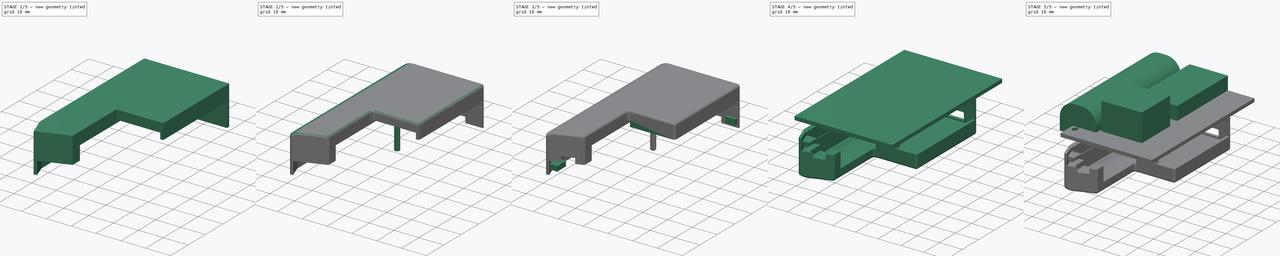
[diagram: build sequence overview — one tinted view per stage of 5, left to right]
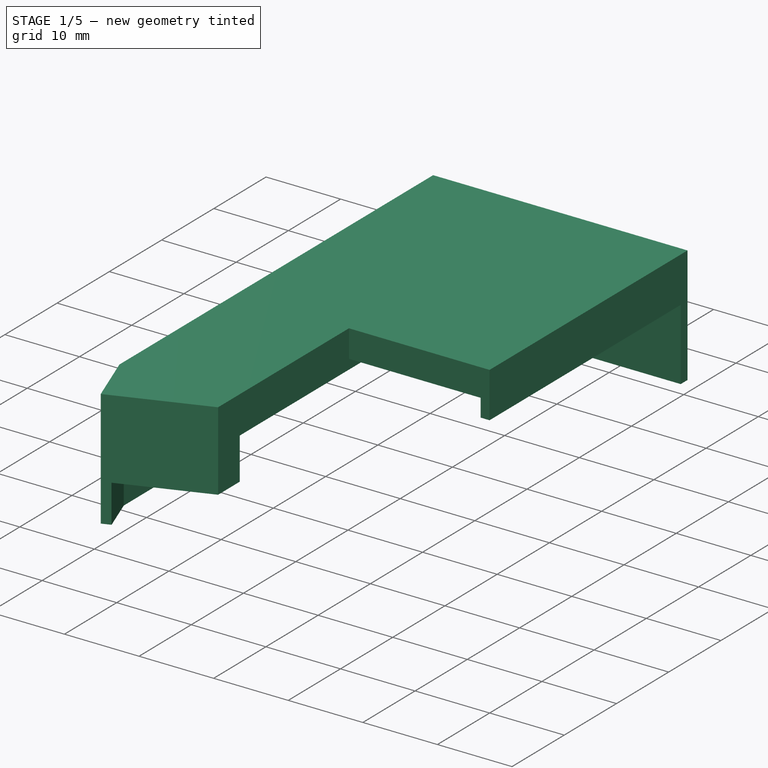
[diagram: stage 1 of 5 — iso view after this stage's code; geometry added in this stage tinted green]
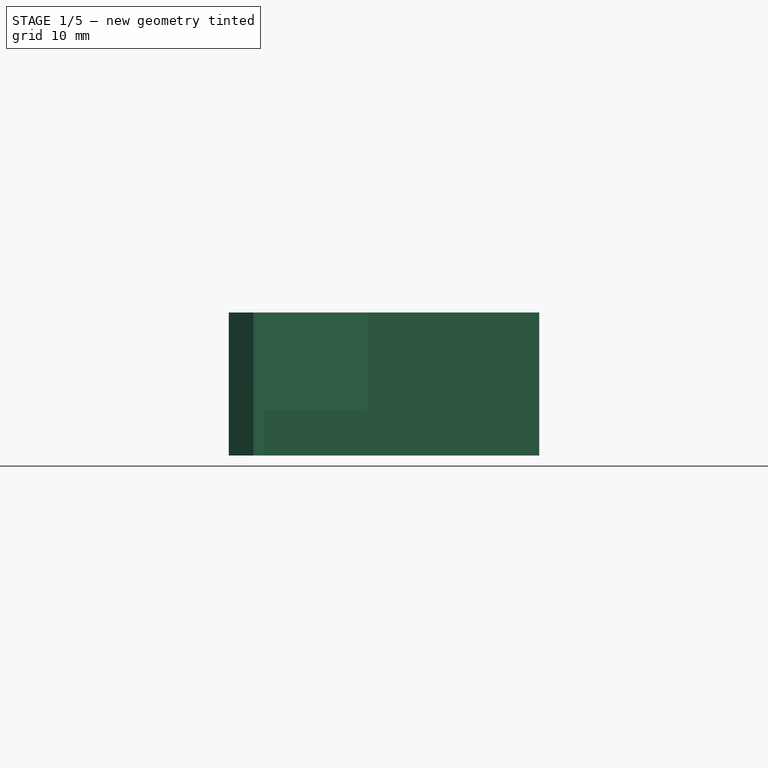
[diagram: stage 1 of 5 — front view after this stage's code; geometry added in this stage tinted green]
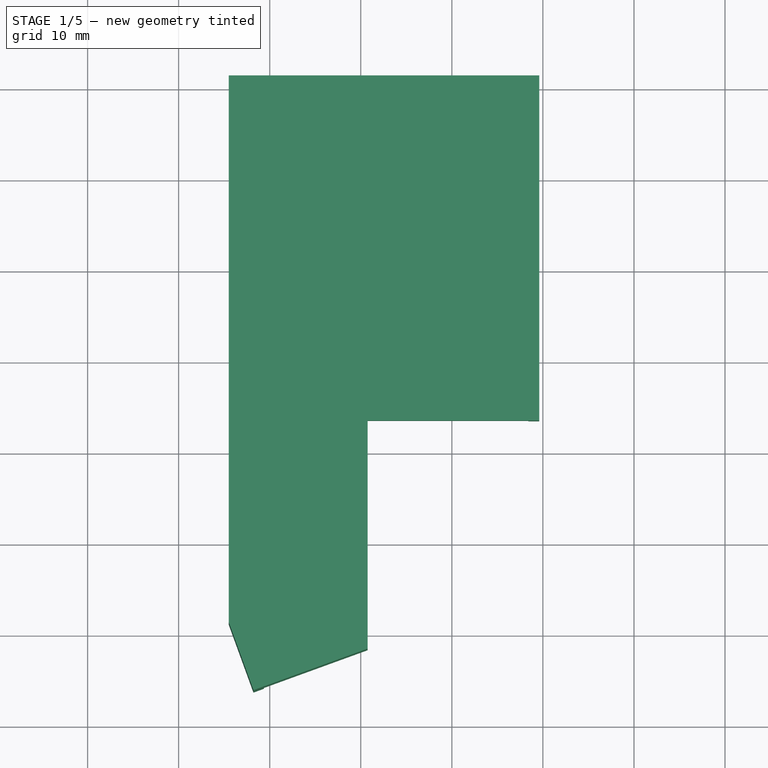
[diagram: stage 1 of 5 — top view after this stage's code; geometry added in this stage tinted green]
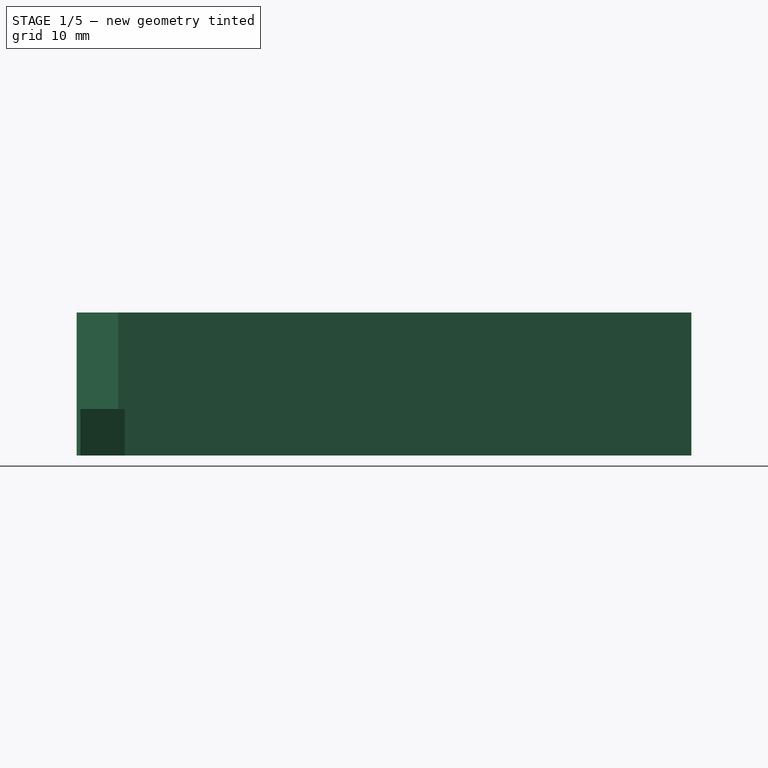
[diagram: stage 1 of 5 — right view after this stage's code; geometry added in this stage tinted green]
FCSTD DOCUMENT  (FreeCAD 1.1R20260414 (Git shallow))
Label: controller-cover-aaa-xs
License: All rights reserved
LicenseURL: http://en.wikipedia.org/wiki/All_rights_reserved
objects: Sketcher::SketchObject×20, PartDesign::Pad×9, PartDesign::Pocket×9, Part::Feature×3, App::Point×3, PartDesign::Fillet×2, PartDesign::Body×2, PartDesign::Chamfer×2, Spreadsheet::Sheet×1, App::Part×1, Part::Mirroring×1
note: 112 computed .brp shape members not serialized (recipe doc carries the construction recipe); baked Part::Feature solids carry a one-line shape summary decoded from their .brp

FEATURE [Sketcher::SketchObject] Sketch  label="xz"
  ArcFitTolerance = 0
  AttachmentSupport = -> [XZ_Plane]
  ExternalTypes = [0]
  FullyConstrained = false
  MakeInternals = false
  MapMode = 5
  Placement = pos=(0,0,0) rot=(1,0,0;1.5708rad)
  _ExternalGeoVersion = 0
  expr: Constraints[31] = Spreadsheet.conn_h
  expr: Constraints[57] = Spreadsheet.controller_h
  expr: Constraints[79] = Spreadsheet.battery_h
  sketch-geometry (55):
    g0: LineSegment [constr] StartX=9 StartY=2.5 StartZ=0 EndX=9 EndY=4.1 EndZ=0
    g1: LineSegment [constr] StartX=9 StartY=4.1 StartZ=0 EndX=-9 EndY=4.1 EndZ=0
    g2: LineSegment [constr] StartX=-9 StartY=4.1 StartZ=0 EndX=-9 EndY=2.5 EndZ=0
    g3: LineSegment [constr] StartX=-9 StartY=2.5 StartZ=0 EndX=9 EndY=2.5 EndZ=0
    g4: GeomPoint [constr] X=0 Y=3.3 Z=0
    g5: LineSegment [constr] StartX=-105.409 StartY=0 StartZ=0 EndX=45.7381 EndY=0 EndZ=0
    g6: LineSegment [constr] StartX=45.7381 StartY=0 StartZ=0 EndX=45.7381 EndY=-1.6 EndZ=0
    g7: LineSegment [constr] StartX=45.7381 StartY=-1.6 StartZ=0 EndX=-105.409 EndY=-1.6 EndZ=0
    g8: LineSegment [constr] StartX=-105.409 StartY=-1.6 StartZ=0 EndX=-105.409 EndY=0 EndZ=0
    g9: LineSegment [constr] StartX=9 StartY=2.5 StartZ=0 EndX=6.36312 EndY=2.5 EndZ=0
    g10: LineSegment [constr] StartX=6.36312 StartY=2.5 StartZ=0 EndX=6.36312 EndY=0 EndZ=0
    g11: LineSegment [constr] StartX=6.36312 StartY=0 StartZ=0 EndX=9 EndY=0 EndZ=0
    g12: LineSegment [constr] StartX=9 StartY=0 StartZ=0 EndX=9 EndY=2.5 EndZ=0
    g13: LineSegment [constr] StartX=4.55 StartY=-5.1 StartZ=0 EndX=4.55 EndY=-1.6 EndZ=0
    g14: LineSegment [constr] StartX=4.55 StartY=-1.6 StartZ=0 EndX=-4.55 EndY=-1.6 EndZ=0
    g15: LineSegment [constr] StartX=-4.55 StartY=-1.6 StartZ=0 EndX=-4.55 EndY=-5.1 EndZ=0
    g16: LineSegment [constr] StartX=-4.55 StartY=-5.1 StartZ=0 EndX=4.55 EndY=-5.1 EndZ=0
    g17: GeomPoint [constr] X=0 Y=-3.35 Z=0
    g18: LineSegment [constr] StartX=-4.75 StartY=6.3 StartZ=0 EndX=-4.75 EndY=4.1 EndZ=0
    g19: LineSegment [constr] StartX=-4.75 StartY=4.1 StartZ=0 EndX=4.75 EndY=4.1 EndZ=0
    g20: LineSegment [constr] StartX=4.75 StartY=4.1 StartZ=0 EndX=4.75 EndY=6.3 EndZ=0
    g21: LineSegment [constr] StartX=4.75 StartY=6.3 StartZ=0 EndX=-4.75 EndY=6.3 EndZ=0
    g22: GeomPoint [constr] X=0 Y=5.2 Z=0
    g23: LineSegment [constr] StartX=-44.4822 StartY=-5.1 StartZ=0 EndX=-44.4822 EndY=-3.9 EndZ=0
    g24: LineSegment [constr] StartX=-44.4822 StartY=-3.9 StartZ=0 EndX=44.4822 EndY=-3.9 EndZ=0
    g25: LineSegment [constr] StartX=44.4822 StartY=-3.9 StartZ=0 EndX=44.4822 EndY=-5.1 EndZ=0
    g26: LineSegment [constr] StartX=44.4822 StartY=-5.1 StartZ=0 EndX=-44.4822 EndY=-5.1 EndZ=0
    g27: GeomPoint [constr] X=0 Y=-4.5 Z=0
    g28: LineSegment [constr] StartX=-9.1 StartY=-3.6 StartZ=0 EndX=-9.1 EndY=9.4 EndZ=0
    g29: LineSegment [constr] StartX=-9.1 StartY=9.4 StartZ=0 EndX=-22.1 EndY=9.4 EndZ=0
    g30: LineSegment [constr] StartX=-22.1 StartY=9.4 StartZ=0 EndX=-22.1 EndY=-3.6 EndZ=0
    g31: LineSegment [constr] StartX=-22.1 StartY=-3.6 StartZ=0 EndX=-9.1 EndY=-3.6 EndZ=0
    g32: GeomPoint [constr] X=-15.6 Y=2.9 Z=0
    g33: LineSegment [constr] StartX=33.0788 StartY=0.6 StartZ=0 EndX=33.0788 EndY=2.2 EndZ=0
    g34: LineSegment [constr] StartX=33.0788 StartY=2.2 StartZ=0 EndX=11.9844 EndY=2.2 EndZ=0
    g35: LineSegment [constr] StartX=11.9844 StartY=2.2 StartZ=0 EndX=11.9844 EndY=0.6 EndZ=0
    g36: LineSegment [constr] StartX=11.9844 StartY=0.6 StartZ=0 EndX=33.0788 EndY=0.6 EndZ=0
    g37: GeomPoint [constr] X=22.5316 Y=1.4 Z=0
    g38: LineSegment [constr] StartX=25.7428 StartY=8.6 StartZ=0 EndX=25.7428 EndY=2.2 EndZ=0
    g39: LineSegment [constr] StartX=25.7428 StartY=2.2 StartZ=0 EndX=19.3204 EndY=2.2 EndZ=0
    g40: LineSegment [constr] StartX=19.3204 StartY=2.2 StartZ=0 EndX=19.3204 EndY=8.6 EndZ=0
    g41: LineSegment [constr] StartX=19.3204 StartY=8.6 StartZ=0 EndX=25.7428 EndY=8.6 EndZ=0
    g42: GeomPoint [constr] X=22.5316 Y=5.4 Z=0
    g43: LineSegment [constr] StartX=22.5316 StartY=1.4 StartZ=0 EndX=22.5316 EndY=5.4 EndZ=0
    g44: LineSegment [constr] StartX=29.8817 StartY=5.3 StartZ=0 EndX=29.8817 EndY=0 EndZ=0
    g45: LineSegment [constr] StartX=29.8817 StartY=0 StartZ=0 EndX=15.1815 EndY=0 EndZ=0
    g46: LineSegment [constr] StartX=15.1815 StartY=0 StartZ=0 EndX=15.1815 EndY=5.3 EndZ=0
    g47: LineSegment [constr] StartX=15.1815 StartY=5.3 StartZ=0 EndX=29.8817 EndY=5.3 EndZ=0
    g48: GeomPoint [constr] X=22.5316 Y=2.65 Z=0
    g49: LineSegment [constr] StartX=28.1684 StartY=6.59315 StartZ=0 EndX=28.1684 EndY=9.3 EndZ=0
    g50: LineSegment [constr] StartX=28.1684 StartY=9.3 StartZ=0 EndX=16.8947 EndY=9.3 EndZ=0
    g51: LineSegment [constr] StartX=16.8947 StartY=9.3 StartZ=0 EndX=16.8947 EndY=6.59315 EndZ=0
    g52: LineSegment [constr] StartX=16.8947 StartY=6.59315 StartZ=0 EndX=28.1684 EndY=6.59315 EndZ=0
    g53: GeomPoint [constr] X=22.5316 Y=7.94657 Z=0
    g54: Circle [constr] CenterX=41.3382 CenterY=8.9 CenterZ=0 NormalX=0 NormalY=0 NormalZ=1 AngleXU=0 Radius=12.5
  constraints (135):
    c: Coincident(g0,g1)
    c: Coincident(g1,g2)
    c: Coincident(g2,g3)
    c: Coincident(g3,g0)
    c: Horizontal(g1)
    c: Horizontal(g3)
    c: Vertical(g0)
    c: Vertical(g2)
    c: Symmetric(g1,g0,g4)
    c: PointOnObject(g4,g-2)
    c: Coincident(g5,g6)
    c: Coincident(g6,g7)
    c: Coincident(g7,g8)
    c: Coincident(g8,g5)
    c: Horizontal(g5)
    c: Horizontal(g7)
    c: Vertical(g6)
    c: Vertical(g8)
    c: PointOnObject(g5,g-1)
    c: Distance(g6) = 1.6
    c: Distance(g0) = 1.6
    c: Coincident(g9,g10)
    c: Coincident(g10,g11)
    c: Coincident(g11,g12)
    c: Coincident(g12,g9)
    c: Horizontal(g9)
    c: Horizontal(g11)
    c: Vertical(g10)
    c: Vertical(g12)
    c: Coincident(g9,g0)
    c: PointOnObject(g10,g5)
    c: Distance(g12) = 2.5
    c: Distance(g1) = 18
    c: Coincident(g13,g14)
    c: Coincident(g14,g15)
    c: Coincident(g15,g16)
    c: Coincident(g16,g13)
    c: Horizontal(g14)
    c: Horizontal(g16)
    c: Vertical(g13)
    c: Vertical(g15)
    c: Symmetric(g14,g13,g17)
    c: PointOnObject(g17,g-2)
    c: PointOnObject(g14,g7)
    c: Distance(g13) = 3.5
    c: Distance(g16) = 9.1
    c: Coincident(g18,g19)
    c: Coincident(g19,g20)
    c: Coincident(g20,g21)
    c: Coincident(g21,g18)
    c: Horizontal(g19)
    c: Horizontal(g21)
    c: Vertical(g18)
    c: Vertical(g20)
    c: Symmetric(g19,g18,g22)
    c: PointOnObject(g22,g-2)
    c: PointOnObject(g19,g1)
    c: Distance(g20,g3) = 3.8
    c: Distance(g21) = 9.5
    c: Coincident(g23,g24)
    c: Coincident(g24,g25)
    c: Coincident(g25,g26)
    c: Coincident(g26,g23)
    c: Horizontal(g24)
    c: Horizontal(g26)
    c: Vertical(g23)
    c: Vertical(g25)
    c: Symmetric(g24,g23,g27)
    c: PointOnObject(g27,g-2)
    c: Distance(g25) = 1.2
    c: Coincident(g28,g29)
    c: Coincident(g29,g30)
    c: Coincident(g30,g31)
    c: Coincident(g31,g28)
    c: Horizontal(g29)
    c: Horizontal(g31)
    c: Vertical(g28)
    c: Vertical(g30)
    c: Symmetric(g29,g28,g32)
    c: Distance(g30) = 13
    c: Distance(g29) = 13
    c: Distance(g30,g7) = 2
    c: Distance(g24,g7) = 2.3
    c: Distance(g32,g-2) = 15.6
    c: Coincident(g33,g34)
    c: Coincident(g34,g35)
    c: Coincident(g35,g36)
    c: Coincident(g36,g33)
    c: Horizontal(g34)
    c: Horizontal(g36)
    c: Vertical(g33)
    c: Vertical(g35)
    c: Symmetric(g34,g33,g37)
    c: Distance(g33) = 1.6
    c: Distance(g33,g5) = 0.6
    c: Coincident(g38,g39)
    c: Coincident(g39,g40)
    c: Coincident(g40,g41)
    c: Coincident(g41,g38)
    c: Horizontal(g39)
    c: Horizontal(g41)
    c: Vertical(g38)
    c: Vertical(g40)
    c: Symmetric(g39,g38,g42)
    c: PointOnObject(g39,g34)
    c: Distance(g40) = 6.4
    c: Coincident(g43,g37)
    c: Coincident(g43,g42)
    c: Vertical(g43)
    c: Coincident(g44,g45)
    c: Coincident(g45,g46)
    c: Coincident(g46,g47)
    c: Coincident(g47,g44)
    c: Horizontal(g45)
    c: Horizontal(g47)
    c: Vertical(g44)
    c: Vertical(g46)
    c: Symmetric(g45,g44,g48)
    c: PointOnObject(g48,g43)
    c: PointOnObject(g45,g5)
    c: Distance(g44) = 5.3
    c: Coincident(g49,g50)
    c: Coincident(g50,g51)
    c: Coincident(g51,g52)
    c: Coincident(g52,g49)
    c: Horizontal(g50)
    c: Horizontal(g52)
    c: Vertical(g49)
    c: Vertical(g51)
    c: Symmetric(g50,g49,g53)
    c: PointOnObject(g53,g43)
    c: Distance(g49,g47) = 4
    c: Diameter(g54) = 25
    c: Distance(g54,g24) = 12.8
    c: Distance(g33,g24) = 4.5
FEATURE [Sketcher::SketchObject] Sketch001  label="xy"
  ArcFitTolerance = 0
  AttachmentSupport = -> [XY_Plane]
  ExternalTypes = [0]
  FullyConstrained = true
  MakeInternals = false
  MapMode = 5
  _ExternalGeoVersion = 0
  expr: Constraints[23] = Spreadsheet.battery_l
  sketch-geometry (20):
    g0: LineSegment [constr] StartX=8.4 StartY=-34 StartZ=0 EndX=8.4 EndY=0 EndZ=0
    g1: LineSegment [constr] StartX=8.4 StartY=0 StartZ=0 EndX=-8.4 EndY=0 EndZ=0
    g2: LineSegment [constr] StartX=-8.4 StartY=0 StartZ=0 EndX=-8.4 EndY=-34 EndZ=0
    g3: LineSegment [constr] StartX=-8.4 StartY=-34 StartZ=0 EndX=8.4 EndY=-34 EndZ=0
    g4: GeomPoint [constr] X=0 Y=-17 Z=0
    g5: LineSegment [constr] StartX=-22.1 StartY=-60.7 StartZ=0 EndX=-22.1 EndY=-3.7 EndZ=0
    g6: LineSegment [constr] StartX=-22.1 StartY=-3.7 StartZ=0 EndX=-9.1 EndY=-3.7 EndZ=0
    g7: LineSegment [constr] StartX=-9.1 StartY=-3.7 StartZ=0 EndX=-9.1 EndY=-60.7 EndZ=0
    g8: LineSegment [constr] StartX=-9.1 StartY=-60.7 StartZ=0 EndX=-22.1 EndY=-60.7 EndZ=0
    g9: GeomPoint [constr] X=-15.6 Y=-32.2 Z=0
    g10: LineSegment [constr] StartX=22.1 StartY=-68.9 StartZ=0 EndX=22.1 EndY=0 EndZ=0
    g11: LineSegment [constr] StartX=22.1 StartY=0 StartZ=0 EndX=-22.1 EndY=0 EndZ=0
    g12: LineSegment [constr] StartX=-22.1 StartY=0 StartZ=0 EndX=-22.1 EndY=-68.9 EndZ=0
    g13: LineSegment [constr] StartX=-22.1 StartY=-68.9 StartZ=0 EndX=22.1 EndY=-68.9 EndZ=0
    g14: GeomPoint [constr] X=0 Y=-34.45 Z=0
    g15: LineSegment [constr] StartX=8.5 StartY=-53.9 StartZ=0 EndX=8.5 EndY=-36.9 EndZ=0
    g16: LineSegment [constr] StartX=8.5 StartY=-36.9 StartZ=0 EndX=-8.5 EndY=-36.9 EndZ=0
    g17: LineSegment [constr] StartX=-8.5 StartY=-36.9 StartZ=0 EndX=-8.5 EndY=-53.9 EndZ=0
    g18: LineSegment [constr] StartX=-8.5 StartY=-53.9 StartZ=0 EndX=8.5 EndY=-53.9 EndZ=0
    g19: GeomPoint [constr] X=0 Y=-45.4 Z=0
  constraints (52):
    c: Coincident(g0,g1)
    c: Coincident(g1,g2)
    c: Coincident(g2,g3)
    c: Coincident(g3,g0)
    c: Horizontal(g1)
    c: Horizontal(g3)
    c: Vertical(g0)
    c: Vertical(g2)
    c: Symmetric(g1,g0,g4)
    c: PointOnObject(g4,g-2)
    c: Distance(g0) = 34
    c: PointOnObject(g-1,g1)
    c: Distance(g3) = 16.8
    c: Coincident(g5,g6)
    c: Coincident(g6,g7)
    c: Coincident(g7,g8)
    c: Coincident(g8,g5)
    c: Horizontal(g6)
    c: Horizontal(g8)
    c: Vertical(g5)
    c: Vertical(g7)
    c: Symmetric(g6,g5,g9)
    c: Distance(g6) = 13
    c: Distance(g5) = 57
    c: Distance(g9,g-1) = 32.2
    c: Coincident(g10,g11)
    c: Coincident(g11,g12)
    c: Coincident(g12,g13)
    c: Coincident(g13,g10)
    c: Horizontal(g11)
    c: Horizontal(g13)
    c: Vertical(g10)
    c: Vertical(g12)
    c: Symmetric(g11,g10,g14)
    c: PointOnObject(g14,g-2)
    c: PointOnObject(g11,g-1)
    c: Distance(g12,g-2) = 22.1
    c: Distance(g10) = 68.9
    c: Coincident(g15,g16)
    c: Coincident(g16,g17)
    c: Coincident(g17,g18)
    c: Coincident(g18,g15)
    c: Horizontal(g16)
    c: Horizontal(g18)
    c: Vertical(g15)
    c: Vertical(g17)
    c: Symmetric(g16,g15,g19)
    c: PointOnObject(g19,g-2)
    c: Distance(g18) = 17
    c: Distance(g15) = 17
    c: Distance(g19,g-1) = 45.4
    c: Distance(g9,g-2) = 15.6
FEATURE [Sketcher::SketchObject] Sketch002
  ArcFitTolerance = 0
  AttachmentOffset = pos=(0,0,10.6) rot=(0,0,1;0rad)
  AttachmentSupport = -> [XY_Plane]
  ExternalTypes = [0]
  FullyConstrained = true
  MakeInternals = false
  MapMode = 5
  Placement = pos=(0,0,10.6) rot=(0,0,1;0rad)
  _ExternalGeoVersion = 0
  expr: .AttachmentOffset.Base.z = Spreadsheet.battery_h - 3.6 + 1.2
  expr: Constraints[10] = Sketch001.Constraints[10]
  expr: Constraints[12] = Sketch001.Constraints[12]
  expr: Constraints[22] = Sketch001.Constraints[22]
  expr: Constraints[23] = Sketch001.Constraints[23]
  expr: Constraints[24] = Sketch001.Constraints[24]
  expr: Constraints[36] = Sketch001.Constraints[36]
  expr: Constraints[37] = Sketch001.Constraints[37]
  expr: Constraints[48] = Sketch001.Constraints[48]
  expr: Constraints[49] = Sketch001.Constraints[49]
  expr: Constraints[50] = Sketch001.Constraints[50]
  expr: Constraints[51] = Sketch001.Constraints[51]
  sketch-geometry (37):
    g0: LineSegment [constr] StartX=8.4 StartY=-34 StartZ=0 EndX=8.4 EndY=0 EndZ=0
    g1: LineSegment [constr] StartX=8.4 StartY=0 StartZ=0 EndX=-8.4 EndY=0 EndZ=0
    g2: LineSegment [constr] StartX=-8.4 StartY=0 StartZ=0 EndX=-8.4 EndY=-34 EndZ=0
    g3: LineSegment [constr] StartX=-8.4 StartY=-34 StartZ=0 EndX=8.4 EndY=-34 EndZ=0
    g4: GeomPoint [constr] X=0 Y=-17 Z=0
    g5: LineSegment [constr] StartX=-22.1 StartY=-60.7 StartZ=0 EndX=-22.1 EndY=-3.7 EndZ=0
    g6: LineSegment [constr] StartX=-22.1 StartY=-3.7 StartZ=0 EndX=-9.1 EndY=-3.7 EndZ=0
    g7: LineSegment [constr] StartX=-9.1 StartY=-3.7 StartZ=0 EndX=-9.1 EndY=-60.7 EndZ=0
    g8: LineSegment [constr] StartX=-9.1 StartY=-60.7 StartZ=0 EndX=-22.1 EndY=-60.7 EndZ=0
    g9: GeomPoint [constr] X=-15.6 Y=-32.2 Z=0
    g10: LineSegment [constr] StartX=22.1 StartY=-68.9 StartZ=0 EndX=22.1 EndY=0 EndZ=0
    g11: LineSegment [constr] StartX=22.1 StartY=0 StartZ=0 EndX=-22.1 EndY=0 EndZ=0
    g12: LineSegment [constr] StartX=-22.1 StartY=0 StartZ=0 EndX=-22.1 EndY=-68.9 EndZ=0
    g13: LineSegment [constr] StartX=-22.1 StartY=-68.9 StartZ=0 EndX=22.1 EndY=-68.9 EndZ=0
    g14: GeomPoint [constr] X=0 Y=-34.45 Z=0
    g15: LineSegment [constr] StartX=8.5 StartY=-53.9 StartZ=0 EndX=8.5 EndY=-36.9 EndZ=0
    g16: LineSegment [constr] StartX=8.5 StartY=-36.9 StartZ=0 EndX=-8.5 EndY=-36.9 EndZ=0
    g17: LineSegment [constr] StartX=-8.5 StartY=-36.9 StartZ=0 EndX=-8.5 EndY=-53.9 EndZ=0
    g18: LineSegment [constr] StartX=-8.5 StartY=-53.9 StartZ=0 EndX=8.5 EndY=-53.9 EndZ=0
    g19: GeomPoint [constr] X=0 Y=-45.4 Z=0
    g20: LineSegment StartX=9.6 StartY=1.3 StartZ=0 EndX=-24.5 EndY=1.3 EndZ=0
    g21: LineSegment StartX=-24.5 StartY=1.3 StartZ=0 EndX=-24.5 EndY=-1.7 EndZ=0
    g22: LineSegment StartX=-24.5 StartY=-1.7 StartZ=0 EndX=-24.5 EndY=-1.7 EndZ=0
    g23: LineSegment StartX=-24.5 StartY=-1.7 StartZ=0 EndX=-24.5 EndY=-58.7602 EndZ=0
    g24: LineSegment [constr] StartX=-9.1 StartY=-61.6 StartZ=0 EndX=-9.1 EndY=-36.6 EndZ=0
    g25: LineSegment [constr] StartX=-21.7859 StartY=-66.2173 StartZ=0 EndX=-9.1 EndY=-61.6 EndZ=0
    g26: LineSegment StartX=-9.1 StartY=-36.6 StartZ=0 EndX=9.6 EndY=-36.6 EndZ=0
    g27: LineSegment StartX=9.6 StartY=-36.6 StartZ=0 EndX=9.6 EndY=1.3 EndZ=0
    g28: LineSegment StartX=-24.5 StartY=-58.7602 StartZ=0 EndX=-21.7859 EndY=-66.2173 EndZ=0
    g29: LineSegment [constr] StartX=26.9 StartY=-17.32 StartZ=0 EndX=26.9 EndY=-0.32 EndZ=0
    g30: LineSegment [constr] StartX=26.9 StartY=-0.32 StartZ=0 EndX=9.9 EndY=-0.32 EndZ=0
    g31: LineSegment [constr] StartX=9.9 StartY=-0.32 StartZ=0 EndX=9.9 EndY=-17.32 EndZ=0
    g32: LineSegment [constr] StartX=9.9 StartY=-17.32 StartZ=0 EndX=26.9 EndY=-17.32 EndZ=0
    g33: GeomPoint [constr] X=18.4 Y=-8.82 Z=0
    g34: LineSegment StartX=-9.1 StartY=-36.6 StartZ=0 EndX=-9.25 EndY=-36.6 EndZ=0
    g35: LineSegment StartX=-9.25 StartY=-36.6 StartZ=0 EndX=-9.25 EndY=-61.6546 EndZ=0
    g36: LineSegment StartX=-9.25 StartY=-61.6546 StartZ=0 EndX=-21.7859 EndY=-66.2173 EndZ=0
  constraints (100):
    c: Coincident(g0,g1)
    c: Coincident(g1,g2)
    c: Coincident(g2,g3)
    c: Coincident(g3,g0)
    c: Horizontal(g1)
    c: Horizontal(g3)
    c: Vertical(g0)
    c: Vertical(g2)
    c: Symmetric(g1,g0,g4)
    c: PointOnObject(g4,g-2)
    c: Distance(g0) = 34
    c: PointOnObject(g-1,g1)
    c: Distance(g3) = 16.8
    c: Coincident(g5,g6)
    c: Coincident(g6,g7)
    c: Coincident(g7,g8)
    c: Coincident(g8,g5)
    c: Horizontal(g6)
    c: Horizontal(g8)
    c: Vertical(g5)
    c: Vertical(g7)
    c: Symmetric(g6,g5,g9)
    c: Distance(g6) = 13
    c: Distance(g5) = 57
    c: Distance(g9,g-1) = 32.2
    c: Coincident(g10,g11)
    c: Coincident(g11,g12)
    c: Coincident(g12,g13)
    c: Coincident(g13,g10)
    c: Horizontal(g11)
    c: Horizontal(g13)
    c: Vertical(g10)
    c: Vertical(g12)
    c: Symmetric(g11,g10,g14)
    c: PointOnObject(g14,g-2)
    c: PointOnObject(g11,g-1)
    c: Distance(g12,g-2) = 22.1
    c: Distance(g10) = 68.9
    c: Coincident(g15,g16)
    c: Coincident(g16,g17)
    c: Coincident(g17,g18)
    c: Coincident(g18,g15)
    c: Horizontal(g16)
    c: Horizontal(g18)
    c: Vertical(g15)
    c: Vertical(g17)
    c: Symmetric(g16,g15,g19)
    c: PointOnObject(g19,g-2)
    c: Distance(g18) = 17
    c: Distance(g15) = 17
    c: Distance(g19,g-1) = 45.4
    c: Distance(g9,g-2) = 15.6
    c: Horizontal(g20)
    c: Coincident(g21,g20)
    c: Vertical(g21)
    c: Coincident(g22,g21)
    c: Horizontal(g22)
    c: Coincident(g23,g22)
    c: Vertical(g23)
    c: PointOnObject(g24,g7)
    c: Vertical(g24)
    c: Distance(g11,g21) = 2.4
    c: Distance(g21,g6) = 2
    c: Distance(g22,g5) = 2.4
    c: Coincident(g24,g25)
    c: Angle(g13,g25) = 0.349066
    c: DistanceY(g-1,g20) = 1.3
    c: Coincident(g26,g24)
    c: Horizontal(g26)
    c: Coincident(g27,g26)
    c: Coincident(g27,g20)
    c: Vertical(g27)
    c: Distance(g15,g26) = 0.3
    c: Coincident(g28,g23)
    c: Coincident(g28,g25)
    c: Distance(g25,g25) = 13.5
    c: Perpendicular(g28,g25)
    c: Distance(g24,g8) = 0.9
    c: Coincident(g29,g30)
    c: Coincident(g30,g31)
    c: Coincident(g31,g32)
    c: Coincident(g32,g29)
    c: Vertical(g29)
    c: Vertical(g31)
    c: Horizontal(g30)
    c: Horizontal(g32)
    c: Symmetric(g31,g29,g33)
    c: DistanceX(g30,g30) = 17
    c: DistanceY(g29,g29) = 17
    c: DistanceX(g-1,g33) = 18.4
    c: DistanceY(g33,g-1) = 8.82
    c: Distance(g31,g27) = 0.3
    c: Coincident(g24,g34)
    c: Horizontal(g34)
    c: Coincident(g34,g35)
    c: PointOnObject(g35,g25)
    c: Vertical(g35)
    c: Coincident(g35,g36)
    c: Coincident(g36,g25)
    c: Distance(g35,g7) = 0.15
FEATURE [Spreadsheet::Sheet] Spreadsheet
  cells = A1='battery_h; B1(battery_h)=13; A2='conn_h; B2(conn_h)=2.5; A3='controller_h; B3(controller_h)=3.8; A4='batttery_l; B4(battery_l)=57
FEATURE [PartDesign::Pad] Pad  label="ベース"
  Direction = (0,0,1)
  Length = 15.7
  Length2 = 10
  Profile = -> Sketch002
  ReferenceAxis = -> Sketch002 [N_Axis]
  Reversed = true
  SideType = 0
  Suppressed = false
  Type = 0
  Type2 = 0
  expr: Length = Spreadsheet.battery_h + 1.2 + 0.3 + 1.2
FEATURE [Sketcher::SketchObject] Sketch003
  ArcFitTolerance = 0
  AttachmentOffset = pos=(0,0,6.9) rot=(0,0,1;0rad)
  AttachmentSupport = -> [XY_Plane]
  ExternalTypes = [0]
  FullyConstrained = false
  MakeInternals = false
  MapMode = 5
  Placement = pos=(0,0,6.9) rot=(0,0,1;0rad)
  _ExternalGeoVersion = 0
  expr: .AttachmentOffset.Base.z = Spreadsheet.conn_h + Spreadsheet.controller_h + 0.6
  expr: Constraints[10] = Sketch001.Constraints[10]
  expr: Constraints[12] = Sketch001.Constraints[12]
  expr: Constraints[22] = Sketch001.Constraints[22]
  expr: Constraints[23] = Sketch001.Constraints[23]
  expr: Constraints[24] = Sketch001.Constraints[24]
  expr: Constraints[36] = Sketch001.Constraints[36]
  expr: Constraints[37] = Sketch001.Constraints[37]
  expr: Constraints[48] = Sketch001.Constraints[48]
  expr: Constraints[49] = Sketch001.Constraints[49]
  expr: Constraints[50] = Sketch001.Constraints[50]
  expr: Constraints[51] = Sketch001.Constraints[51]
  sketch-geometry (24):
    g0: LineSegment [constr] StartX=8.4 StartY=-34 StartZ=0 EndX=8.4 EndY=0 EndZ=0
    g1: LineSegment [constr] StartX=8.4 StartY=0 StartZ=0 EndX=-8.4 EndY=0 EndZ=0
    g2: LineSegment [constr] StartX=-8.4 StartY=0 StartZ=0 EndX=-8.4 EndY=-34 EndZ=0
    g3: LineSegment [constr] StartX=-8.4 StartY=-34 StartZ=0 EndX=8.4 EndY=-34 EndZ=0
    g4: GeomPoint [constr] X=0 Y=-17 Z=0
    g5: LineSegment [constr] StartX=-22.1 StartY=-60.7 StartZ=0 EndX=-22.1 EndY=-3.7 EndZ=0
    g6: LineSegment [constr] StartX=-22.1 StartY=-3.7 StartZ=0 EndX=-9.1 EndY=-3.7 EndZ=0
    g7: LineSegment [constr] StartX=-9.1 StartY=-3.7 StartZ=0 EndX=-9.1 EndY=-60.7 EndZ=0
    g8: LineSegment [constr] StartX=-9.1 StartY=-60.7 StartZ=0 EndX=-22.1 EndY=-60.7 EndZ=0
    g9: GeomPoint [constr] X=-15.6 Y=-32.2 Z=0
    g10: LineSegment [constr] StartX=22.1 StartY=-68.9 StartZ=0 EndX=22.1 EndY=0 EndZ=0
    g11: LineSegment [constr] StartX=22.1 StartY=0 StartZ=0 EndX=-22.1 EndY=0 EndZ=0
    g12: LineSegment [constr] StartX=-22.1 StartY=0 StartZ=0 EndX=-22.1 EndY=-68.9 EndZ=0
    g13: LineSegment [constr] StartX=-22.1 StartY=-68.9 StartZ=0 EndX=22.1 EndY=-68.9 EndZ=0
    g14: GeomPoint [constr] X=0 Y=-34.45 Z=0
    g15: LineSegment [constr] StartX=8.5 StartY=-53.9 StartZ=0 EndX=8.5 EndY=-36.9 EndZ=0
    g16: LineSegment [constr] StartX=8.5 StartY=-36.9 StartZ=0 EndX=-8.5 EndY=-36.9 EndZ=0
    g17: LineSegment [constr] StartX=-8.5 StartY=-36.9 StartZ=0 EndX=-8.5 EndY=-53.9 EndZ=0
    g18: LineSegment [constr] StartX=-8.5 StartY=-53.9 StartZ=0 EndX=8.5 EndY=-53.9 EndZ=0
    g19: GeomPoint [constr] X=0 Y=-45.4 Z=0
    g20: LineSegment StartX=8.4 StartY=0 StartZ=0 EndX=-9.1 EndY=0 EndZ=0
    g21: LineSegment StartX=-9.1 StartY=0 StartZ=0 EndX=-9.1 EndY=-40.6656 EndZ=0
    g22: LineSegment StartX=-9.1 StartY=-40.6656 StartZ=0 EndX=8.4 EndY=-40.6656 EndZ=0
    g23: LineSegment StartX=8.4 StartY=-40.6656 StartZ=0 EndX=8.4 EndY=0 EndZ=0
  constraints (62):
    c: Coincident(g0,g1)
    c: Coincident(g1,g2)
    c: Coincident(g2,g3)
    c: Coincident(g3,g0)
    c: Horizontal(g1)
    c: Horizontal(g3)
    c: Vertical(g0)
    c: Vertical(g2)
    c: Symmetric(g1,g0,g4)
    c: PointOnObject(g4,g-2)
    c: Distance(g0) = 34
    c: PointOnObject(g-1,g1)
    c: Distance(g3) = 16.8
    c: Coincident(g5,g6)
    c: Coincident(g6,g7)
    c: Coincident(g7,g8)
    c: Coincident(g8,g5)
    c: Horizontal(g6)
    c: Horizontal(g8)
    c: Vertical(g5)
    c: Vertical(g7)
    c: Symmetric(g6,g5,g9)
    c: Distance(g6) = 13
    c: Distance(g5) = 57
    c: Distance(g9,g-1) = 32.2
    c: Coincident(g10,g11)
    c: Coincident(g11,g12)
    c: Coincident(g12,g13)
    c: Coincident(g13,g10)
    c: Horizontal(g11)
    c: Horizontal(g13)
    c: Vertical(g10)
    c: Vertical(g12)
    c: Symmetric(g11,g10,g14)
    c: PointOnObject(g14,g-2)
    c: PointOnObject(g11,g-1)
    c: Distance(g12,g-2) = 22.1
    c: Distance(g10) = 68.9
    c: Coincident(g15,g16)
    c: Coincident(g16,g17)
    c: Coincident(g17,g18)
    c: Coincident(g18,g15)
    c: Horizontal(g16)
    c: Horizontal(g18)
    c: Vertical(g15)
    c: Vertical(g17)
    c: Symmetric(g16,g15,g19)
    c: PointOnObject(g19,g-2)
    c: Distance(g18) = 17
    c: Distance(g15) = 17
    c: Distance(g19,g-1) = 45.4
    c: Distance(g9,g-2) = 15.6
    c: Coincident(g20,g21)
    c: Coincident(g21,g22)
    c: Coincident(g22,g23)
    c: Coincident(g23,g20)
    c: Horizontal(g20)
    c: Horizontal(g22)
    c: Vertical(g21)
    c: Vertical(g23)
    c: Coincident(g20,g0)
    c: PointOnObject(g21,g7)
FEATURE [PartDesign::Pocket] Pocket  label="コントローラ部"
  BaseFeature = -> Pad
  Direction = (0,0,-1)
  Length = 5
  Length2 = 5
  Profile = -> Sketch003
  ReferenceAxis = -> Sketch003 [N_Axis]
  SideType = 0
  Suppressed = false
  Type = 1
  Type2 = 0
FEATURE [Sketcher::SketchObject] Sketch007
  ArcFitTolerance = 0
  AttachmentSupport = -> [XY_Plane]
  ExternalTypes = [0]
  FullyConstrained = false
  MakeInternals = false
  MapMode = 5
  _ExternalGeoVersion = 0
  expr: Constraints[10] = Sketch001.Constraints[10]
  expr: Constraints[12] = Sketch001.Constraints[12]
  expr: Constraints[21] = Sketch001.Constraints[22]
  expr: Constraints[22] = Sketch001.Constraints[23]
  expr: Constraints[23] = Sketch001.Constraints[24]
  expr: Constraints[35] = Sketch001.Constraints[36]
  expr: Constraints[36] = Sketch001.Constraints[37]
  expr: Constraints[47] = Sketch001.Constraints[48]
  expr: Constraints[48] = Sketch001.Constraints[49]
  expr: Constraints[49] = Sketch001.Constraints[50]
  expr: Constraints[50] = Sketch001.Constraints[51]
  sketch-geometry (28):
    g0: LineSegment [constr] StartX=8.4 StartY=-34 StartZ=0 EndX=8.4 EndY=0 EndZ=0
    g1: LineSegment [constr] StartX=8.4 StartY=0 StartZ=0 EndX=-8.4 EndY=0 EndZ=0
    g2: LineSegment [constr] StartX=-8.4 StartY=0 StartZ=0 EndX=-8.4 EndY=-34 EndZ=0
    g3: LineSegment [constr] StartX=-8.4 StartY=-34 StartZ=0 EndX=8.4 EndY=-34 EndZ=0
    g4: GeomPoint [constr] X=0 Y=-17 Z=0
    g5: LineSegment [constr] StartX=-22.1 StartY=-60.7 StartZ=0 EndX=-22.1 EndY=-3.7 EndZ=0
    g6: LineSegment [constr] StartX=-22.1 StartY=-3.7 StartZ=0 EndX=-9.1 EndY=-3.7 EndZ=0
    g7: LineSegment [constr] StartX=-9.1 StartY=-3.7 StartZ=0 EndX=-9.1 EndY=-60.7 EndZ=0
    g8: LineSegment [constr] StartX=-9.1 StartY=-60.7 StartZ=0 EndX=-22.1 EndY=-60.7 EndZ=0
    g9: GeomPoint [constr] X=-15.6 Y=-32.2 Z=0
    g10: LineSegment [constr] StartX=22.1 StartY=-68.9 StartZ=0 EndX=22.1 EndY=0 EndZ=0
    g11: LineSegment [constr] StartX=22.1 StartY=0 StartZ=0 EndX=-22.1 EndY=0 EndZ=0
    g12: LineSegment [constr] StartX=-22.1 StartY=0 StartZ=0 EndX=-22.1 EndY=-68.9 EndZ=0
    g13: LineSegment [constr] StartX=-22.1 StartY=-68.9 StartZ=0 EndX=22.1 EndY=-68.9 EndZ=0
    g14: GeomPoint [constr] X=0 Y=-34.45 Z=0
    g15: LineSegment [constr] StartX=8.5 StartY=-53.9 StartZ=0 EndX=8.5 EndY=-36.9 EndZ=0
    g16: LineSegment [constr] StartX=8.5 StartY=-36.9 StartZ=0 EndX=-8.5 EndY=-36.9 EndZ=0
    g17: LineSegment [constr] StartX=-8.5 StartY=-36.9 StartZ=0 EndX=-8.5 EndY=-53.9 EndZ=0
    g18: LineSegment [constr] StartX=-8.5 StartY=-53.9 StartZ=0 EndX=8.5 EndY=-53.9 EndZ=0
    g19: GeomPoint [constr] X=-1.4e-15 Y=-45.4 Z=0
    g20: LineSegment StartX=22.1 StartY=0 StartZ=0 EndX=-22.4 EndY=0 EndZ=0
    g21: LineSegment StartX=-22.4 StartY=0 StartZ=0 EndX=-22.4 EndY=-4 EndZ=0
    g22: LineSegment StartX=-22.4 StartY=-4 StartZ=0 EndX=-22.4 EndY=-60.9323 EndZ=0
    g23: LineSegment [constr] StartX=-22.4 StartY=-60.4 StartZ=0 EndX=-22.4 EndY=-68.9 EndZ=0
    g24: LineSegment [constr] StartX=-22.4 StartY=-68.9 StartZ=0 EndX=22.1 EndY=-68.9 EndZ=0
    g25: LineSegment StartX=22.1 StartY=-68.9 StartZ=0 EndX=22.1 EndY=0 EndZ=0
    g26: LineSegment StartX=-19.5 StartY=-68.9 StartZ=0 EndX=22.1 EndY=-68.9 EndZ=0
    g27: LineSegment StartX=-22.4 StartY=-60.9323 StartZ=0 EndX=-19.5 EndY=-68.9 EndZ=0
  constraints (71):
    c: Coincident(g0,g1)
    c: Coincident(g1,g2)
    c: Coincident(g2,g3)
    c: Coincident(g3,g0)
    c: Horizontal(g1)
    c: Horizontal(g3)
    c: Vertical(g0)
    c: Vertical(g2)
    c: Symmetric(g1,g0,g4)
    c: PointOnObject(g4,g-2)
    c: Distance(g0) = 34
    c: PointOnObject(g-1,g1)
    c: Distance(g3) = 16.8
    c: Coincident(g5,g6)
    c: Coincident(g6,g7)
    c: Coincident(g7,g8)
    c: Horizontal(g6)
    c: Horizontal(g8)
    c: Vertical(g5)
    c: Vertical(g7)
    c: Symmetric(g6,g5,g9)
    c: Distance(g6) = 13
    c: Distance(g5) = 57
    c: Distance(g9,g-1) = 32.2
    c: Coincident(g10,g11)
    c: Coincident(g11,g12)
    c: Coincident(g12,g13)
    c: Coincident(g13,g10)
    c: Horizontal(g11)
    c: Horizontal(g13)
    c: Vertical(g10)
    c: Vertical(g12)
    c: Symmetric(g11,g10,g14)
    c: PointOnObject(g14,g-2)
    c: PointOnObject(g11,g-1)
    c: Distance(g12,g-2) = 22.1
    c: Distance(g10) = 68.9
    c: Coincident(g15,g16)
    c: Coincident(g16,g17)
    c: Coincident(g17,g18)
    c: Coincident(g18,g15)
    c: Horizontal(g16)
    c: Horizontal(g18)
    c: Vertical(g15)
    c: Vertical(g17)
    c: Symmetric(g16,g15,g19)
    c: PointOnObject(g19,g-2)
    c: Distance(g18) = 17
    c: Distance(g15) = 17
    c: Distance(g19,g-1) = 45.4
    c: Distance(g9,g-2) = 15.6
    c: Coincident(g20,g10)
    c: PointOnObject(g20,g-1)
    c: Coincident(g21,g20)
    c: Vertical(g21)
    c: Vertical(g22)
    c: Vertical(g23)
    c: Coincident(g24,g23)
    c: Coincident(g24,g10)
    c: Horizontal(g24)
    c: Coincident(g25,g24)
    c: Coincident(g25,g20)
    c: Distance(g21,g12) = 0.3
    c: Distance(g21,g6) = 0.3
    c: PointOnObject(g26,g13)
    c: Coincident(g26,g10)
    c: Coincident(g27,g22)
    c: Coincident(g27,g26)
    c: Angle(g26,g27) = 1.91986
    c: DistanceX(g27,g27) = 2.9
    c: Coincident(g22,g21)
FEATURE [PartDesign::Pocket] Pocket001  label="基板部"
  BaseFeature = -> Pocket
  Direction = (0,0,-1)
  Length = 5
  Length2 = 5
  Profile = -> Sketch007
  ReferenceAxis = -> Sketch007 [N_Axis]
  SideType = 0
  Suppressed = false
  Type = 1
  Type2 = 0
FEATURE [PartDesign::Body] Body001
  AllowCompound = false
  Group = -> [Sketch004,Pad001,Sketch005,Pad002,Sketch006,Pad003,Fillet,Sketch009,Pocket003,Sketch010,Pad004]
  Origin = -> Origin001
  Tip = -> Pad004
FEATURE [Sketcher::SketchObject] Sketch011
  ArcFitTolerance = 0
  AttachmentSupport = -> [XZ_Plane]
  ExternalTypes = [0]
  FullyConstrained = false
  MakeInternals = false
  MapMode = 5
  Placement = pos=(0,0,0) rot=(1,0,0;1.5708rad)
  _ExternalGeoVersion = 0
  expr: Constraints[105] = Sketch.Constraints[105]
  expr: Constraints[120] = Sketch.Constraints[120]
  expr: Constraints[131] = Sketch.Constraints[131]
  expr: Constraints[132] = Sketch.Constraints[132]
  expr: Constraints[133] = Sketch.Constraints[133]
  expr: Constraints[19] = Sketch.Constraints[19]
  expr: Constraints[20] = Sketch.Constraints[20]
  expr: Constraints[31] = Sketch.Constraints[31]
  expr: Constraints[32] = Sketch.Constraints[32]
  expr: Constraints[44] = Sketch.Constraints[44]
  expr: Constraints[45] = Sketch.Constraints[45]
  expr: Constraints[57] = Sketch.Constraints[57]
  expr: Constraints[58] = Sketch.Constraints[58]
  expr: Constraints[69] = Sketch.Constraints[69]
  expr: Constraints[79] = Sketch.Constraints[79]
  expr: Constraints[80] = Sketch.Constraints[80]
  expr: Constraints[81] = Sketch.Constraints[81]
  expr: Constraints[82] = Sketch.Constraints[82]
  expr: Constraints[83] = Sketch.Constraints[83]
  expr: Constraints[93] = Sketch.Constraints[93]
  expr: Constraints[94] = Sketch.Constraints[94]
  sketch-geometry (73):
    g0: LineSegment [constr] StartX=9 StartY=2.5 StartZ=0 EndX=9 EndY=4.1 EndZ=0
    g1: LineSegment [constr] StartX=9 StartY=4.1 StartZ=0 EndX=-9 EndY=4.1 EndZ=0
    g2: LineSegment [constr] StartX=-9 StartY=4.1 StartZ=0 EndX=-9 EndY=2.5 EndZ=0
    g3: LineSegment [constr] StartX=-9 StartY=2.5 StartZ=0 EndX=9 EndY=2.5 EndZ=0
    g4: GeomPoint [constr] X=0 Y=3.3 Z=0
    g5: LineSegment [constr] StartX=-105.409 StartY=0 StartZ=0 EndX=45.7381 EndY=0 EndZ=0
    g6: LineSegment [constr] StartX=45.7381 StartY=0 StartZ=0 EndX=45.7381 EndY=-1.6 EndZ=0
    g7: LineSegment [constr] StartX=45.7381 StartY=-1.6 StartZ=0 EndX=-105.409 EndY=-1.6 EndZ=0
    g8: LineSegment [constr] StartX=-105.409 StartY=-1.6 StartZ=0 EndX=-105.409 EndY=0 EndZ=0
    g9: LineSegment [constr] StartX=9 StartY=2.5 StartZ=0 EndX=6.36312 EndY=2.5 EndZ=0
    g10: LineSegment [constr] StartX=6.36312 StartY=2.5 StartZ=0 EndX=6.36312 EndY=0 EndZ=0
    g11: LineSegment [constr] StartX=6.36312 StartY=0 StartZ=0 EndX=9 EndY=0 EndZ=0
    g12: LineSegment [constr] StartX=9 StartY=0 StartZ=0 EndX=9 EndY=2.5 EndZ=0
    g13: LineSegment [constr] StartX=4.55 StartY=-5.1 StartZ=0 EndX=4.55 EndY=-1.6 EndZ=0
    g14: LineSegment [constr] StartX=4.55 StartY=-1.6 StartZ=0 EndX=-4.55 EndY=-1.6 EndZ=0
    g15: LineSegment [constr] StartX=-4.55 StartY=-1.6 StartZ=0 EndX=-4.55 EndY=-5.1 EndZ=0
    g16: LineSegment [constr] StartX=-4.55 StartY=-5.1 StartZ=0 EndX=4.55 EndY=-5.1 EndZ=0
    g17: GeomPoint [constr] X=0 Y=-3.35 Z=0
    g18: LineSegment [constr] StartX=-4.75 StartY=6.3 StartZ=0 EndX=-4.75 EndY=4.1 EndZ=0
    g19: LineSegment [constr] StartX=-4.75 StartY=4.1 StartZ=0 EndX=4.75 EndY=4.1 EndZ=0
    g20: LineSegment [constr] StartX=4.75 StartY=4.1 StartZ=0 EndX=4.75 EndY=6.3 EndZ=0
    g21: LineSegment [constr] StartX=4.75 StartY=6.3 StartZ=0 EndX=-4.75 EndY=6.3 EndZ=0
    g22: GeomPoint [constr] X=0 Y=5.2 Z=0
    g23: LineSegment [constr] StartX=-44.4822 StartY=-5.1 StartZ=0 EndX=-44.4822 EndY=-3.9 EndZ=0
    g24: LineSegment [constr] StartX=-44.4822 StartY=-3.9 StartZ=0 EndX=44.4822 EndY=-3.9 EndZ=0
    g25: LineSegment [constr] StartX=44.4822 StartY=-3.9 StartZ=0 EndX=44.4822 EndY=-5.1 EndZ=0
    g26: LineSegment [constr] StartX=44.4822 StartY=-5.1 StartZ=0 EndX=-44.4822 EndY=-5.1 EndZ=0
    g27: GeomPoint [constr] X=0 Y=-4.5 Z=0
    g28: LineSegment [constr] StartX=-9.1 StartY=-3.6 StartZ=0 EndX=-9.1 EndY=9.4 EndZ=0
    g29: LineSegment [constr] StartX=-9.1 StartY=9.4 StartZ=0 EndX=-22.1 EndY=9.4 EndZ=0
    g30: LineSegment [constr] StartX=-22.1 StartY=9.4 StartZ=0 EndX=-22.1 EndY=-3.6 EndZ=0
    g31: LineSegment [constr] StartX=-22.1 StartY=-3.6 StartZ=0 EndX=-9.1 EndY=-3.6 EndZ=0
    g32: GeomPoint [constr] X=-15.6 Y=2.9 Z=0
    g33: LineSegment [constr] StartX=33.0788 StartY=0.6 StartZ=0 EndX=33.0788 EndY=2.2 EndZ=0
    g34: LineSegment [constr] StartX=33.0788 StartY=2.2 StartZ=0 EndX=11.9844 EndY=2.2 EndZ=0
    g35: LineSegment [constr] StartX=11.9844 StartY=2.2 StartZ=0 EndX=11.9844 EndY=0.6 EndZ=0
    g36: LineSegment [constr] StartX=11.9844 StartY=0.6 StartZ=0 EndX=33.0788 EndY=0.6 EndZ=0
    g37: GeomPoint [constr] X=22.5316 Y=1.4 Z=0
    g38: LineSegment [constr] StartX=25.7428 StartY=8.6 StartZ=0 EndX=25.7428 EndY=2.2 EndZ=0
    g39: LineSegment [constr] StartX=25.7428 StartY=2.2 StartZ=0 EndX=19.3204 EndY=2.2 EndZ=0
    g40: LineSegment [constr] StartX=19.3204 StartY=2.2 StartZ=0 EndX=19.3204 EndY=8.6 EndZ=0
    g41: LineSegment [constr] StartX=19.3204 StartY=8.6 StartZ=0 EndX=25.7428 EndY=8.6 EndZ=0
    g42: GeomPoint [constr] X=22.5316 Y=5.4 Z=0
    g43: LineSegment [constr] StartX=22.5316 StartY=1.4 StartZ=0 EndX=22.5316 EndY=5.4 EndZ=0
    g44: LineSegment [constr] StartX=29.8817 StartY=5.3 StartZ=0 EndX=29.8817 EndY=0 EndZ=0
    g45: LineSegment [constr] StartX=29.8817 StartY=0 StartZ=0 EndX=15.1815 EndY=0 EndZ=0
    g46: LineSegment [constr] StartX=15.1815 StartY=0 StartZ=0 EndX=15.1815 EndY=5.3 EndZ=0
    g47: LineSegment [constr] StartX=15.1815 StartY=5.3 StartZ=0 EndX=29.8817 EndY=5.3 EndZ=0
    g48: GeomPoint [constr] X=22.5316 Y=2.65 Z=0
    g49: LineSegment [constr] StartX=28.1684 StartY=6.59315 StartZ=0 EndX=28.1684 EndY=9.3 EndZ=0
    g50: LineSegment [constr] StartX=28.1684 StartY=9.3 StartZ=0 EndX=16.8947 EndY=9.3 EndZ=0
    g51: LineSegment [constr] StartX=16.8947 StartY=9.3 StartZ=0 EndX=16.8947 EndY=6.59315 EndZ=0
    g52: LineSegment [constr] StartX=16.8947 StartY=6.59315 StartZ=0 EndX=28.1684 EndY=6.59315 EndZ=0
    g53: GeomPoint [constr] X=22.5316 Y=7.94657 Z=0
    g54: Circle [constr] CenterX=41.3382 CenterY=8.9 CenterZ=0 NormalX=0 NormalY=0 NormalZ=1 AngleXU=0 Radius=12.5
    g55: LineSegment StartX=2.65 StartY=-2.8 StartZ=0 EndX=2.65 EndY=-5.1 EndZ=0
    g56: LineSegment StartX=2.65 StartY=-5.1 StartZ=0 EndX=-2.65 EndY=-5.1 EndZ=0
    g57: LineSegment StartX=-2.65 StartY=-5.1 StartZ=0 EndX=-2.65 EndY=-2.8 EndZ=0
    g58: LineSegment StartX=-2.65 StartY=-2.8 StartZ=0 EndX=2.65 EndY=-2.8 EndZ=0
    g59: GeomPoint [constr] X=0 Y=-3.95 Z=0
    g60: LineSegment StartX=-4.65 StartY=3.35 StartZ=0 EndX=-4.65 EndY=5.65 EndZ=0
    g61: LineSegment StartX=-4.15 StartY=6.15 StartZ=0 EndX=4.15 EndY=6.15 EndZ=0
    g62: LineSegment StartX=4.65 StartY=5.65 StartZ=0 EndX=4.65 EndY=3.35 EndZ=0
    g63: LineSegment StartX=4.15 StartY=2.85 StartZ=0 EndX=-4.15 EndY=2.85 EndZ=0
    g64: GeomPoint [constr] X=0 Y=4.5 Z=0
    g65: ArcOfCircle CenterX=-4.15 CenterY=5.65 CenterZ=0 NormalX=0 NormalY=0 NormalZ=1 AngleXU=0 Radius=0.5 StartAngle=1.5708 EndAngle=3.14159
    g66: GeomPoint [constr] X=-4.65 Y=6.15 Z=0
    g67: ArcOfCircle CenterX=-4.15 CenterY=3.35 CenterZ=0 NormalX=0 NormalY=0 NormalZ=1 AngleXU=0 Radius=0.5 StartAngle=3.14159 EndAngle=4.71239
    g68: GeomPoint [constr] X=-4.65 Y=2.85 Z=0
    g69: ArcOfCircle CenterX=4.15 CenterY=3.35 CenterZ=0 NormalX=0 NormalY=0 NormalZ=1 AngleXU=0 Radius=0.5 StartAngle=4.71239 EndAngle=6.28319
    g70: GeomPoint [constr] X=4.65 Y=2.85 Z=0
    g71: ArcOfCircle CenterX=4.15 CenterY=5.65 CenterZ=0 NormalX=0 NormalY=0 NormalZ=1 AngleXU=0 Radius=0.5 StartAngle=0 EndAngle=1.5708
    g72: GeomPoint [constr] X=4.65 Y=6.15 Z=0
  constraints (177):
    c: Coincident(g0,g1)
    c: Coincident(g1,g2)
    c: Coincident(g2,g3)
    c: Coincident(g3,g0)
    c: Horizontal(g1)
    c: Horizontal(g3)
    c: Vertical(g0)
    c: Vertical(g2)
    c: Symmetric(g1,g0,g4)
    c: PointOnObject(g4,g-2)
    c: Coincident(g5,g6)
    c: Coincident(g6,g7)
    c: Coincident(g7,g8)
    c: Coincident(g8,g5)
    c: Horizontal(g5)
    c: Horizontal(g7)
    c: Vertical(g6)
    c: Vertical(g8)
    c: PointOnObject(g5,g-1)
    c: Distance(g6) = 1.6
    c: Distance(g0) = 1.6
    c: Coincident(g9,g10)
    c: Coincident(g10,g11)
    c: Coincident(g11,g12)
    c: Coincident(g12,g9)
    c: Horizontal(g9)
    c: Horizontal(g11)
    c: Vertical(g10)
    c: Vertical(g12)
    c: Coincident(g9,g0)
    c: PointOnObject(g10,g5)
    c: Distance(g12) = 2.5
    c: Distance(g1) = 18
    c: Coincident(g13,g14)
    c: Coincident(g14,g15)
    c: Coincident(g15,g16)
    c: Coincident(g16,g13)
    c: Horizontal(g14)
    c: Horizontal(g16)
    c: Vertical(g13)
    c: Vertical(g15)
    c: Symmetric(g14,g13,g17)
    c: PointOnObject(g17,g-2)
    c: PointOnObject(g14,g7)
    c: Distance(g13) = 3.5
    c: Distance(g16) = 9.1
    c: Coincident(g18,g19)
    c: Coincident(g19,g20)
    c: Coincident(g20,g21)
    c: Coincident(g21,g18)
    c: Horizontal(g19)
    c: Horizontal(g21)
    c: Vertical(g18)
    c: Vertical(g20)
    c: Symmetric(g19,g18,g22)
    c: PointOnObject(g22,g-2)
    c: PointOnObject(g19,g1)
    c: Distance(g20,g3) = 3.8
    c: Distance(g21) = 9.5
    c: Coincident(g23,g24)
    c: Coincident(g24,g25)
    c: Coincident(g25,g26)
    c: Coincident(g26,g23)
    c: Horizontal(g24)
    c: Horizontal(g26)
    c: Vertical(g23)
    c: Vertical(g25)
    c: Symmetric(g24,g23,g27)
    c: PointOnObject(g27,g-2)
    c: Distance(g25) = 1.2
    c: Coincident(g28,g29)
    c: Coincident(g29,g30)
    c: Coincident(g30,g31)
    c: Coincident(g31,g28)
    c: Horizontal(g29)
    c: Horizontal(g31)
    c: Vertical(g28)
    c: Vertical(g30)
    c: Symmetric(g29,g28,g32)
    c: Distance(g30) = 13
    c: Distance(g29) = 13
    c: Distance(g30,g7) = 2
    c: Distance(g24,g7) = 2.3
    c: Distance(g32,g-2) = 15.6
    c: Coincident(g33,g34)
    c: Coincident(g34,g35)
    c: Coincident(g35,g36)
    c: Coincident(g36,g33)
    c: Horizontal(g34)
    c: Horizontal(g36)
    c: Vertical(g33)
    c: Vertical(g35)
    c: Symmetric(g34,g33,g37)
    c: Distance(g33) = 1.6
    c: Distance(g33,g5) = 0.6
    c: Coincident(g38,g39)
    c: Coincident(g39,g40)
    c: Coincident(g40,g41)
    c: Coincident(g41,g38)
    c: Horizontal(g39)
    c: Horizontal(g41)
    c: Vertical(g38)
    c: Vertical(g40)
    c: Symmetric(g39,g38,g42)
    c: PointOnObject(g39,g34)
    c: Distance(g40) = 6.4
    c: Coincident(g43,g37)
    c: Coincident(g43,g42)
    c: Vertical(g43)
    c: Coincident(g44,g45)
    c: Coincident(g45,g46)
    c: Coincident(g46,g47)
    c: Coincident(g47,g44)
    c: Horizontal(g45)
    c: Horizontal(g47)
    c: Vertical(g44)
    c: Vertical(g46)
    c: Symmetric(g45,g44,g48)
    c: PointOnObject(g48,g43)
    c: PointOnObject(g45,g5)
    c: Distance(g44) = 5.3
    c: Coincident(g49,g50)
    c: Coincident(g50,g51)
    c: Coincident(g51,g52)
    c: Coincident(g52,g49)
    c: Horizontal(g50)
    c: Horizontal(g52)
    c: Vertical(g49)
    c: Vertical(g51)
    c: Symmetric(g50,g49,g53)
    c: PointOnObject(g53,g43)
    c: Distance(g49,g47) = 4
    c: Diameter(g54) = 25
    c: Distance(g54,g24) = 12.8
    c: Distance(g33,g24) = 4.5
    c: Coincident(g55,g56)
    c: Coincident(g56,g57)
    c: Coincident(g57,g58)
    c: Coincident(g58,g55)
    c: Horizontal(g56)
    c: Horizontal(g58)
    c: Vertical(g55)
    c: Vertical(g57)
    c: Symmetric(g56,g55,g59)
    c: PointOnObject(g59,g-2)
    c: PointOnObject(g56,g16)
    c: Distance(g57) = 2.3
    c: Distance(g56) = 5.3
    c: Horizontal(g61)
    c: Horizontal(g63)
    c: Vertical(g60)
    c: Vertical(g62)
    c: Symmetric(g72,g68,g64)
    c: PointOnObject(g64,g-2)
    c: Distance(g72,g66) = 9.3
    c: Distance(g68,g66) = 3.3
    c: Distance(g68,g3) = 0.35
    c: PointOnObject(g66,g61)
    c: PointOnObject(g66,g60)
    c: Tangent(g61,g65) = 1.5708
    c: Tangent(g60,g65) = 1.5708
    c: PointOnObject(g68,g60)
    c: PointOnObject(g68,g63)
    c: Tangent(g60,g67) = 1.5708
    c: Tangent(g63,g67) = 1.5708
    c: PointOnObject(g70,g63)
    c: PointOnObject(g70,g62)
    c: Tangent(g63,g69) = 1.5708
    c: Tangent(g62,g69) = 1.5708
    c: PointOnObject(g72,g62)
    c: PointOnObject(g72,g61)
    c: Tangent(g62,g71) = 1.5708
    c: Tangent(g61,g71) = 1.5708
    c: Radius(g71) = 0.5
    c: Radius(g69) = 0.5
    c: Radius(g67) = 0.5
    c: Radius(g65) = 0.5
FEATURE [Sketcher::SketchObject] Sketch012
  ArcFitTolerance = 0
  AttachmentSupport = -> [XY_Plane]
  ExternalTypes = [0]
  FullyConstrained = true
  MakeInternals = false
  MapMode = 5
  _ExternalGeoVersion = 0
  sketch-geometry (7):
    g0: LineSegment StartX=1.1 StartY=-35.4 StartZ=0 EndX=0.55 EndY=-34.4474 EndZ=0
    g1: LineSegment StartX=0.55 StartY=-34.4474 StartZ=0 EndX=-0.55 EndY=-34.4474 EndZ=0
    g2: LineSegment StartX=-0.55 StartY=-34.4474 StartZ=0 EndX=-1.1 EndY=-35.4 EndZ=0
    g3: LineSegment StartX=-1.1 StartY=-35.4 StartZ=0 EndX=-0.55 EndY=-36.3526 EndZ=0
    g4: LineSegment StartX=-0.55 StartY=-36.3526 StartZ=0 EndX=0.55 EndY=-36.3526 EndZ=0
    g5: LineSegment StartX=0.55 StartY=-36.3526 StartZ=0 EndX=1.1 EndY=-35.4 EndZ=0
    g6: Circle [constr] CenterX=0 CenterY=-35.4 CenterZ=0 NormalX=0 NormalY=0 NormalZ=1 AngleXU=0 Radius=1.1
  constraints (17):
    c: Coincident(g0,g1)
    c: Coincident(g1,g2)
    c: Coincident(g2,g3)
    c: Coincident(g3,g4)
    c: Coincident(g4,g5)
    c: Coincident(g5,g0)
    c: Equal(g0, g1-g5) x5
    c: PointOnObject(g0,g6)
    c: PointOnObject(g1,g6)
    c: PointOnObject(g2,g6)
    c: PointOnObject(g3,g6)
    c: PointOnObject(g4,g6)
    c: PointOnObject(g5,g6)
    c: PointOnObject(g6,g-2)
    c: Diameter(g6) = 2.2
    c: Distance(g6,g-1) = 35.4
    c: Horizontal(g4)
FEATURE [Sketcher::SketchObject] Sketch013
  ArcFitTolerance = 0
  AttachmentSupport = -> [XY_Plane]
  ExternalTypes = [0]
  FullyConstrained = false
  MakeInternals = false
  MapMode = 5
  _ExternalGeoVersion = 0
  sketch-geometry (23):
    g0: ArcOfCircle [constr] CenterX=-17 CenterY=-63.1 CenterZ=0 NormalX=0 NormalY=0 NormalZ=1 AngleXU=0 Radius=1.25 StartAngle=3.14159 EndAngle=6.28319
    g1: ArcOfCircle [constr] CenterX=-17 CenterY=-62.3 CenterZ=0 NormalX=0 NormalY=0 NormalZ=1 AngleXU=0 Radius=1.25 StartAngle=-2.7e-15 EndAngle=3.14159
    g2: LineSegment [constr] StartX=-15.75 StartY=-63.1 StartZ=0 EndX=-15.75 EndY=-62.3 EndZ=0
    g3: LineSegment StartX=-18.25 StartY=-62.3 StartZ=0 EndX=-18.25 EndY=-63.1 EndZ=0
    g4: LineSegment [constr] StartX=-17 StartY=-63.1 StartZ=0 EndX=-17 EndY=12.3674 EndZ=0
    g5: ArcOfCircle [constr] CenterX=-17 CenterY=-1.3 CenterZ=0 NormalX=0 NormalY=0 NormalZ=1 AngleXU=0 Radius=1.25 StartAngle=0 EndAngle=3.14159
    g6: ArcOfCircle [constr] CenterX=-17 CenterY=-2.1 CenterZ=0 NormalX=0 NormalY=0 NormalZ=1 AngleXU=0 Radius=1.25 StartAngle=3.14159 EndAngle=6.28319
    g7: LineSegment StartX=-18.25 StartY=-1.3 StartZ=0 EndX=-18.25 EndY=-2.1 EndZ=0
    g8: LineSegment [constr] StartX=-15.75 StartY=-2.1 StartZ=0 EndX=-15.75 EndY=-1.3 EndZ=0
    g9: LineSegment [constr] StartX=-15.75 StartY=-62.3 StartZ=0 EndX=-15.75 EndY=-2.1 EndZ=0
    g10: LineSegment StartX=-18.25 StartY=-2.1 StartZ=0 EndX=-18.25 EndY=-62.3 EndZ=0
    g11: ArcOfCircle CenterX=-17 CenterY=-1.3 CenterZ=0 NormalX=0 NormalY=0 NormalZ=1 AngleXU=0 Radius=1.25 StartAngle=1.5708 EndAngle=3.14159
    g12: ArcOfCircle CenterX=-17 CenterY=-63.1 CenterZ=0 NormalX=0 NormalY=0 NormalZ=1 AngleXU=0 Radius=1.25 StartAngle=3.14159 EndAngle=4.71239
    g13: LineSegment [constr] StartX=-17 StartY=-63.1 StartZ=0 EndX=-17 EndY=-64.35 EndZ=0
    g14: LineSegment StartX=-17 StartY=-0.05 StartZ=0 EndX=-13.5 EndY=-0.05 EndZ=0
    g15: LineSegment [constr] StartX=-18.25 StartY=-1.3 StartZ=0 EndX=-15.8528 EndY=-1.3 EndZ=0
    g16: LineSegment [constr] StartX=-13.5 StartY=-0.05 StartZ=0 EndX=-13.5 EndY=-64.5733 EndZ=0
    g17: LineSegment [constr] StartX=-17 StartY=-64.35 StartZ=0 EndX=-13.5 EndY=-64.35 EndZ=0
    g18: ArcOfCircle CenterX=-13.5 CenterY=-1.3 CenterZ=0 NormalX=0 NormalY=0 NormalZ=1 AngleXU=0 Radius=1.25 StartAngle=0 EndAngle=1.5708
    g19: LineSegment StartX=-12.25 StartY=-1.3 StartZ=0 EndX=-12.25 EndY=-63.1 EndZ=0
    g20: LineSegment [constr] StartX=-17 StartY=-63.1 StartZ=0 EndX=-12.25 EndY=-63.1 EndZ=0
    g21: ArcOfCircle CenterX=-13.5 CenterY=-63.1 CenterZ=0 NormalX=0 NormalY=0 NormalZ=1 AngleXU=0 Radius=1.25 StartAngle=4.71239 EndAngle=6.28319
    g22: LineSegment StartX=-13.5 StartY=-64.35 StartZ=0 EndX=-17 EndY=-64.35 EndZ=0
  constraints (59):
    c: Tangent(g0,g2) = -1.5708
    c: Tangent(g2,g1) = -1.5708
    c: Tangent(g1,g3) = -1.5708
    c: Tangent(g3,g0) = -1.5708
    c: Equal(g0,g1)
    c: Vertical(g2)
    c: Coincident(g4,g0)
    c: Vertical(g4)
    c: DistanceX(g-2,g0) = -17
    c: Distance(g1,g0) = 0.8
    c: Tangent(g5,g7) = -1.5708
    c: Tangent(g7,g6) = -1.5708
    c: Tangent(g6,g8) = -1.5708
    c: Tangent(g8,g5) = -1.5708
    c: Equal(g5,g6)
    c: PointOnObject(g5,g4)
    c: PointOnObject(g6,g4)
    c: Distance(g5,g8) = 2.5
    c: Distance(g5,g6) = 0.8
    c: Distance(g5,g-1) = 1.3
    c: Distance(g5,g1) = 61
    c: Coincident(g9,g2)
    c: Coincident(g9,g8)
    c: Vertical(g9)
    c: Coincident(g10,g7)
    c: Coincident(g10,g3)
    c: Coincident(g11,g5)
    c: Coincident(g11,g7)
    c: PointOnObject(g11,g4)
    c: Coincident(g12,g0)
    c: Coincident(g12,g3)
    c: Coincident(g13,g12)
    c: Coincident(g13,g12)
    c: Vertical(g13)
    c: Coincident(g14,g11)
    c: Horizontal(g14)
    c: Coincident(g15,g7)
    c: Horizontal(g15)
    c: Coincident(g16,g14)
    c: Vertical(g16)
    c: Coincident(g17,g12)
    c: PointOnObject(g17,g16)
    c: Horizontal(g17)
    c: PointOnObject(g18,g15)
    c: Coincident(g18,g14)
    c: PointOnObject(g18,g15)
    c: PointOnObject(g18,g16)
    c: Coincident(g19,g18)
    c: Vertical(g19)
    c: Coincident(g20,g12)
    c: Coincident(g20,g19)
    c: Horizontal(g20)
    c: PointOnObject(g21,g20)
    c: Coincident(g21,g19)
    c: PointOnObject(g21,g16)
    c: PointOnObject(g21,g16)
    c: Coincident(g22,g21)
    c: Coincident(g22,g12)
    c: Distance(g14) = 3.5
FEATURE [Sketcher::SketchObject] Sketch014
  ArcFitTolerance = 0
  AttachmentOffset = pos=(0,0,4.5) rot=(0,0,1;0rad)
  AttachmentSupport = -> [XY_Plane]
  ExternalTypes = [0]
  FullyConstrained = true
  MakeInternals = false
  MapMode = 5
  Placement = pos=(0,0,4.5) rot=(0,0,1;0rad)
  _ExternalGeoVersion = 0
  expr: Constraints[10] = Sketch001.Constraints[10]
  expr: Constraints[12] = Sketch001.Constraints[12]
  expr: Constraints[22] = Sketch001.Constraints[22]
  expr: Constraints[23] = Sketch001.Constraints[23]
  expr: Constraints[24] = Sketch001.Constraints[24]
  expr: Constraints[36] = Sketch001.Constraints[36]
  expr: Constraints[37] = Sketch001.Constraints[37]
  expr: Constraints[48] = Sketch001.Constraints[48]
  expr: Constraints[49] = Sketch001.Constraints[49]
  expr: Constraints[50] = Sketch001.Constraints[50]
  expr: Constraints[51] = Sketch001.Constraints[51]
  sketch-geometry (25):
    g0: LineSegment [constr] StartX=8.4 StartY=-34 StartZ=0 EndX=8.4 EndY=0 EndZ=0
    g1: LineSegment [constr] StartX=8.4 StartY=0 StartZ=0 EndX=-8.4 EndY=0 EndZ=0
    g2: LineSegment [constr] StartX=-8.4 StartY=0 StartZ=0 EndX=-8.4 EndY=-34 EndZ=0
    g3: LineSegment [constr] StartX=-8.4 StartY=-34 StartZ=0 EndX=8.4 EndY=-34 EndZ=0
    g4: GeomPoint [constr] X=0 Y=-17 Z=0
    g5: LineSegment [constr] StartX=-22.1 StartY=-60.7 StartZ=0 EndX=-22.1 EndY=-3.7 EndZ=0
    g6: LineSegment [constr] StartX=-22.1 StartY=-3.7 StartZ=0 EndX=-9.1 EndY=-3.7 EndZ=0
    g7: LineSegment [constr] StartX=-9.1 StartY=-3.7 StartZ=0 EndX=-9.1 EndY=-60.7 EndZ=0
    g8: LineSegment [constr] StartX=-9.1 StartY=-60.7 StartZ=0 EndX=-22.1 EndY=-60.7 EndZ=0
    g9: GeomPoint [constr] X=-15.6 Y=-32.2 Z=0
    g10: LineSegment [constr] StartX=22.1 StartY=-68.9 StartZ=0 EndX=22.1 EndY=0 EndZ=0
    g11: LineSegment [constr] StartX=22.1 StartY=0 StartZ=0 EndX=-22.1 EndY=0 EndZ=0
    g12: LineSegment [constr] StartX=-22.1 StartY=0 StartZ=0 EndX=-22.1 EndY=-68.9 EndZ=0
    g13: LineSegment [constr] StartX=-22.1 StartY=-68.9 StartZ=0 EndX=22.1 EndY=-68.9 EndZ=0
    g14: GeomPoint [constr] X=0 Y=-34.45 Z=0
    g15: LineSegment [constr] StartX=8.5 StartY=-53.9 StartZ=0 EndX=8.5 EndY=-36.9 EndZ=0
    g16: LineSegment [constr] StartX=8.5 StartY=-36.9 StartZ=0 EndX=-8.5 EndY=-36.9 EndZ=0
    g17: LineSegment [constr] StartX=-8.5 StartY=-36.9 StartZ=0 EndX=-8.5 EndY=-53.9 EndZ=0
    g18: LineSegment [constr] StartX=-8.5 StartY=-53.9 StartZ=0 EndX=8.5 EndY=-53.9 EndZ=0
    g19: GeomPoint [constr] X=0 Y=-45.4 Z=0
    g20: LineSegment StartX=-8.5 StartY=-36.6 StartZ=0 EndX=-8.5 EndY=-34.5 EndZ=0
    g21: LineSegment StartX=-8.5 StartY=-34.5 StartZ=0 EndX=8.5 EndY=-34.5 EndZ=0
    g22: LineSegment StartX=8.5 StartY=-34.5 StartZ=0 EndX=8.5 EndY=-36.6 EndZ=0
    g23: LineSegment StartX=8.5 StartY=-36.6 StartZ=0 EndX=-8.5 EndY=-36.6 EndZ=0
    g24: GeomPoint [constr] X=0 Y=-35.55 Z=0
  constraints (65):
    c: Coincident(g0,g1)
    c: Coincident(g1,g2)
    c: Coincident(g2,g3)
    c: Coincident(g3,g0)
    c: Horizontal(g1)
    c: Horizontal(g3)
    c: Vertical(g0)
    c: Vertical(g2)
    c: Symmetric(g1,g0,g4)
    c: PointOnObject(g4,g-2)
    c: Distance(g0) = 34
    c: PointOnObject(g-1,g1)
    c: Distance(g3) = 16.8
    c: Coincident(g5,g6)
    c: Coincident(g6,g7)
    c: Coincident(g7,g8)
    c: Coincident(g8,g5)
    c: Horizontal(g6)
    c: Horizontal(g8)
    c: Vertical(g5)
    c: Vertical(g7)
    c: Symmetric(g6,g5,g9)
    c: Distance(g6) = 13
    c: Distance(g5) = 57
    c: Distance(g9,g-1) = 32.2
    c: Coincident(g10,g11)
    c: Coincident(g11,g12)
    c: Coincident(g12,g13)
    c: Coincident(g13,g10)
    c: Horizontal(g11)
    c: Horizontal(g13)
    c: Vertical(g10)
    c: Vertical(g12)
    c: Symmetric(g11,g10,g14)
    c: PointOnObject(g14,g-2)
    c: PointOnObject(g11,g-1)
    c: Distance(g12,g-2) = 22.1
    c: Distance(g10) = 68.9
    c: Coincident(g15,g16)
    c: Coincident(g16,g17)
    c: Coincident(g17,g18)
    c: Coincident(g18,g15)
    c: Horizontal(g16)
    c: Horizontal(g18)
    c: Vertical(g15)
    c: Vertical(g17)
    c: Symmetric(g16,g15,g19)
    c: PointOnObject(g19,g-2)
    c: Distance(g18) = 17
    c: Distance(g15) = 17
    c: Distance(g19,g-1) = 45.4
    c: Distance(g9,g-2) = 15.6
    c: Coincident(g20,g21)
    c: Coincident(g21,g22)
    c: Coincident(g22,g23)
    c: Coincident(g23,g20)
    c: Horizontal(g21)
    c: Horizontal(g23)
    c: Vertical(g20)
    c: Vertical(g22)
    c: Symmetric(g21,g20,g24)
    c: PointOnObject(g24,g-2)
    c: Distance(g22) = 2.1
    c: Distance(g21) = 17
    c: Distance(g16,g23) = 0.3
FEATURE [Sketcher::SketchObject] Sketch016
  ArcFitTolerance = 0
  AttachmentSupport = -> [XZ_Plane]
  ExternalTypes = [0]
  FullyConstrained = false
  MakeInternals = false
  MapMode = 5
  Placement = pos=(0,0,0) rot=(1,0,0;1.5708rad)
  _ExternalGeoVersion = 0
  expr: Constraints[105] = Sketch.Constraints[105]
  expr: Constraints[120] = Sketch.Constraints[120]
  expr: Constraints[131] = Sketch.Constraints[131]
  expr: Constraints[132] = Sketch.Constraints[132]
  expr: Constraints[133] = Sketch.Constraints[133]
  expr: Constraints[19] = Sketch.Constraints[19]
  expr: Constraints[20] = Sketch.Constraints[20]
  expr: Constraints[31] = Sketch.Constraints[31]
  expr: Constraints[32] = Sketch.Constraints[32]
  expr: Constraints[44] = Sketch.Constraints[44]
  expr: Constraints[45] = Sketch.Constraints[45]
  expr: Constraints[57] = Sketch.Constraints[57]
  expr: Constraints[58] = Sketch.Constraints[58]
  expr: Constraints[69] = Sketch.Constraints[69]
  expr: Constraints[79] = Sketch.Constraints[79]
  expr: Constraints[80] = Sketch.Constraints[80]
  expr: Constraints[81] = Sketch.Constraints[81]
  expr: Constraints[82] = Sketch.Constraints[82]
  expr: Constraints[83] = Sketch.Constraints[83]
  expr: Constraints[93] = Sketch.Constraints[93]
  expr: Constraints[94] = Sketch.Constraints[94]
  sketch-geometry (62):
    g0: LineSegment [constr] StartX=9 StartY=2.5 StartZ=0 EndX=9 EndY=4.1 EndZ=0
    g1: LineSegment [constr] StartX=9 StartY=4.1 StartZ=0 EndX=-9 EndY=4.1 EndZ=0
    g2: LineSegment [constr] StartX=-9 StartY=4.1 StartZ=0 EndX=-9 EndY=2.5 EndZ=0
    g3: LineSegment [constr] StartX=-9 StartY=2.5 StartZ=0 EndX=9 EndY=2.5 EndZ=0
    g4: GeomPoint [constr] X=0 Y=3.3 Z=0
    g5: LineSegment [constr] StartX=-105.409 StartY=0 StartZ=0 EndX=45.7381 EndY=0 EndZ=0
    g6: LineSegment [constr] StartX=45.7381 StartY=0 StartZ=0 EndX=45.7381 EndY=-1.6 EndZ=0
    g7: LineSegment [constr] StartX=45.7381 StartY=-1.6 StartZ=0 EndX=-105.409 EndY=-1.6 EndZ=0
    g8: LineSegment [constr] StartX=-105.409 StartY=-1.6 StartZ=0 EndX=-105.409 EndY=0 EndZ=0
    g9: LineSegment [constr] StartX=9 StartY=2.5 StartZ=0 EndX=6.36312 EndY=2.5 EndZ=0
    g10: LineSegment [constr] StartX=6.36312 StartY=2.5 StartZ=0 EndX=6.36312 EndY=0 EndZ=0
    g11: LineSegment [constr] StartX=6.36312 StartY=0 StartZ=0 EndX=9 EndY=0 EndZ=0
    g12: LineSegment [constr] StartX=9 StartY=0 StartZ=0 EndX=9 EndY=2.5 EndZ=0
    g13: LineSegment [constr] StartX=4.55 StartY=-5.1 StartZ=0 EndX=4.55 EndY=-1.6 EndZ=0
    g14: LineSegment [constr] StartX=4.55 StartY=-1.6 StartZ=0 EndX=-4.55 EndY=-1.6 EndZ=0
    g15: LineSegment [constr] StartX=-4.55 StartY=-1.6 StartZ=0 EndX=-4.55 EndY=-5.1 EndZ=0
    g16: LineSegment [constr] StartX=-4.55 StartY=-5.1 StartZ=0 EndX=4.55 EndY=-5.1 EndZ=0
    g17: GeomPoint [constr] X=0 Y=-3.35 Z=0
    g18: LineSegment [constr] StartX=-4.75 StartY=6.3 StartZ=0 EndX=-4.75 EndY=4.1 EndZ=0
    g19: LineSegment [constr] StartX=-4.75 StartY=4.1 StartZ=0 EndX=4.75 EndY=4.1 EndZ=0
    g20: LineSegment [constr] StartX=4.75 StartY=4.1 StartZ=0 EndX=4.75 EndY=6.3 EndZ=0
    g21: LineSegment [constr] StartX=4.75 StartY=6.3 StartZ=0 EndX=-4.75 EndY=6.3 EndZ=0
    g22: GeomPoint [constr] X=0 Y=5.2 Z=0
    g23: LineSegment [constr] StartX=-44.4822 StartY=-5.1 StartZ=0 EndX=-44.4822 EndY=-3.9 EndZ=0
    g24: LineSegment [constr] StartX=-44.4822 StartY=-3.9 StartZ=0 EndX=44.4822 EndY=-3.9 EndZ=0
    g25: LineSegment [constr] StartX=44.4822 StartY=-3.9 StartZ=0 EndX=44.4822 EndY=-5.1 EndZ=0
    g26: LineSegment [constr] StartX=44.4822 StartY=-5.1 StartZ=0 EndX=-44.4822 EndY=-5.1 EndZ=0
    g27: GeomPoint [constr] X=0 Y=-4.5 Z=0
    g28: LineSegment [constr] StartX=-9.1 StartY=-3.6 StartZ=0 EndX=-9.1 EndY=9.4 EndZ=0
    g29: LineSegment [constr] StartX=-9.1 StartY=9.4 StartZ=0 EndX=-22.1 EndY=9.4 EndZ=0
    g30: LineSegment [constr] StartX=-22.1 StartY=9.4 StartZ=0 EndX=-22.1 EndY=-3.6 EndZ=0
    g31: LineSegment [constr] StartX=-22.1 StartY=-3.6 StartZ=0 EndX=-9.1 EndY=-3.6 EndZ=0
    g32: GeomPoint [constr] X=-15.6 Y=2.9 Z=0
    g33: LineSegment [constr] StartX=33.0788 StartY=0.6 StartZ=0 EndX=33.0788 EndY=2.2 EndZ=0
    g34: LineSegment [constr] StartX=33.0788 StartY=2.2 StartZ=0 EndX=11.9844 EndY=2.2 EndZ=0
    g35: LineSegment [constr] StartX=11.9844 StartY=2.2 StartZ=0 EndX=11.9844 EndY=0.6 EndZ=0
    g36: LineSegment [constr] StartX=11.9844 StartY=0.6 StartZ=0 EndX=33.0788 EndY=0.6 EndZ=0
    g37: GeomPoint [constr] X=22.5316 Y=1.4 Z=0
    g38: LineSegment [constr] StartX=25.7428 StartY=8.6 StartZ=0 EndX=25.7428 EndY=2.2 EndZ=0
    g39: LineSegment [constr] StartX=25.7428 StartY=2.2 StartZ=0 EndX=19.3204 EndY=2.2 EndZ=0
    g40: LineSegment [constr] StartX=19.3204 StartY=2.2 StartZ=0 EndX=19.3204 EndY=8.6 EndZ=0
    g41: LineSegment [constr] StartX=19.3204 StartY=8.6 StartZ=0 EndX=25.7428 EndY=8.6 EndZ=0
    g42: GeomPoint [constr] X=22.5316 Y=5.4 Z=0
    g43: LineSegment [constr] StartX=22.5316 StartY=1.4 StartZ=0 EndX=22.5316 EndY=5.4 EndZ=0
    g44: LineSegment [constr] StartX=29.8817 StartY=5.3 StartZ=0 EndX=29.8817 EndY=0 EndZ=0
    g45: LineSegment [constr] StartX=29.8817 StartY=0 StartZ=0 EndX=15.1815 EndY=0 EndZ=0
    g46: LineSegment [constr] StartX=15.1815 StartY=0 StartZ=0 EndX=15.1815 EndY=5.3 EndZ=0
    g47: LineSegment [constr] StartX=15.1815 StartY=5.3 StartZ=0 EndX=29.8817 EndY=5.3 EndZ=0
    g48: GeomPoint [constr] X=22.5316 Y=2.65 Z=0
    g49: LineSegment [constr] StartX=28.1684 StartY=6.59315 StartZ=0 EndX=28.1684 EndY=9.3 EndZ=0
    g50: LineSegment [constr] StartX=28.1684 StartY=9.3 StartZ=0 EndX=16.8947 EndY=9.3 EndZ=0
    g51: LineSegment [constr] StartX=16.8947 StartY=9.3 StartZ=0 EndX=16.8947 EndY=6.59315 EndZ=0
    g52: LineSegment [constr] StartX=16.8947 StartY=6.59315 StartZ=0 EndX=28.1684 EndY=6.59315 EndZ=0
    g53: GeomPoint [constr] X=22.5316 Y=7.94657 Z=0
    g54: Circle [constr] CenterX=41.3382 CenterY=8.9 CenterZ=0 NormalX=0 NormalY=0 NormalZ=1 AngleXU=0 Radius=12.5
    g55: LineSegment [constr] StartX=-18.7 StartY=4.8 StartZ=0 EndX=-18.7 EndY=10.6 EndZ=0
    g56: LineSegment [constr] StartX=-18.7 StartY=4.8 StartZ=0 EndX=-30.5234 EndY=4.8 EndZ=0
    g57: ArcOfCircle CenterX=-18.7 CenterY=4.8 CenterZ=0 NormalX=0 NormalY=0 NormalZ=1 AngleXU=0 Radius=5.8 StartAngle=1.5708 EndAngle=3.14159
    g58: LineSegment StartX=-24.5 StartY=4.8 StartZ=0 EndX=-32.4732 EndY=4.8 EndZ=0
    g59: LineSegment StartX=-32.4732 StartY=4.8 StartZ=0 EndX=-32.4732 EndY=15.4079 EndZ=0
    g60: LineSegment StartX=-32.4732 StartY=15.4079 StartZ=0 EndX=-18.7 EndY=15.4079 EndZ=0
    g61: LineSegment StartX=-18.7 StartY=15.4079 StartZ=0 EndX=-18.7 EndY=10.6 EndZ=0
  constraints (153):
    c: Coincident(g0,g1)
    c: Coincident(g1,g2)
    c: Coincident(g2,g3)
    c: Coincident(g3,g0)
    c: Horizontal(g1)
    c: Horizontal(g3)
    c: Vertical(g0)
    c: Vertical(g2)
    c: Symmetric(g1,g0,g4)
    c: PointOnObject(g4,g-2)
    c: Coincident(g5,g6)
    c: Coincident(g6,g7)
    c: Coincident(g7,g8)
    c: Coincident(g8,g5)
    c: Horizontal(g5)
    c: Horizontal(g7)
    c: Vertical(g6)
    c: Vertical(g8)
    c: PointOnObject(g5,g-1)
    c: Distance(g6) = 1.6
    c: Distance(g0) = 1.6
    c: Coincident(g9,g10)
    c: Coincident(g10,g11)
    c: Coincident(g11,g12)
    c: Coincident(g12,g9)
    c: Horizontal(g9)
    c: Horizontal(g11)
    c: Vertical(g10)
    c: Vertical(g12)
    c: Coincident(g9,g0)
    c: PointOnObject(g10,g5)
    c: Distance(g12) = 2.5
    c: Distance(g1) = 18
    c: Coincident(g13,g14)
    c: Coincident(g14,g15)
    c: Coincident(g15,g16)
    c: Coincident(g16,g13)
    c: Horizontal(g14)
    c: Horizontal(g16)
    c: Vertical(g13)
    c: Vertical(g15)
    c: Symmetric(g14,g13,g17)
    c: PointOnObject(g17,g-2)
    c: PointOnObject(g14,g7)
    c: Distance(g13) = 3.5
    c: Distance(g16) = 9.1
    c: Coincident(g18,g19)
    c: Coincident(g19,g20)
    c: Coincident(g20,g21)
    c: Coincident(g21,g18)
    c: Horizontal(g19)
    c: Horizontal(g21)
    c: Vertical(g18)
    c: Vertical(g20)
    c: Symmetric(g19,g18,g22)
    c: PointOnObject(g22,g-2)
    c: PointOnObject(g19,g1)
    c: Distance(g20,g3) = 3.8
    c: Distance(g21) = 9.5
    c: Coincident(g23,g24)
    c: Coincident(g24,g25)
    c: Coincident(g25,g26)
    c: Coincident(g26,g23)
    c: Horizontal(g24)
    c: Horizontal(g26)
    c: Vertical(g23)
    c: Vertical(g25)
    c: Symmetric(g24,g23,g27)
    c: PointOnObject(g27,g-2)
    c: Distance(g25) = 1.2
    c: Coincident(g28,g29)
    c: Coincident(g29,g30)
    c: Coincident(g30,g31)
    c: Coincident(g31,g28)
    c: Horizontal(g29)
    c: Horizontal(g31)
    c: Vertical(g28)
    c: Vertical(g30)
    c: Symmetric(g29,g28,g32)
    c: Distance(g30) = 13
    c: Distance(g29) = 13
    c: Distance(g30,g7) = 2
    c: Distance(g24,g7) = 2.3
    c: Distance(g32,g-2) = 15.6
    c: Coincident(g33,g34)
    c: Coincident(g34,g35)
    c: Coincident(g35,g36)
    c: Coincident(g36,g33)
    c: Horizontal(g34)
    c: Horizontal(g36)
    c: Vertical(g33)
    c: Vertical(g35)
    c: Symmetric(g34,g33,g37)
    c: Distance(g33) = 1.6
    c: Distance(g33,g5) = 0.6
    c: Coincident(g38,g39)
    c: Coincident(g39,g40)
    c: Coincident(g40,g41)
    c: Coincident(g41,g38)
    c: Horizontal(g39)
    c: Horizontal(g41)
    c: Vertical(g38)
    c: Vertical(g40)
    c: Symmetric(g39,g38,g42)
    c: PointOnObject(g39,g34)
    c: Distance(g40) = 6.4
    c: Coincident(g43,g37)
    c: Coincident(g43,g42)
    c: Vertical(g43)
    c: Coincident(g44,g45)
    c: Coincident(g45,g46)
    c: Coincident(g46,g47)
    c: Coincident(g47,g44)
    c: Horizontal(g45)
    c: Horizontal(g47)
    c: Vertical(g44)
    c: Vertical(g46)
    c: Symmetric(g45,g44,g48)
    c: PointOnObject(g48,g43)
    c: PointOnObject(g45,g5)
    c: Distance(g44) = 5.3
    c: Coincident(g49,g50)
    c: Coincident(g50,g51)
    c: Coincident(g51,g52)
    c: Coincident(g52,g49)
    c: Horizontal(g50)
    c: Horizontal(g52)
    c: Vertical(g49)
    c: Vertical(g51)
    c: Symmetric(g50,g49,g53)
    c: PointOnObject(g53,g43)
    c: Distance(g49,g47) = 4
    c: Diameter(g54) = 25
    c: Distance(g54,g24) = 12.8
    c: Distance(g33,g24) = 4.5
    c: Vertical(g55)
    c: Coincident(g56,g55)
    c: Horizontal(g56)
    c: Coincident(g57,g55)
    c: Coincident(g57,g55)
    c: PointOnObject(g57,g56)
    c: Distance(g57,g29) = 1.2
    c: Coincident(g58,g57)
    c: Horizontal(g58)
    c: Coincident(g59,g58)
    c: Vertical(g59)
    c: Coincident(g60,g59)
    c: Horizontal(g60)
    c: Coincident(g61,g60)
    c: Coincident(g61,g57)
    c: Vertical(g61)
    c: DistanceX(g57,g-1) = 24.5
    c: Radius(g57) = 5.8
FEATURE [Sketcher::SketchObject] Sketch017
  ArcFitTolerance = 0
  AttachmentOffset = pos=(0,0,-1.6) rot=(0,0,1;0rad)
  AttachmentSupport = -> [XY_Plane]
  ExternalTypes = [0]
  FullyConstrained = false
  MakeInternals = false
  MapMode = 5
  Placement = pos=(0,0,-1.6) rot=(0,0,1;0rad)
  _ExternalGeoVersion = 0
  expr: .AttachmentOffset.Base.z = -1.6
  expr: Constraints[10] = Sketch001.Constraints[10]
  expr: Constraints[12] = Sketch001.Constraints[12]
  expr: Constraints[22] = Sketch001.Constraints[22]
  expr: Constraints[23] = Sketch001.Constraints[23]
  expr: Constraints[24] = Sketch001.Constraints[24]
  expr: Constraints[31] = Sketch001.Constraints[37]
  expr: Constraints[42] = Sketch001.Constraints[48]
  expr: Constraints[43] = Sketch001.Constraints[49]
  expr: Constraints[44] = Sketch001.Constraints[50]
  expr: Constraints[45] = Sketch001.Constraints[51]
  sketch-geometry (30):
    g0: LineSegment [constr] StartX=8.4 StartY=-34 StartZ=0 EndX=8.4 EndY=0 EndZ=0
    g1: LineSegment [constr] StartX=8.4 StartY=0 StartZ=0 EndX=-8.4 EndY=0 EndZ=0
    g2: LineSegment [constr] StartX=-8.4 StartY=0 StartZ=0 EndX=-8.4 EndY=-34 EndZ=0
    g3: LineSegment [constr] StartX=-8.4 StartY=-34 StartZ=0 EndX=8.4 EndY=-34 EndZ=0
    g4: GeomPoint [constr] X=0 Y=-17 Z=0
    g5: LineSegment [constr] StartX=-22.1 StartY=-60.7 StartZ=0 EndX=-22.1 EndY=-3.7 EndZ=0
    g6: LineSegment [constr] StartX=-22.1 StartY=-3.7 StartZ=0 EndX=-9.1 EndY=-3.7 EndZ=0
    g7: LineSegment [constr] StartX=-9.1 StartY=-3.7 StartZ=0 EndX=-9.1 EndY=-60.7 EndZ=0
    g8: LineSegment [constr] StartX=-9.1 StartY=-60.7 StartZ=0 EndX=-22.1 EndY=-60.7 EndZ=0
    g9: GeomPoint [constr] X=-15.6 Y=-32.2 Z=0
    g10: LineSegment [constr] StartX=21.5 StartY=-68.9 StartZ=0 EndX=21.5 EndY=0 EndZ=0
    g11: LineSegment [constr] StartX=21.5 StartY=0 StartZ=0 EndX=-21.5 EndY=0 EndZ=0
    g12: GeomPoint [constr] X=0 Y=-34.45 Z=0
    g13: LineSegment [constr] StartX=8.5 StartY=-53.9 StartZ=0 EndX=8.5 EndY=-36.9 EndZ=0
    g14: LineSegment [constr] StartX=8.5 StartY=-36.9 StartZ=0 EndX=-8.5 EndY=-36.9 EndZ=0
    g15: LineSegment [constr] StartX=-8.5 StartY=-36.9 StartZ=0 EndX=-8.5 EndY=-53.9 EndZ=0
    g16: LineSegment [constr] StartX=-8.5 StartY=-53.9 StartZ=0 EndX=8.5 EndY=-53.9 EndZ=0
    g17: GeomPoint [constr] X=0 Y=-45.4 Z=0
    g18: LineSegment StartX=-18.1 StartY=-59.7 StartZ=0 EndX=-24.1 EndY=-59.7 EndZ=0
    g19: LineSegment [constr] StartX=-24.1 StartY=-59.7 StartZ=0 EndX=-24.1 EndY=-64.7 EndZ=0
    g20: LineSegment [constr] StartX=-24.1 StartY=-64.7 StartZ=0 EndX=-18.1 EndY=-64.7 EndZ=0
    g21: LineSegment StartX=-18.1 StartY=-64.7 StartZ=0 EndX=-18.1 EndY=-59.7 EndZ=0
    g22: LineSegment [constr] StartX=-24.1 StartY=-3.3 StartZ=0 EndX=-24.1 EndY=-59.7 EndZ=0
    g23: LineSegment [constr] StartX=-18.1 StartY=-3.3 StartZ=0 EndX=-18.1 EndY=-59.7 EndZ=0
    g24: LineSegment StartX=-24.1 StartY=-59.7 StartZ=0 EndX=-22.2801 EndY=-64.7 EndZ=0
    g25: LineSegment StartX=-18.1 StartY=-64.7 StartZ=0 EndX=-22.2801 EndY=-64.7 EndZ=0
    g26: LineSegment StartX=5 StartY=0 StartZ=0 EndX=5 EndY=-1.2 EndZ=0
    g27: LineSegment StartX=5 StartY=-1.2 StartZ=0 EndX=9 EndY=-1.2 EndZ=0
    g28: LineSegment StartX=9 StartY=-1.2 StartZ=0 EndX=9 EndY=0 EndZ=0
    g29: LineSegment StartX=9 StartY=0 StartZ=0 EndX=5 EndY=0 EndZ=0
  constraints (79):
    c: Coincident(g0,g1)
    c: Coincident(g1,g2)
    c: Coincident(g2,g3)
    c: Coincident(g3,g0)
    c: Horizontal(g1)
    c: Horizontal(g3)
    c: Vertical(g0)
    c: Vertical(g2)
    c: Symmetric(g1,g0,g4)
    c: PointOnObject(g4,g-2)
    c: Distance(g0) = 34
    c: PointOnObject(g-1,g1)
    c: Distance(g3) = 16.8
    c: Coincident(g5,g6)
    c: Coincident(g6,g7)
    c: Coincident(g7,g8)
    c: Coincident(g8,g5)
    c: Horizontal(g6)
    c: Horizontal(g8)
    c: Vertical(g5)
    c: Vertical(g7)
    c: Symmetric(g6,g5,g9)
    c: Distance(g6) = 13
    c: Distance(g5) = 57
    c: Distance(g9,g-1) = 32.2
    c: Coincident(g10,g11)
    c: Horizontal(g11)
    c: Vertical(g10)
    c: Symmetric(g11,g10,g12)
    c: PointOnObject(g12,g-2)
    c: PointOnObject(g11,g-1)
    c: Distance(g10) = 68.9
    c: Coincident(g13,g14)
    c: Coincident(g14,g15)
    c: Coincident(g15,g16)
    c: Coincident(g16,g13)
    c: Horizontal(g14)
    c: Horizontal(g16)
    c: Vertical(g13)
    c: Vertical(g15)
    c: Symmetric(g14,g13,g17)
    c: PointOnObject(g17,g-2)
    c: Distance(g16) = 17
    c: Distance(g13) = 17
    c: Distance(g17,g-1) = 45.4
    c: Distance(g9,g-2) = 15.6
    c: Coincident(g18,g19)
    c: Coincident(g19,g20)
    c: Coincident(g20,g21)
    c: Coincident(g21,g18)
    c: Horizontal(g18)
    c: Horizontal(g20)
    c: Vertical(g19)
    c: Vertical(g21)
    c: Distance(g18,g8) = 1
    c: Distance(g19) = 5
    c: Distance(g20) = 6
    c: Distance(g20,g-2) = 18.1
    c: Coincident(g22,g18)
    c: Vertical(g22)
    c: Coincident(g23,g18)
    c: Vertical(g23)
    c: Coincident(g24,g18)
    c: PointOnObject(g24,g20)
    c: Coincident(g25,g20)
    c: Coincident(g25,g24)
    c: Coincident(g26,g27)
    c: Coincident(g27,g28)
    c: Coincident(g28,g29)
    c: Coincident(g29,g26)
    c: Vertical(g26)
    c: Vertical(g28)
    c: Horizontal(g27)
    c: Horizontal(g29)
    c: PointOnObject(g26,g1)
    c: DistanceX(g27,g27) = 4
    c: DistanceY(g28,g28) = 1.2
    c: DistanceX(g-1,g26) = 5
    c: Angle(g25,g24) = 1.91986
FEATURE [Part::Feature] Part__Feature001  label="torabo-tsuki-lp-XS-left_PCB"
  shape: bbox 116.4 x 85.59 x 1.6 mm, 289 faces (baked)
FEATURE [Part::Feature] Part__Feature  label="torabo-tsuki-lp-XS-top_PCB"
  Placement = pos=(0,0,-2.2) rot=(0,0,1;0rad)
  shape: bbox 118.2 x 86.78 x 1.6 mm, 133 faces (baked)
FEATURE [Sketcher::SketchObject] Sketch018
  ArcFitTolerance = 1e-06
  AttachmentSupport = -> [XY_Plane]
  ExternalTypes = [0]
  FullyConstrained = false
  MakeInternals = false
  MapMode = 5
  _ExternalGeoVersion = 0
  expr: Constraints[10] = Sketch001.Constraints[10]
  expr: Constraints[12] = Sketch001.Constraints[12]
  expr: Constraints[22] = Sketch001.Constraints[22]
  expr: Constraints[23] = Sketch001.Constraints[23]
  expr: Constraints[24] = Sketch001.Constraints[24]
  expr: Constraints[36] = Sketch001.Constraints[36]
  expr: Constraints[37] = Sketch001.Constraints[37]
  expr: Constraints[48] = Sketch001.Constraints[48]
  expr: Constraints[49] = Sketch001.Constraints[49]
  expr: Constraints[50] = Sketch001.Constraints[50]
  expr: Constraints[51] = Sketch001.Constraints[51]
  sketch-geometry (24):
    g0: LineSegment [constr] StartX=8.4 StartY=-34 StartZ=0 EndX=8.4 EndY=0 EndZ=0
    g1: LineSegment [constr] StartX=8.4 StartY=0 StartZ=0 EndX=-8.4 EndY=0 EndZ=0
    g2: LineSegment [constr] StartX=-8.4 StartY=0 StartZ=0 EndX=-8.4 EndY=-34 EndZ=0
    g3: LineSegment [constr] StartX=-8.4 StartY=-34 StartZ=0 EndX=8.4 EndY=-34 EndZ=0
    g4: GeomPoint [constr] X=0 Y=-17 Z=0
    g5: LineSegment [constr] StartX=-22.1 StartY=-60.7 StartZ=0 EndX=-22.1 EndY=-3.7 EndZ=0
    g6: LineSegment [constr] StartX=-22.1 StartY=-3.7 StartZ=0 EndX=-9.1 EndY=-3.7 EndZ=0
    g7: LineSegment [constr] StartX=-9.1 StartY=-3.7 StartZ=0 EndX=-9.1 EndY=-60.7 EndZ=0
    g8: LineSegment [constr] StartX=-9.1 StartY=-60.7 StartZ=0 EndX=-22.1 EndY=-60.7 EndZ=0
    g9: GeomPoint [constr] X=-15.6 Y=-32.2 Z=0
    g10: LineSegment [constr] StartX=22.1 StartY=-68.9 StartZ=0 EndX=22.1 EndY=0 EndZ=0
    g11: LineSegment [constr] StartX=22.1 StartY=0 StartZ=0 EndX=-22.1 EndY=0 EndZ=0
    g12: LineSegment [constr] StartX=-22.1 StartY=0 StartZ=0 EndX=-22.1 EndY=-68.9 EndZ=0
    g13: LineSegment [constr] StartX=-22.1 StartY=-68.9 StartZ=0 EndX=22.1 EndY=-68.9 EndZ=0
    g14: GeomPoint [constr] X=0 Y=-34.45 Z=0
    g15: LineSegment [constr] StartX=8.5 StartY=-53.9 StartZ=0 EndX=8.5 EndY=-36.9 EndZ=0
    g16: LineSegment [constr] StartX=8.5 StartY=-36.9 StartZ=0 EndX=-8.5 EndY=-36.9 EndZ=0
    g17: LineSegment [constr] StartX=-8.5 StartY=-36.9 StartZ=0 EndX=-8.5 EndY=-53.9 EndZ=0
    g18: LineSegment [constr] StartX=-8.5 StartY=-53.9 StartZ=0 EndX=8.5 EndY=-53.9 EndZ=0
    g19: GeomPoint [constr] X=0 Y=-45.4 Z=0
    g20: LineSegment StartX=-8.7 StartY=0 StartZ=0 EndX=-8.7 EndY=-40.9123 EndZ=0
    g21: LineSegment StartX=-8.7 StartY=-40.9123 StartZ=0 EndX=22.1 EndY=-40.9123 EndZ=0
    g22: LineSegment StartX=22.1 StartY=-40.9123 StartZ=0 EndX=22.1 EndY=0 EndZ=0
    g23: LineSegment StartX=22.1 StartY=0 StartZ=0 EndX=-8.7 EndY=0 EndZ=0
  constraints (63):
    c: Coincident(g0,g1)
    c: Coincident(g1,g2)
    c: Coincident(g2,g3)
    c: Coincident(g3,g0)
    c: Horizontal(g1)
    c: Horizontal(g3)
    c: Vertical(g0)
    c: Vertical(g2)
    c: Symmetric(g1,g0,g4)
    c: PointOnObject(g4,g-2)
    c: Distance(g0) = 34
    c: PointOnObject(g-1,g1)
    c: Distance(g3) = 16.8
    c: Coincident(g5,g6)
    c: Coincident(g6,g7)
    c: Coincident(g7,g8)
    c: Coincident(g8,g5)
    c: Horizontal(g6)
    c: Horizontal(g8)
    c: Vertical(g5)
    c: Vertical(g7)
    c: Symmetric(g6,g5,g9)
    c: Distance(g6) = 13
    c: Distance(g5) = 57
    c: Distance(g9,g-1) = 32.2
    c: Coincident(g10,g11)
    c: Coincident(g11,g12)
    c: Coincident(g12,g13)
    c: Coincident(g13,g10)
    c: Horizontal(g11)
    c: Horizontal(g13)
    c: Vertical(g10)
    c: Vertical(g12)
    c: Symmetric(g11,g10,g14)
    c: PointOnObject(g14,g-2)
    c: PointOnObject(g11,g-1)
    c: Distance(g12,g-2) = 22.1
    c: Distance(g10) = 68.9
    c: Coincident(g15,g16)
    c: Coincident(g16,g17)
    c: Coincident(g17,g18)
    c: Coincident(g18,g15)
    c: Horizontal(g16)
    c: Horizontal(g18)
    c: Vertical(g15)
    c: Vertical(g17)
    c: Symmetric(g16,g15,g19)
    c: PointOnObject(g19,g-2)
    c: Distance(g18) = 17
    c: Distance(g15) = 17
    c: Distance(g19,g-1) = 45.4
    c: Distance(g9,g-2) = 15.6
    c: Coincident(g20,g21)
    c: Coincident(g21,g22)
    c: Coincident(g22,g23)
    c: Coincident(g23,g20)
    c: Vertical(g20)
    c: Vertical(g22)
    c: Horizontal(g21)
    c: Horizontal(g23)
    c: PointOnObject(g20,g11)
    c: PointOnObject(g21,g10)
    c: Distance(g2,g20) = 0.3
FEATURE [PartDesign::Pocket] Pocket007  label="基板部2"
  BaseFeature = -> Pocket001
  Direction = (0,0,-1)
  Length = 4.5
  Length2 = 5
  Profile = -> Sketch018
  ReferenceAxis = -> Sketch018 [N_Axis]
  Refine = true
  Reversed = true
  SideType = 0
  Suppressed = false
  Type = 0
  Type2 = 0
FEATURE [PartDesign::Pocket] Pocket002  label="電池部"
  BaseFeature = -> Pocket007
  Direction = (0,1,-2e-16)
  Length = 54.1
  Length2 = 5
  Profile = -> Sketch008
  ReferenceAxis = -> Sketch008 [N_Axis]
  Reversed = true
  SideType = 0
  Suppressed = false
  Type = 0
  Type2 = 0
  expr: Length = Spreadsheet.battery_l + 0.3 * 2 - 3.5
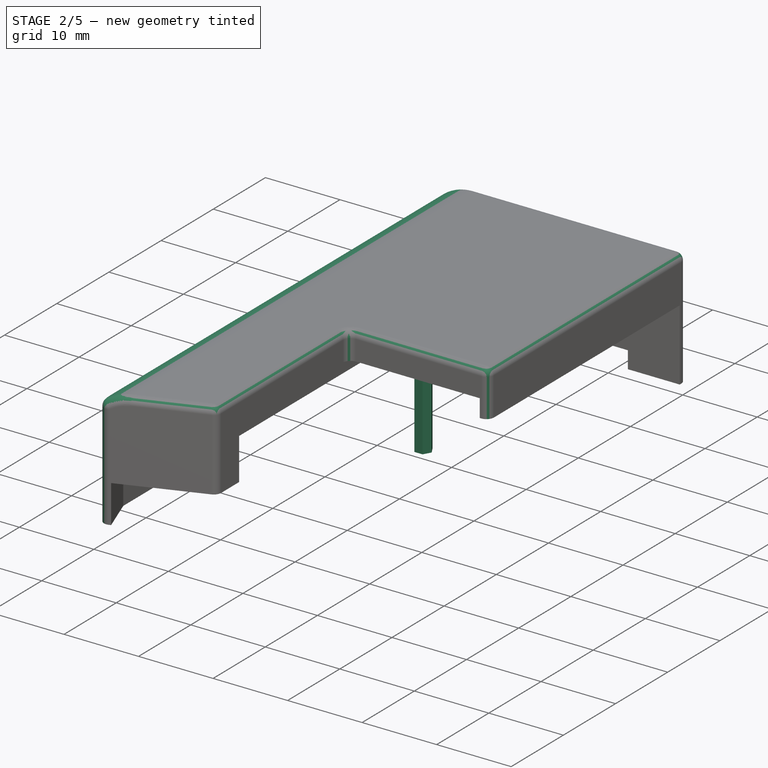
[diagram: stage 2 of 5 — iso view after this stage's code; geometry added in this stage tinted green]
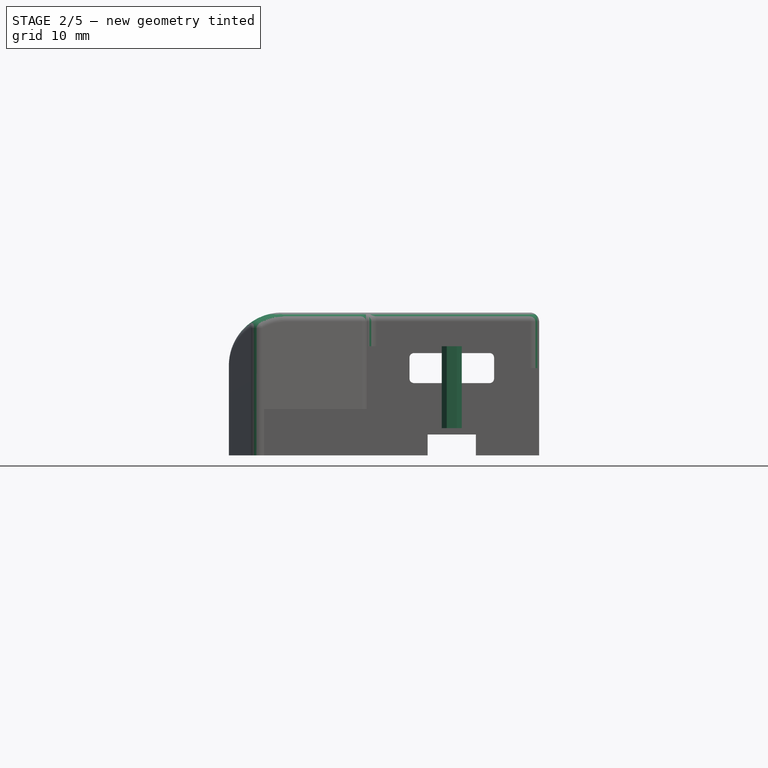
[diagram: stage 2 of 5 — front view after this stage's code; geometry added in this stage tinted green]
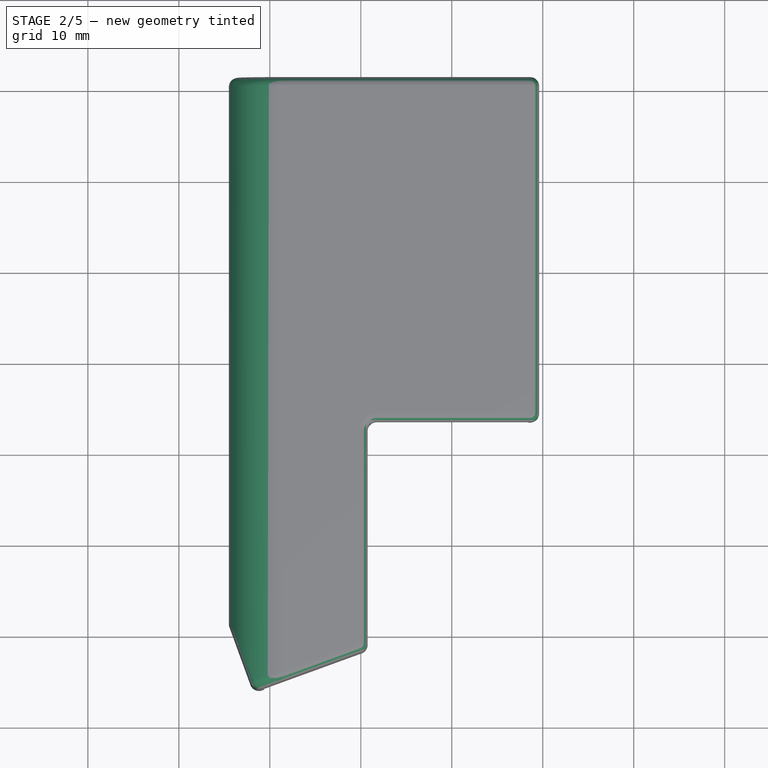
[diagram: stage 2 of 5 — top view after this stage's code; geometry added in this stage tinted green]
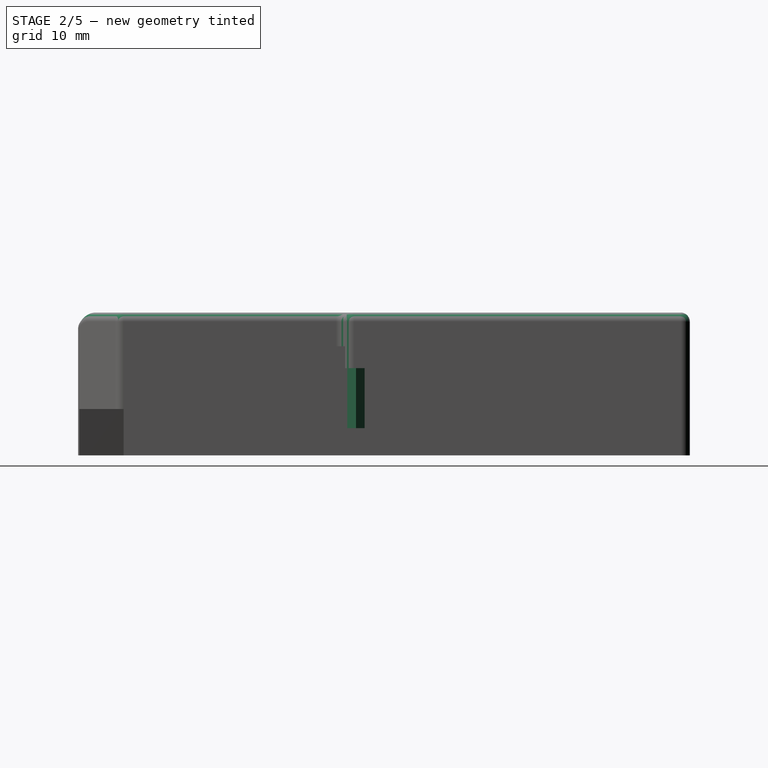
[diagram: stage 2 of 5 — right view after this stage's code; geometry added in this stage tinted green]
FEATURE [PartDesign::Pocket] Pocket004  label="コネクタ部"
  BaseFeature = -> Pocket002
  Direction = (0,1,-2e-16)
  Length = 5
  Length2 = 5
  Profile = -> Sketch011
  ReferenceAxis = -> Sketch011 [N_Axis]
  SideType = 0
  Suppressed = false
  Type = 0
  Type2 = 0
FEATURE [PartDesign::Pocket] Pocket006  label="外形カット"
  BaseFeature = -> Pocket004
  Direction = (0,1,-2e-16)
  Length = 100
  Length2 = 100
  Profile = -> Sketch016
  ReferenceAxis = -> Sketch016 [N_Axis]
  SideType = 1
  Suppressed = false
  Type = 0
  Type2 = 0
FEATURE [PartDesign::Fillet] Fillet001
  Base = -> Pocket006 [Edge7,Face1,Edge12,Edge17,Edge22,Edge66,Edge25,Edge24,Edge31,Edge13,Edge18]
  BaseFeature = -> Pocket006
  Radius = 1
  Refine = true
  SupportTransform = false
  Suppressed = false
  UseAllEdges = false
FEATURE [PartDesign::Pad] Pad005  label="固定柱1"
  BaseFeature = -> Fillet001
  Direction = (0,0,1)
  Length = 2.1
  Length2 = 10
  Profile = -> Sketch012
  ReferenceAxis = -> Sketch012 [N_Axis]
  Reversed = true
  SideType = 1
  Suppressed = false
  Type = 0
  Type2 = 0
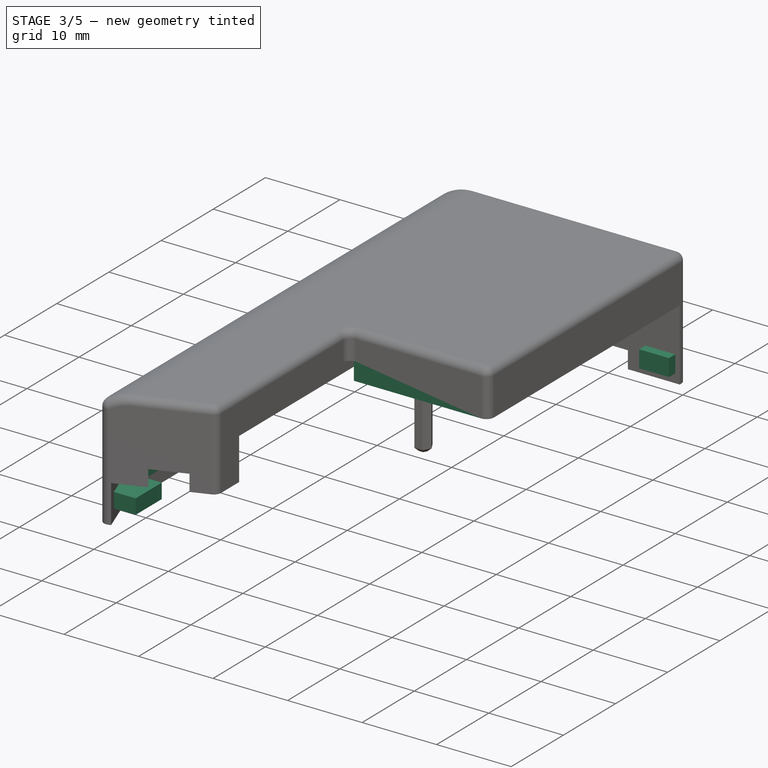
[diagram: stage 3 of 5 — iso view after this stage's code; geometry added in this stage tinted green]
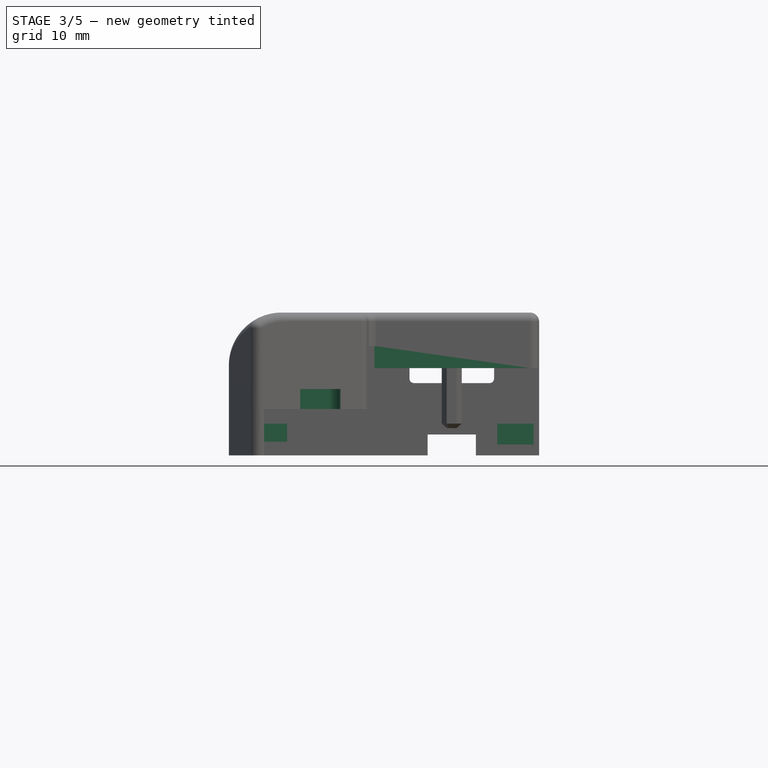
[diagram: stage 3 of 5 — front view after this stage's code; geometry added in this stage tinted green]
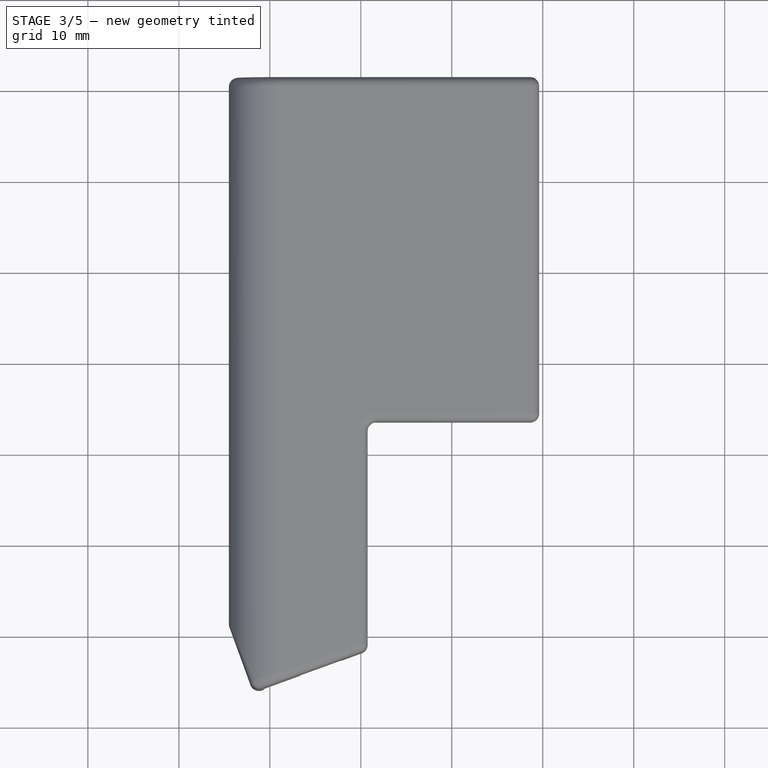
[diagram: stage 3 of 5 — top view after this stage's code; geometry added in this stage tinted green]
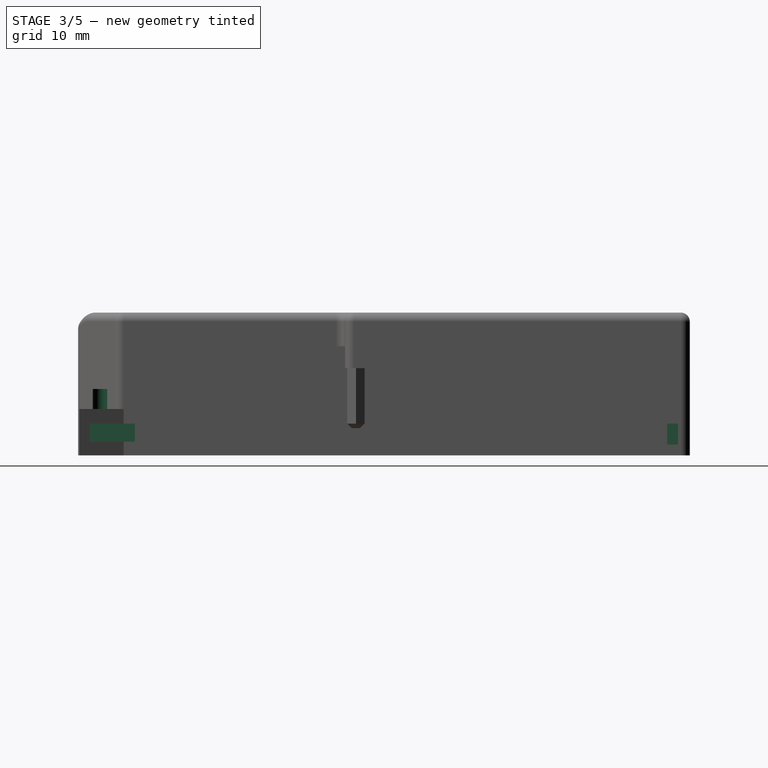
[diagram: stage 3 of 5 — right view after this stage's code; geometry added in this stage tinted green]
FEATURE [PartDesign::Pad] Pad006  label="固定柱2"
  BaseFeature = -> Pad005
  Direction = (0,0,1)
  Length = 4.5
  Length2 = 10
  Profile = -> Sketch014
  ReferenceAxis = -> Sketch014 [N_Axis]
  SideType = 0
  Suppressed = false
  Type = 0
  Type2 = 0
FEATURE [PartDesign::Chamfer] Chamfer001  label="固定柱面取り"
  Angle = 45
  Base = -> Pad006 [Face68]
  BaseFeature = -> Pad006
  ChamferType = 0
  FlipDirection = false
  Size = 0.5
  Size2 = 1
  SupportTransform = false
  Suppressed = false
  UseAllEdges = false
FEATURE [PartDesign::Pocket] Pocket005  label="電池ピン穴"
  BaseFeature = -> Chamfer001
  Direction = (0,0,-1)
  Length = 2.2
  Length2 = 5
  Profile = -> Sketch013
  ReferenceAxis = -> Sketch013 [N_Axis]
  Reversed = true
  SideType = 0
  Suppressed = false
  Type = 0
  Type2 = 0
FEATURE [Part::Feature] Part__Feature002  label="torabo-tsuki-lp-XS-bottom_PCB"
  Placement = pos=(0,0,3.9) rot=(0,0,1;0rad)
  shape: bbox 120 x 86.78 x 1.2 mm, 76 faces (baked)
FEATURE [App::Part] torabo_tsuki_lp_XS_left_1  label="torabo-tsuki-lp-XS-left 1"
  Group = -> [Part__Feature001,Part__Feature,Part__Feature002]
  Origin = -> Origin003
  Placement = pos=(-8.6,0,0) rot=(0,1,0;3.14159rad)
FEATURE [Sketcher::SketchObject] Sketch019
  ArcFitTolerance = 1e-06
  AttachmentOffset = pos=(0,0,-1.6) rot=(0,0,1;0rad)
  AttachmentSupport = -> [XY_Plane]
  ExternalTypes = [0]
  FullyConstrained = false
  MakeInternals = false
  MapMode = 5
  Placement = pos=(0,0,-1.6) rot=(0,0,1;0rad)
  _ExternalGeoVersion = 0
  expr: Constraints[10] = Sketch017.Constraints[10]
  expr: Constraints[12] = Sketch017.Constraints[12]
  expr: Constraints[22] = Sketch017.Constraints[22]
  expr: Constraints[23] = Sketch017.Constraints[23]
  expr: Constraints[24] = Sketch017.Constraints[24]
  expr: Constraints[31] = Sketch017.Constraints[31]
  expr: Constraints[42] = Sketch017.Constraints[42]
  expr: Constraints[43] = Sketch017.Constraints[43]
  expr: Constraints[44] = Sketch017.Constraints[44]
  expr: Constraints[45] = Sketch017.Constraints[45]
  expr: Constraints[54] = Sketch017.Constraints[54]
  expr: Constraints[55] = Sketch017.Constraints[55]
  expr: Constraints[56] = Sketch017.Constraints[56]
  expr: Constraints[57] = Sketch017.Constraints[57]
  expr: Constraints[75] = Sketch017.Constraints[75]
  expr: Constraints[76] = Sketch017.Constraints[76]
  expr: Constraints[77] = Sketch017.Constraints[77]
  expr: Constraints[78] = Sketch017.Constraints[78]
  sketch-geometry (30):
    g0: LineSegment [constr] StartX=8.4 StartY=-34 StartZ=0 EndX=8.4 EndY=0 EndZ=0
    g1: LineSegment [constr] StartX=8.4 StartY=0 StartZ=0 EndX=-8.4 EndY=0 EndZ=0
    g2: LineSegment [constr] StartX=-8.4 StartY=0 StartZ=0 EndX=-8.4 EndY=-34 EndZ=0
    g3: LineSegment [constr] StartX=-8.4 StartY=-34 StartZ=0 EndX=8.4 EndY=-34 EndZ=0
    g4: GeomPoint [constr] X=0 Y=-17 Z=0
    g5: LineSegment [constr] StartX=-22.1 StartY=-60.7 StartZ=0 EndX=-22.1 EndY=-3.7 EndZ=0
    g6: LineSegment [constr] StartX=-22.1 StartY=-3.7 StartZ=0 EndX=-9.1 EndY=-3.7 EndZ=0
    g7: LineSegment [constr] StartX=-9.1 StartY=-3.7 StartZ=0 EndX=-9.1 EndY=-60.7 EndZ=0
    g8: LineSegment [constr] StartX=-9.1 StartY=-60.7 StartZ=0 EndX=-22.1 EndY=-60.7 EndZ=0
    g9: GeomPoint [constr] X=-15.6 Y=-32.2 Z=0
    g10: LineSegment [constr] StartX=21.5 StartY=-68.9 StartZ=0 EndX=21.5 EndY=0 EndZ=0
    g11: LineSegment [constr] StartX=21.5 StartY=0 StartZ=0 EndX=-21.5 EndY=0 EndZ=0
    g12: GeomPoint [constr] X=0 Y=-34.45 Z=0
    g13: LineSegment [constr] StartX=8.5 StartY=-53.9 StartZ=0 EndX=8.5 EndY=-36.9 EndZ=0
    g14: LineSegment [constr] StartX=8.5 StartY=-36.9 StartZ=0 EndX=-8.5 EndY=-36.9 EndZ=0
    g15: LineSegment [constr] StartX=-8.5 StartY=-36.9 StartZ=0 EndX=-8.5 EndY=-53.9 EndZ=0
    g16: LineSegment [constr] StartX=-8.5 StartY=-53.9 StartZ=0 EndX=8.5 EndY=-53.9 EndZ=0
    g17: GeomPoint [constr] X=0 Y=-45.4 Z=0
    g18: LineSegment [constr] StartX=-18.1 StartY=-59.7 StartZ=0 EndX=-24.1 EndY=-59.7 EndZ=0
    g19: LineSegment [constr] StartX=-24.1 StartY=-59.7 StartZ=0 EndX=-24.1 EndY=-64.7 EndZ=0
    g20: LineSegment [constr] StartX=-24.1 StartY=-64.7 StartZ=0 EndX=-18.1 EndY=-64.7 EndZ=0
    g21: LineSegment [constr] StartX=-18.1 StartY=-64.7 StartZ=0 EndX=-18.1 EndY=-59.7 EndZ=0
    g22: LineSegment [constr] StartX=-24.1 StartY=-3.3 StartZ=0 EndX=-24.1 EndY=-59.7 EndZ=0
    g23: LineSegment [constr] StartX=-18.1 StartY=-3.3 StartZ=0 EndX=-18.1 EndY=-59.7 EndZ=0
    g24: LineSegment [constr] StartX=-24.1 StartY=-59.7 StartZ=0 EndX=-22.2801 EndY=-64.7 EndZ=0
    g25: LineSegment [constr] StartX=-18.1 StartY=-64.7 StartZ=0 EndX=-22.2801 EndY=-64.7 EndZ=0
    g26: LineSegment StartX=5 StartY=0 StartZ=0 EndX=5 EndY=-1.2 EndZ=0
    g27: LineSegment StartX=5 StartY=-1.2 StartZ=0 EndX=9 EndY=-1.2 EndZ=0
    g28: LineSegment StartX=9 StartY=-1.2 StartZ=0 EndX=9 EndY=0 EndZ=0
    g29: LineSegment StartX=9 StartY=0 StartZ=0 EndX=5 EndY=0 EndZ=0
  constraints (79):
    c: Coincident(g0,g1)
    c: Coincident(g1,g2)
    c: Coincident(g2,g3)
    c: Coincident(g3,g0)
    c: Horizontal(g1)
    c: Horizontal(g3)
    c: Vertical(g0)
    c: Vertical(g2)
    c: Symmetric(g1,g0,g4)
    c: PointOnObject(g4,g-2)
    c: Distance(g0) = 34
    c: PointOnObject(g-1,g1)
    c: Distance(g3) = 16.8
    c: Coincident(g5,g6)
    c: Coincident(g6,g7)
    c: Coincident(g7,g8)
    c: Coincident(g8,g5)
    c: Horizontal(g6)
    c: Horizontal(g8)
    c: Vertical(g5)
    c: Vertical(g7)
    c: Symmetric(g6,g5,g9)
    c: Distance(g6) = 13
    c: Distance(g5) = 57
    c: Distance(g9,g-1) = 32.2
    c: Coincident(g10,g11)
    c: Horizontal(g11)
    c: Vertical(g10)
    c: Symmetric(g11,g10,g12)
    c: PointOnObject(g12,g-2)
    c: PointOnObject(g11,g-1)
    c: Distance(g10) = 68.9
    c: Coincident(g13,g14)
    c: Coincident(g14,g15)
    c: Coincident(g15,g16)
    c: Coincident(g16,g13)
    c: Horizontal(g14)
    c: Horizontal(g16)
    c: Vertical(g13)
    c: Vertical(g15)
    c: Symmetric(g14,g13,g17)
    c: PointOnObject(g17,g-2)
    c: Distance(g16) = 17
    c: Distance(g13) = 17
    c: Distance(g17,g-1) = 45.4
    c: Distance(g9,g-2) = 15.6
    c: Coincident(g18,g19)
    c: Coincident(g19,g20)
    c: Coincident(g20,g21)
    c: Coincident(g21,g18)
    c: Horizontal(g18)
    c: Horizontal(g20)
    c: Vertical(g19)
    c: Vertical(g21)
    c: Distance(g18,g8) = 1
    c: Distance(g19) = 5
    c: Distance(g20) = 6
    c: Distance(g20,g-2) = 18.1
    c: Coincident(g22,g18)
    c: Vertical(g22)
    c: Coincident(g23,g18)
    c: Vertical(g23)
    c: Coincident(g24,g18)
    c: PointOnObject(g24,g20)
    c: Coincident(g25,g20)
    c: Coincident(g25,g24)
    c: Coincident(g26,g27)
    c: Coincident(g27,g28)
    c: Coincident(g28,g29)
    c: Coincident(g29,g26)
    c: Vertical(g26)
    c: Vertical(g28)
    c: Horizontal(g27)
    c: Horizontal(g29)
    c: PointOnObject(g26,g1)
    c: DistanceX(g27,g27) = 4
    c: DistanceY(g28,g28) = 1.2
    c: DistanceX(g-1,g26) = 5
    c: Angle(g25,g24) = 1.91986
FEATURE [PartDesign::Pad] Pad009
  BaseFeature = -> Pocket005
  Direction = (0,0,1)
  Length = 2.3
  Length2 = 10
  Profile = -> Sketch019
  ReferenceAxis = -> Sketch019 [N_Axis]
  Refine = true
  Reversed = true
  SideType = 0
  Suppressed = false
  Type = 0
  Type2 = 0
FEATURE [PartDesign::Pad] Pad008  label="固定爪1"
  BaseFeature = -> Pad009
  Direction = (0,0,1)
  Length = 2
  Length2 = 10
  Profile = -> Sketch017
  ReferenceAxis = -> Sketch017 [N_Axis]
  Reversed = true
  SideType = 0
  Suppressed = false
  Type = 0
  Type2 = 0
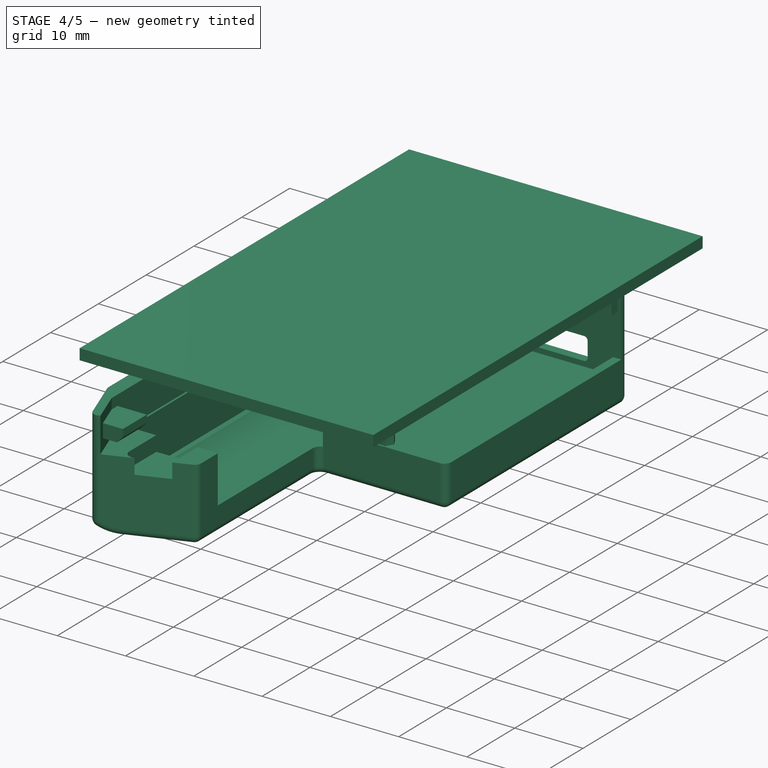
[diagram: stage 4 of 5 — iso view after this stage's code; geometry added in this stage tinted green]
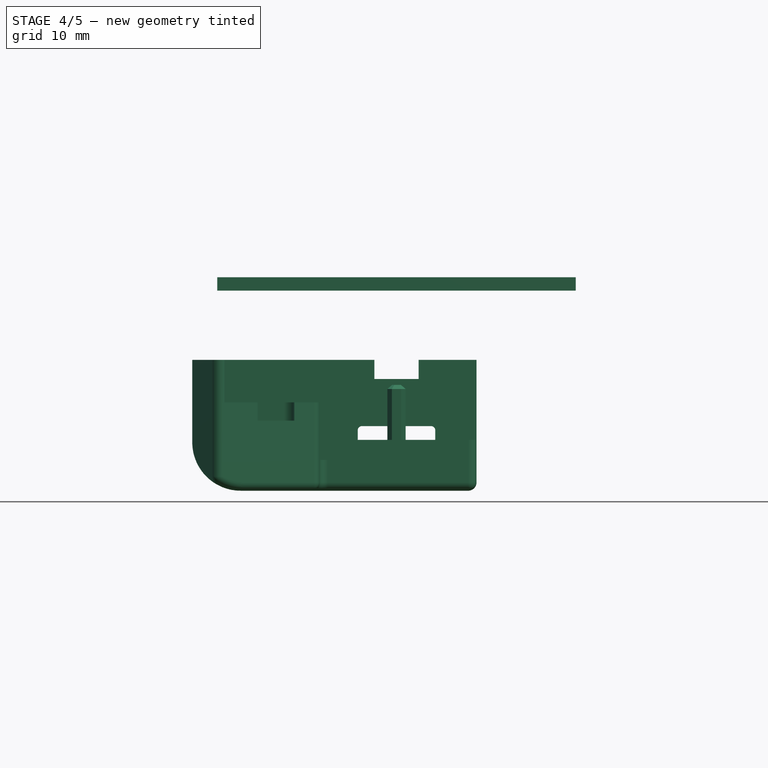
[diagram: stage 4 of 5 — front view after this stage's code; geometry added in this stage tinted green]
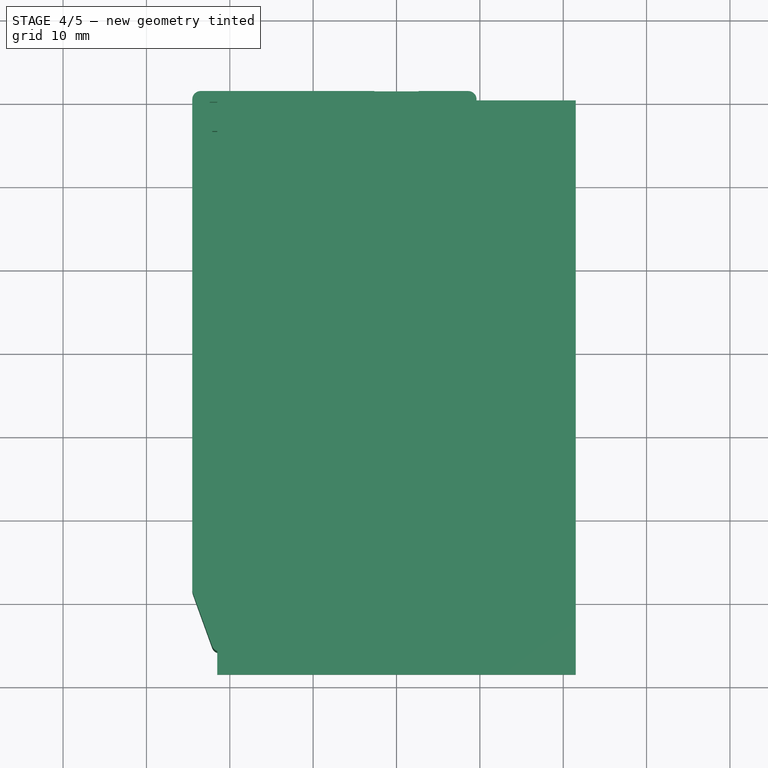
[diagram: stage 4 of 5 — top view after this stage's code; geometry added in this stage tinted green]
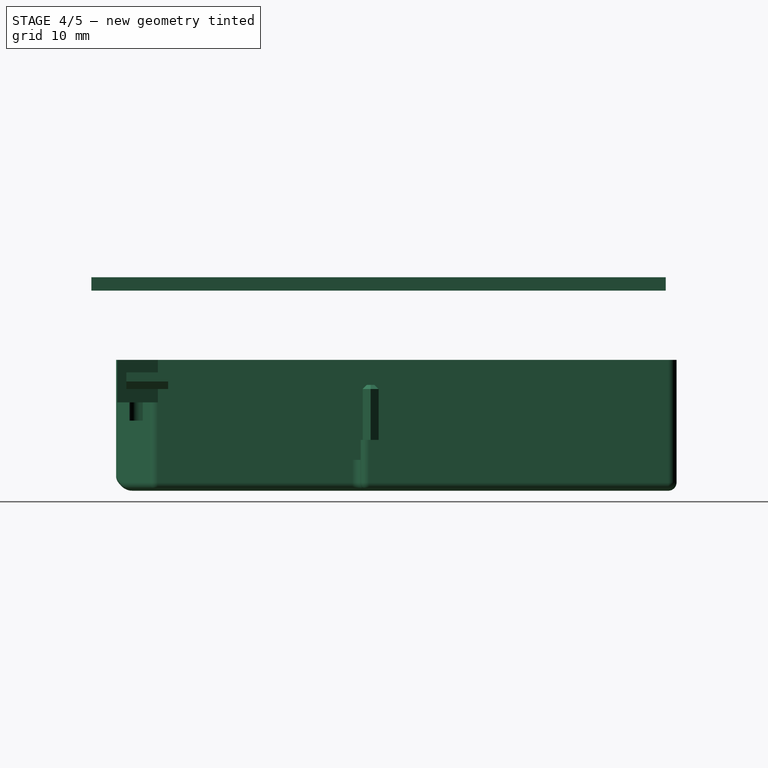
[diagram: stage 4 of 5 — right view after this stage's code; geometry added in this stage tinted green]
FEATURE [Sketcher::SketchObject] Sketch004  label="xy001"
  ArcFitTolerance = 0
  AttachmentSupport = -> [XY_Plane001]
  ExternalTypes = [0]
  FullyConstrained = true
  MakeInternals = false
  MapMode = 5
  _ExternalGeoVersion = 0
  sketch-geometry (20):
    g0: LineSegment [constr] StartX=9 StartY=-34 StartZ=0 EndX=9 EndY=0 EndZ=0
    g1: LineSegment [constr] StartX=9 StartY=0 StartZ=0 EndX=-9 EndY=0 EndZ=0
    g2: LineSegment [constr] StartX=-9 StartY=0 StartZ=0 EndX=-9 EndY=-34 EndZ=0
    g3: LineSegment [constr] StartX=-9 StartY=-34 StartZ=0 EndX=9 EndY=-34 EndZ=0
    g4: GeomPoint [constr] X=0 Y=-17 Z=0
    g5: LineSegment [constr] StartX=-27.55 StartY=-60.7 StartZ=0 EndX=-27.55 EndY=-3.7 EndZ=0
    g6: LineSegment [constr] StartX=-27.55 StartY=-3.7 StartZ=0 EndX=-10.45 EndY=-3.7 EndZ=0
    g7: LineSegment [constr] StartX=-10.45 StartY=-3.7 StartZ=0 EndX=-10.45 EndY=-60.7 EndZ=0
    g8: LineSegment [constr] StartX=-10.45 StartY=-60.7 StartZ=0 EndX=-27.55 EndY=-60.7 EndZ=0
    g9: GeomPoint [constr] X=-19 Y=-32.2 Z=0
    g10: LineSegment StartX=21.5 StartY=-68.9 StartZ=0 EndX=21.5 EndY=0 EndZ=0
    g11: LineSegment StartX=21.5 StartY=0 StartZ=0 EndX=-21.5 EndY=0 EndZ=0
    g12: LineSegment StartX=-21.5 StartY=0 StartZ=0 EndX=-21.5 EndY=-68.9 EndZ=0
    g13: LineSegment StartX=-21.5 StartY=-68.9 StartZ=0 EndX=21.5 EndY=-68.9 EndZ=0
    g14: GeomPoint [constr] X=0 Y=-34.45 Z=0
    g15: LineSegment [constr] StartX=9.5 StartY=-58.5 StartZ=0 EndX=9.5 EndY=-39.5 EndZ=0
    g16: LineSegment [constr] StartX=9.5 StartY=-39.5 StartZ=0 EndX=-9.5 EndY=-39.5 EndZ=0
    g17: LineSegment [constr] StartX=-9.5 StartY=-39.5 StartZ=0 EndX=-9.5 EndY=-58.5 EndZ=0
    g18: LineSegment [constr] StartX=-9.5 StartY=-58.5 StartZ=0 EndX=9.5 EndY=-58.5 EndZ=0
    g19: GeomPoint [constr] X=0 Y=-49 Z=0
  constraints (52):
    c: Coincident(g0,g1)
    c: Coincident(g1,g2)
    c: Coincident(g2,g3)
    c: Coincident(g3,g0)
    c: Horizontal(g1)
    c: Horizontal(g3)
    c: Vertical(g0)
    c: Vertical(g2)
    c: Symmetric(g1,g0,g4)
    c: PointOnObject(g4,g-2)
    c: Distance(g0) = 34
    c: PointOnObject(g-1,g1)
    c: Distance(g3) = 18
    c: Coincident(g5,g6)
    c: Coincident(g6,g7)
    c: Coincident(g7,g8)
    c: Coincident(g8,g5)
    c: Horizontal(g6)
    c: Horizontal(g8)
    c: Vertical(g5)
    c: Vertical(g7)
    c: Symmetric(g6,g5,g9)
    c: Distance(g6) = 17.1
    c: Distance(g5) = 57
    c: Distance(g9,g-1) = 32.2
    c: Coincident(g10,g11)
    c: Coincident(g11,g12)
    c: Coincident(g12,g13)
    c: Coincident(g13,g10)
    c: Horizontal(g11)
    c: Horizontal(g13)
    c: Vertical(g10)
    c: Vertical(g12)
    c: Symmetric(g11,g10,g14)
    c: PointOnObject(g14,g-2)
    c: PointOnObject(g11,g-1)
    c: Distance(g12,g-2) = 21.5
    c: Distance(g10) = 68.9
    c: Coincident(g15,g16)
    c: Coincident(g16,g17)
    c: Coincident(g17,g18)
    c: Coincident(g18,g15)
    c: Horizontal(g16)
    c: Horizontal(g18)
    c: Vertical(g15)
    c: Vertical(g17)
    c: Symmetric(g16,g15,g19)
    c: PointOnObject(g19,g-2)
    c: Distance(g18) = 19
    c: Distance(g15) = 19
    c: Distance(g19,g-1) = 49
    c: Distance(g9,g-2) = 19
FEATURE [PartDesign::Pad] Pad001
  Direction = (0,0,1)
  Length = 1.6
  Length2 = 10
  Profile = -> Sketch004
  ReferenceAxis = -> Sketch004 [N_Axis]
  Reversed = true
  SideType = 0
  Suppressed = false
  Type = 0
  Type2 = 0
FEATURE [PartDesign::Chamfer] Chamfer  label="固定爪1_逃げ"
  Angle = 45
  Base = -> Pad008 [Edge242]
  BaseFeature = -> Pad008
  ChamferType = 0
  FlipDirection = false
  Size = 0.9
  Size2 = 1
  SupportTransform = false
  Suppressed = false
  UseAllEdges = false
FEATURE [App::Point] Origin004  label="原点"
  Role = Origin
FEATURE [App::Point] Origin005  label="原点"
  Role = Origin
FEATURE [App::Point] Origin006  label="原点"
  Role = Origin
FEATURE [Sketcher::SketchObject] Sketch020
  ArcFitTolerance = 1e-06
  AttachmentSupport = -> [Origin]
  ExternalTypes = [0]
  FullyConstrained = false
  MakeInternals = false
  MapMode = 5
  _ExternalGeoVersion = 1
  expr: Constraints[17] = Sketch013.Constraints[17]
  expr: Constraints[18] = Sketch013.Constraints[18]
  expr: Constraints[19] = Sketch013.Constraints[19]
  expr: Constraints[20] = Sketch013.Constraints[20]
  expr: Constraints[58] = Sketch013.Constraints[58]
  expr: Constraints[8] = Sketch013.Constraints[8]
  expr: Constraints[9] = Sketch013.Constraints[9]
  sketch-geometry (26):
    g0: ArcOfCircle [constr] CenterX=-17 CenterY=-63.1 CenterZ=0 NormalX=0 NormalY=0 NormalZ=1 AngleXU=0 Radius=1.25 StartAngle=3.14159 EndAngle=6.28319
    g1: ArcOfCircle [constr] CenterX=-17 CenterY=-62.3 CenterZ=0 NormalX=0 NormalY=0 NormalZ=1 AngleXU=0 Radius=1.25 StartAngle=-9e-16 EndAngle=3.14159
    g2: LineSegment [constr] StartX=-15.75 StartY=-63.1 StartZ=0 EndX=-15.75 EndY=-62.3 EndZ=0
    g3: LineSegment [constr] StartX=-18.25 StartY=-62.3 StartZ=0 EndX=-18.25 EndY=-63.1 EndZ=0
    g4: LineSegment [constr] StartX=-17 StartY=-63.1 StartZ=0 EndX=-17 EndY=12.3674 EndZ=0
    g5: ArcOfCircle [constr] CenterX=-17 CenterY=-1.3 CenterZ=0 NormalX=0 NormalY=0 NormalZ=1 AngleXU=0 Radius=1.25 StartAngle=0 EndAngle=3.14159
    g6: ArcOfCircle [constr] CenterX=-17 CenterY=-2.1 CenterZ=0 NormalX=0 NormalY=0 NormalZ=1 AngleXU=0 Radius=1.25 StartAngle=3.14159 EndAngle=6.28319
    g7: LineSegment [constr] StartX=-18.25 StartY=-1.3 StartZ=0 EndX=-18.25 EndY=-2.1 EndZ=0
    g8: LineSegment [constr] StartX=-15.75 StartY=-2.1 StartZ=0 EndX=-15.75 EndY=-1.3 EndZ=0
    g9: LineSegment [constr] StartX=-15.75 StartY=-62.3 StartZ=0 EndX=-15.75 EndY=-2.1 EndZ=0
    g10: LineSegment [constr] StartX=-18.25 StartY=-2.1 StartZ=0 EndX=-18.25 EndY=-62.3 EndZ=0
    g11: ArcOfCircle CenterX=-17 CenterY=-1.3 CenterZ=0 NormalX=0 NormalY=0 NormalZ=1 AngleXU=0 Radius=1.25 StartAngle=1.5708 EndAngle=3.14159
    g12: ArcOfCircle [constr] CenterX=-17 CenterY=-63.1 CenterZ=0 NormalX=0 NormalY=0 NormalZ=1 AngleXU=0 Radius=1.25 StartAngle=3.14159 EndAngle=4.71239
    g13: LineSegment [constr] StartX=-17 StartY=-63.1 StartZ=0 EndX=-17 EndY=-64.35 EndZ=0
    g14: LineSegment StartX=-17 StartY=-0.05 StartZ=0 EndX=-13.5 EndY=-0.05 EndZ=0
    g15: LineSegment [constr] StartX=-18.25 StartY=-1.3 StartZ=0 EndX=-15.8528 EndY=-1.3 EndZ=0
    g16: LineSegment [constr] StartX=-13.5 StartY=-0.05 StartZ=0 EndX=-13.5 EndY=-64.5733 EndZ=0
    g17: LineSegment [constr] StartX=-17 StartY=-64.35 StartZ=0 EndX=-13.5 EndY=-64.35 EndZ=0
    g18: ArcOfCircle CenterX=-13.5 CenterY=-1.3 CenterZ=0 NormalX=0 NormalY=0 NormalZ=1 AngleXU=0 Radius=1.25 StartAngle=3e-16 EndAngle=1.5708
    g19: LineSegment [constr] StartX=-12.25 StartY=-1.3 StartZ=0 EndX=-12.25 EndY=-63.1 EndZ=0
    g20: LineSegment [constr] StartX=-17 StartY=-63.1 StartZ=0 EndX=-12.25 EndY=-63.1 EndZ=0
    g21: ArcOfCircle [constr] CenterX=-13.5 CenterY=-63.1 CenterZ=0 NormalX=0 NormalY=0 NormalZ=1 AngleXU=0 Radius=1.25 StartAngle=4.71239 EndAngle=6.28319
    g22: LineSegment [constr] StartX=-13.5 StartY=-64.35 StartZ=0 EndX=-17 EndY=-64.35 EndZ=0
    g23: LineSegment StartX=-18.25 StartY=-1.3 StartZ=0 EndX=-18.25 EndY=-5.09417 EndZ=0
    g24: LineSegment StartX=-18.25 StartY=-5.09417 StartZ=0 EndX=-12.25 EndY=-5.09417 EndZ=0
    g25: LineSegment StartX=-12.25 StartY=-5.09417 StartZ=0 EndX=-12.25 EndY=-1.3 EndZ=0
  constraints (66):
    c: Tangent(g0,g2) = -1.5708
    c: Tangent(g2,g1) = -1.5708
    c: Tangent(g1,g3) = -1.5708
    c: Tangent(g3,g0) = -1.5708
    c: Equal(g0,g1)
    c: Vertical(g2)
    c: Coincident(g4,g0)
    c: Vertical(g4)
    c: DistanceX(g-2,g0) = -17
    c: Distance(g1,g0) = 0.8
    c: Tangent(g5,g7) = -1.5708
    c: Tangent(g7,g6) = -1.5708
    c: Tangent(g6,g8) = -1.5708
    c: Tangent(g8,g5) = -1.5708
    c: Equal(g5,g6)
    c: PointOnObject(g5,g4)
    c: PointOnObject(g6,g4)
    c: Distance(g5,g8) = 2.5
    c: Distance(g5,g6) = 0.8
    c: Distance(g5,g-1) = 1.3
    c: Distance(g5,g1) = 61
    c: Coincident(g9,g2)
    c: Coincident(g9,g8)
    c: Vertical(g9)
    c: Coincident(g10,g7)
    c: Coincident(g10,g3)
    c: Coincident(g11,g5)
    c: Coincident(g11,g7)
    c: PointOnObject(g11,g4)
    c: Coincident(g12,g0)
    c: Coincident(g12,g3)
    c: Coincident(g13,g12)
    c: Coincident(g13,g12)
    c: Vertical(g13)
    c: Coincident(g14,g11)
    c: Horizontal(g14)
    c: Coincident(g15,g7)
    c: Horizontal(g15)
    c: Coincident(g16,g14)
    c: Vertical(g16)
    c: Coincident(g17,g12)
    c: PointOnObject(g17,g16)
    c: Horizontal(g17)
    c: PointOnObject(g18,g15)
    c: Coincident(g18,g14)
    c: PointOnObject(g18,g15)
    c: PointOnObject(g18,g16)
    c: Coincident(g19,g18)
    c: Vertical(g19)
    c: Coincident(g20,g12)
    c: Coincident(g20,g19)
    c: Horizontal(g20)
    c: PointOnObject(g21,g20)
    c: Coincident(g21,g19)
    c: PointOnObject(g21,g16)
    c: PointOnObject(g21,g16)
    c: Coincident(g22,g21)
    c: Coincident(g22,g12)
    c: Distance(g14) = 3.5
    c: Coincident(g23,g5)
    c: PointOnObject(g23,g10)
    c: Coincident(g24,g23)
    c: Horizontal(g24)
    c: Coincident(g18,g25)
    c: Vertical(g25)
    c: Coincident(g24,g25)
FEATURE [PartDesign::Pocket] Pocket008
  BaseFeature = -> Chamfer
  Direction = (0,0,-1)
  Length = 5
  Length2 = 5
  Profile = -> Sketch020
  ReferenceAxis = -> Sketch020 [N_Axis]
  Refine = true
  Reversed = true
  SideType = 0
  Suppressed = false
  Type = 0
  Type2 = 0
FEATURE [PartDesign::Body] Body
  AllowCompound = false
  Group = -> [Sketch,Sketch001,Sketch002,Pad,Sketch003,Pocket,Sketch007,Pocket001,Sketch008,Sketch018,Pocket007,Pocket002,Sketch011,Pocket004,Pocket006,Sketch012,Fillet001,Pad005,Sketch013,Sketch014,Pad006,Chamfer001,Pocket005,Sketch016,Sketch017,Sketch019,Pad009,Pad008,Chamfer,Sketch020,Pocket008]
  Origin = -> Origin
  Tip = -> Pocket008
FEATURE [Part::Mirroring] Part__Mirroring  label="Body (Mirror #1)"
  Base = (0,0,0)
  Normal = (0,0,1)
  Placement = pos=(0,0,-15) rot=(0,0,1;0rad)
  Source = -> Body
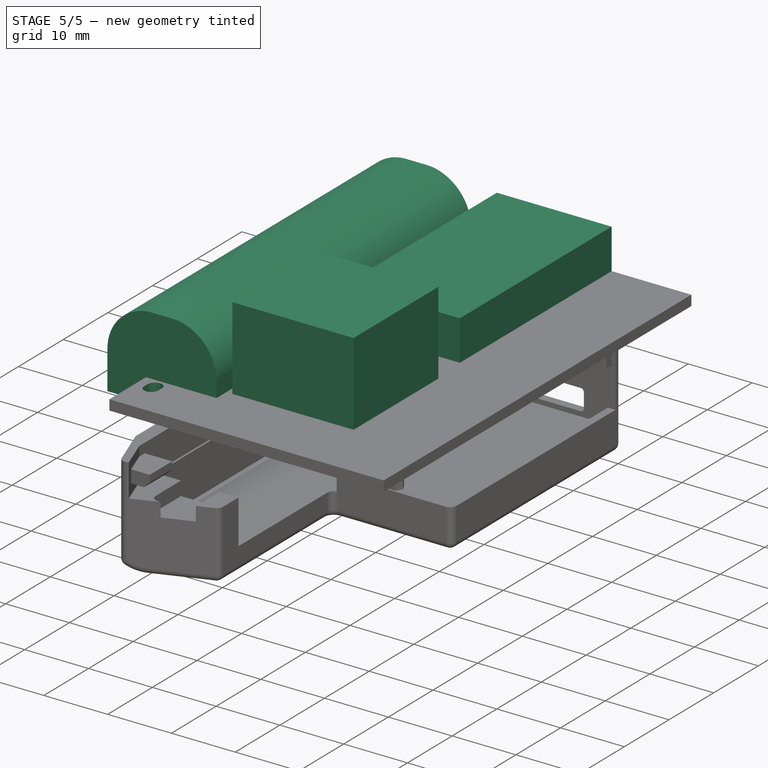
[diagram: stage 5 of 5 — iso view after this stage's code; geometry added in this stage tinted green]
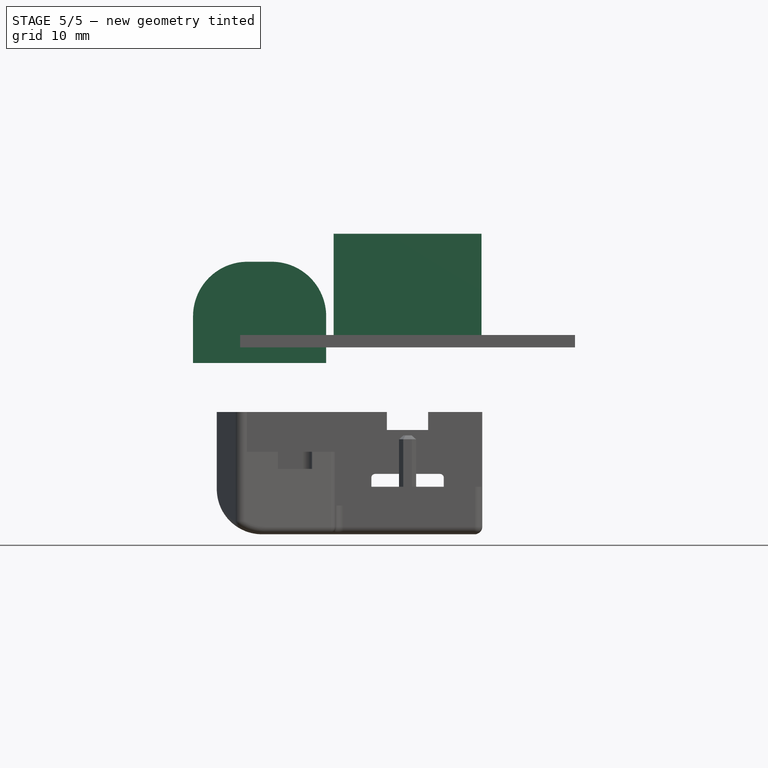
[diagram: stage 5 of 5 — front view after this stage's code; geometry added in this stage tinted green]
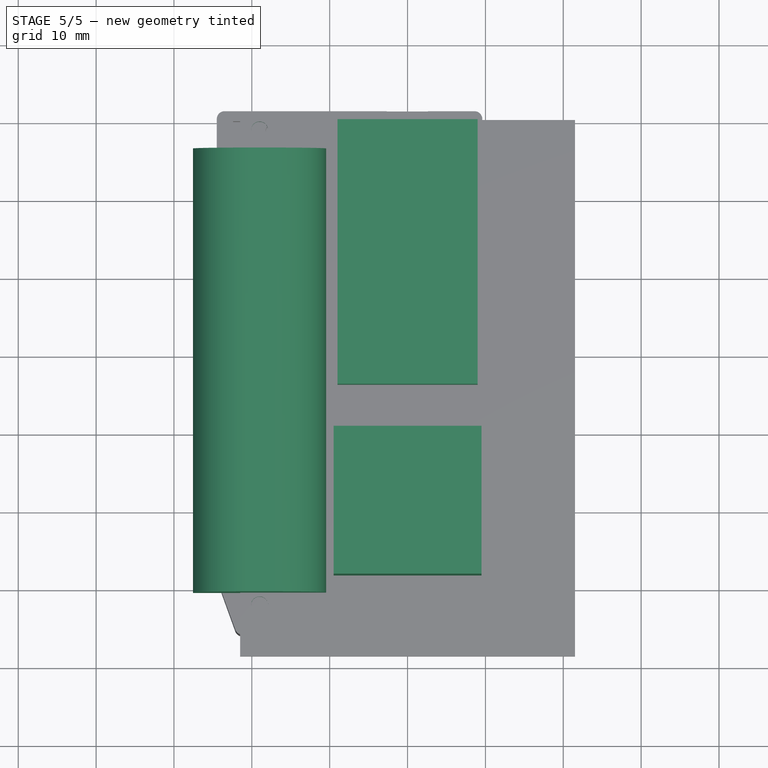
[diagram: stage 5 of 5 — top view after this stage's code; geometry added in this stage tinted green]
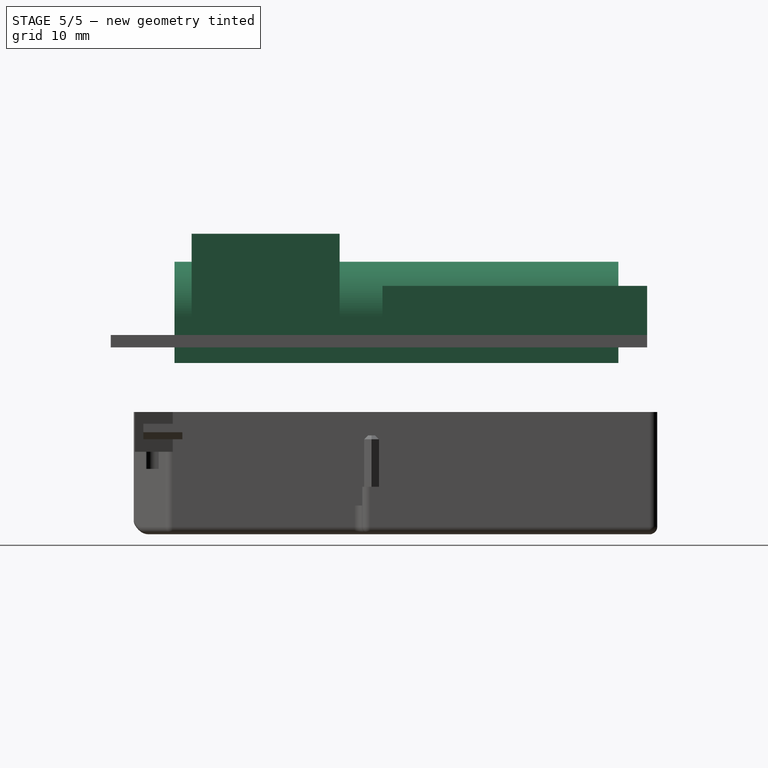
[diagram: stage 5 of 5 — right view after this stage's code; geometry added in this stage tinted green]
FEATURE [Sketcher::SketchObject] Sketch005  label="xy002"
  ArcFitTolerance = 0
  AttachmentSupport = -> [XY_Plane001]
  ExternalTypes = [0]
  FullyConstrained = true
  MakeInternals = false
  MapMode = 5
  _ExternalGeoVersion = 0
  sketch-geometry (20):
    g0: LineSegment StartX=9 StartY=-34 StartZ=0 EndX=9 EndY=0 EndZ=0
    g1: LineSegment StartX=9 StartY=0 StartZ=0 EndX=-9 EndY=0 EndZ=0
    g2: LineSegment StartX=-9 StartY=0 StartZ=0 EndX=-9 EndY=-34 EndZ=0
    g3: LineSegment StartX=-9 StartY=-34 StartZ=0 EndX=9 EndY=-34 EndZ=0
    g4: GeomPoint [constr] X=0 Y=-17 Z=0
    g5: LineSegment [constr] StartX=-27.55 StartY=-60.7 StartZ=0 EndX=-27.55 EndY=-3.7 EndZ=0
    g6: LineSegment [constr] StartX=-27.55 StartY=-3.7 StartZ=0 EndX=-10.45 EndY=-3.7 EndZ=0
    g7: LineSegment [constr] StartX=-10.45 StartY=-3.7 StartZ=0 EndX=-10.45 EndY=-60.7 EndZ=0
    g8: LineSegment [constr] StartX=-10.45 StartY=-60.7 StartZ=0 EndX=-27.55 EndY=-60.7 EndZ=0
    g9: GeomPoint [constr] X=-19 Y=-32.2 Z=0
    g10: LineSegment [constr] StartX=21.5 StartY=-68.9 StartZ=0 EndX=21.5 EndY=0 EndZ=0
    g11: LineSegment [constr] StartX=21.5 StartY=0 StartZ=0 EndX=-21.5 EndY=0 EndZ=0
    g12: LineSegment [constr] StartX=-21.5 StartY=0 StartZ=0 EndX=-21.5 EndY=-68.9 EndZ=0
    g13: LineSegment [constr] StartX=-21.5 StartY=-68.9 StartZ=0 EndX=21.5 EndY=-68.9 EndZ=0
    g14: GeomPoint [constr] X=0 Y=-34.45 Z=0
    g15: LineSegment [constr] StartX=9.5 StartY=-58.5 StartZ=0 EndX=9.5 EndY=-39.5 EndZ=0
    g16: LineSegment [constr] StartX=9.5 StartY=-39.5 StartZ=0 EndX=-9.5 EndY=-39.5 EndZ=0
    g17: LineSegment [constr] StartX=-9.5 StartY=-39.5 StartZ=0 EndX=-9.5 EndY=-58.5 EndZ=0
    g18: LineSegment [constr] StartX=-9.5 StartY=-58.5 StartZ=0 EndX=9.5 EndY=-58.5 EndZ=0
    g19: GeomPoint [constr] X=0 Y=-49 Z=0
  constraints (52):
    c: Coincident(g0,g1)
    c: Coincident(g1,g2)
    c: Coincident(g2,g3)
    c: Coincident(g3,g0)
    c: Horizontal(g1)
    c: Horizontal(g3)
    c: Vertical(g0)
    c: Vertical(g2)
    c: Symmetric(g1,g0,g4)
    c: PointOnObject(g4,g-2)
    c: Distance(g0) = 34
    c: PointOnObject(g-1,g1)
    c: Distance(g3) = 18
    c: Coincident(g5,g6)
    c: Coincident(g6,g7)
    c: Coincident(g7,g8)
    c: Coincident(g8,g5)
    c: Horizontal(g6)
    c: Horizontal(g8)
    c: Vertical(g5)
    c: Vertical(g7)
    c: Symmetric(g6,g5,g9)
    c: Distance(g6) = 17.1
    c: Distance(g5) = 57
    c: Distance(g9,g-1) = 32.2
    c: Coincident(g10,g11)
    c: Coincident(g11,g12)
    c: Coincident(g12,g13)
    c: Coincident(g13,g10)
    c: Horizontal(g11)
    c: Horizontal(g13)
    c: Vertical(g10)
    c: Vertical(g12)
    c: Symmetric(g11,g10,g14)
    c: PointOnObject(g14,g-2)
    c: PointOnObject(g11,g-1)
    c: Distance(g12,g-2) = 21.5
    c: Distance(g10) = 68.9
    c: Coincident(g15,g16)
    c: Coincident(g16,g17)
    c: Coincident(g17,g18)
    c: Coincident(g18,g15)
    c: Horizontal(g16)
    c: Horizontal(g18)
    c: Vertical(g15)
    c: Vertical(g17)
    c: Symmetric(g16,g15,g19)
    c: PointOnObject(g19,g-2)
    c: Distance(g18) = 19
    c: Distance(g15) = 19
    c: Distance(g19,g-1) = 49
    c: Distance(g9,g-2) = 19
FEATURE [PartDesign::Pad] Pad002
  BaseFeature = -> Pad001
  Direction = (0,0,1)
  Length = 6.3
  Length2 = 10
  Profile = -> Sketch005
  ReferenceAxis = -> Sketch005 [N_Axis]
  SideType = 0
  Suppressed = false
  Type = 0
  Type2 = 0
  expr: Length = Spreadsheet.conn_h + Spreadsheet.controller_h
FEATURE [Sketcher::SketchObject] Sketch006  label="xy003"
  ArcFitTolerance = 0
  AttachmentOffset = pos=(0,0,-3.6) rot=(0,0,1;0rad)
  AttachmentSupport = -> [XY_Plane001]
  ExternalTypes = [0]
  FullyConstrained = true
  MakeInternals = false
  MapMode = 5
  Placement = pos=(0,0,-3.6) rot=(0,0,1;0rad)
  _ExternalGeoVersion = 0
  expr: .AttachmentOffset.Base.z = -1.6 - 2
  sketch-geometry (20):
    g0: LineSegment [constr] StartX=9 StartY=-34 StartZ=0 EndX=9 EndY=0 EndZ=0
    g1: LineSegment [constr] StartX=9 StartY=0 StartZ=0 EndX=-9 EndY=0 EndZ=0
    g2: LineSegment [constr] StartX=-9 StartY=0 StartZ=0 EndX=-9 EndY=-34 EndZ=0
    g3: LineSegment [constr] StartX=-9 StartY=-34 StartZ=0 EndX=9 EndY=-34 EndZ=0
    g4: GeomPoint [constr] X=0 Y=-17 Z=0
    g5: LineSegment StartX=-27.55 StartY=-60.7 StartZ=0 EndX=-27.55 EndY=-3.7 EndZ=0
    g6: LineSegment StartX=-27.55 StartY=-3.7 StartZ=0 EndX=-10.45 EndY=-3.7 EndZ=0
    g7: LineSegment StartX=-10.45 StartY=-3.7 StartZ=0 EndX=-10.45 EndY=-60.7 EndZ=0
    g8: LineSegment StartX=-10.45 StartY=-60.7 StartZ=0 EndX=-27.55 EndY=-60.7 EndZ=0
    g9: GeomPoint [constr] X=-19 Y=-32.2 Z=0
    g10: LineSegment [constr] StartX=21.5 StartY=-68.9 StartZ=0 EndX=21.5 EndY=0 EndZ=0
    g11: LineSegment [constr] StartX=21.5 StartY=0 StartZ=0 EndX=-21.5 EndY=0 EndZ=0
    g12: LineSegment [constr] StartX=-21.5 StartY=0 StartZ=0 EndX=-21.5 EndY=-68.9 EndZ=0
    g13: LineSegment [constr] StartX=-21.5 StartY=-68.9 StartZ=0 EndX=21.5 EndY=-68.9 EndZ=0
    g14: GeomPoint [constr] X=0 Y=-34.45 Z=0
    g15: LineSegment [constr] StartX=9.5 StartY=-58.5 StartZ=0 EndX=9.5 EndY=-39.5 EndZ=0
    g16: LineSegment [constr] StartX=9.5 StartY=-39.5 StartZ=0 EndX=-9.5 EndY=-39.5 EndZ=0
    g17: LineSegment [constr] StartX=-9.5 StartY=-39.5 StartZ=0 EndX=-9.5 EndY=-58.5 EndZ=0
    g18: LineSegment [constr] StartX=-9.5 StartY=-58.5 StartZ=0 EndX=9.5 EndY=-58.5 EndZ=0
    g19: GeomPoint [constr] X=0 Y=-49 Z=0
  constraints (52):
    c: Coincident(g0,g1)
    c: Coincident(g1,g2)
    c: Coincident(g2,g3)
    c: Coincident(g3,g0)
    c: Horizontal(g1)
    c: Horizontal(g3)
    c: Vertical(g0)
    c: Vertical(g2)
    c: Symmetric(g1,g0,g4)
    c: PointOnObject(g4,g-2)
    c: Distance(g0) = 34
    c: PointOnObject(g-1,g1)
    c: Distance(g3) = 18
    c: Coincident(g5,g6)
    c: Coincident(g6,g7)
    c: Coincident(g7,g8)
    c: Coincident(g8,g5)
    c: Horizontal(g6)
    c: Horizontal(g8)
    c: Vertical(g5)
    c: Vertical(g7)
    c: Symmetric(g6,g5,g9)
    c: Distance(g6) = 17.1
    c: Distance(g5) = 57
    c: Distance(g9,g-1) = 32.2
    c: Coincident(g10,g11)
    c: Coincident(g11,g12)
    c: Coincident(g12,g13)
    c: Coincident(g13,g10)
    c: Horizontal(g11)
    c: Horizontal(g13)
    c: Vertical(g10)
    c: Vertical(g12)
    c: Symmetric(g11,g10,g14)
    c: PointOnObject(g14,g-2)
    c: PointOnObject(g11,g-1)
    c: Distance(g12,g-2) = 21.5
    c: Distance(g10) = 68.9
    c: Coincident(g15,g16)
    c: Coincident(g16,g17)
    c: Coincident(g17,g18)
    c: Coincident(g18,g15)
    c: Horizontal(g16)
    c: Horizontal(g18)
    c: Vertical(g15)
    c: Vertical(g17)
    c: Symmetric(g16,g15,g19)
    c: PointOnObject(g19,g-2)
    c: Distance(g18) = 19
    c: Distance(g15) = 19
    c: Distance(g19,g-1) = 49
    c: Distance(g9,g-2) = 19
FEATURE [PartDesign::Pad] Pad003
  BaseFeature = -> Pad002
  Direction = (0,0,1)
  Length = 13
  Length2 = 10
  Profile = -> Sketch006
  ReferenceAxis = -> Sketch006 [N_Axis]
  SideType = 0
  Suppressed = false
  Type = 0
  Type2 = 0
  expr: Length = Spreadsheet.battery_h
FEATURE [PartDesign::Fillet] Fillet
  Base = -> Pad003 [Edge36,Edge49]
  BaseFeature = -> Pad003
  Radius = 7
  SupportTransform = false
  Suppressed = false
  UseAllEdges = false
FEATURE [Sketcher::SketchObject] Sketch008
  ArcFitTolerance = 0
  AttachmentOffset = pos=(0,0,3.4) rot=(0,0,1;0rad)
  AttachmentSupport = -> [XZ_Plane]
  ExternalTypes = [0]
  FullyConstrained = false
  MakeInternals = false
  MapMode = 5
  Placement = pos=(0,-3.4,8e-16) rot=(1,0,0;1.5708rad)
  _ExternalGeoVersion = 0
  expr: Constraints[105] = Sketch.Constraints[105]
  expr: Constraints[120] = Sketch.Constraints[120]
  expr: Constraints[131] = Sketch.Constraints[131]
  expr: Constraints[132] = Sketch.Constraints[132]
  expr: Constraints[133] = Sketch.Constraints[133]
  expr: Constraints[19] = Sketch.Constraints[19]
  expr: Constraints[20] = Sketch.Constraints[20]
  expr: Constraints[31] = Sketch.Constraints[31]
  expr: Constraints[32] = Sketch.Constraints[32]
  expr: Constraints[44] = Sketch.Constraints[44]
  expr: Constraints[45] = Sketch.Constraints[45]
  expr: Constraints[57] = Sketch.Constraints[57]
  expr: Constraints[58] = Sketch.Constraints[58]
  expr: Constraints[69] = Sketch.Constraints[69]
  expr: Constraints[79] = Sketch.Constraints[79]
  expr: Constraints[80] = Sketch.Constraints[80]
  expr: Constraints[81] = Sketch.Constraints[81]
  expr: Constraints[82] = Sketch.Constraints[82]
  expr: Constraints[83] = Sketch.Constraints[83]
  expr: Constraints[93] = Sketch.Constraints[93]
  expr: Constraints[94] = Sketch.Constraints[94]
  sketch-geometry (70):
    g0: LineSegment [constr] StartX=9 StartY=2.5 StartZ=0 EndX=9 EndY=4.1 EndZ=0
    g1: LineSegment [constr] StartX=9 StartY=4.1 StartZ=0 EndX=-9 EndY=4.1 EndZ=0
    g2: LineSegment [constr] StartX=-9 StartY=4.1 StartZ=0 EndX=-9 EndY=2.5 EndZ=0
    g3: LineSegment [constr] StartX=-9 StartY=2.5 StartZ=0 EndX=9 EndY=2.5 EndZ=0
    g4: GeomPoint [constr] X=0 Y=3.3 Z=0
    g5: LineSegment [constr] StartX=-105.409 StartY=0 StartZ=0 EndX=45.7381 EndY=0 EndZ=0
    g6: LineSegment [constr] StartX=45.7381 StartY=0 StartZ=0 EndX=45.7381 EndY=-1.6 EndZ=0
    g7: LineSegment [constr] StartX=45.7381 StartY=-1.6 StartZ=0 EndX=-105.409 EndY=-1.6 EndZ=0
    g8: LineSegment [constr] StartX=-105.409 StartY=-1.6 StartZ=0 EndX=-105.409 EndY=0 EndZ=0
    g9: LineSegment [constr] StartX=9 StartY=2.5 StartZ=0 EndX=6.36312 EndY=2.5 EndZ=0
    g10: LineSegment [constr] StartX=6.36312 StartY=2.5 StartZ=0 EndX=6.36312 EndY=0 EndZ=0
    g11: LineSegment [constr] StartX=6.36312 StartY=0 StartZ=0 EndX=9 EndY=0 EndZ=0
    g12: LineSegment [constr] StartX=9 StartY=0 StartZ=0 EndX=9 EndY=2.5 EndZ=0
    g13: LineSegment [constr] StartX=4.55 StartY=-5.1 StartZ=0 EndX=4.55 EndY=-1.6 EndZ=0
    g14: LineSegment [constr] StartX=4.55 StartY=-1.6 StartZ=0 EndX=-4.55 EndY=-1.6 EndZ=0
    g15: LineSegment [constr] StartX=-4.55 StartY=-1.6 StartZ=0 EndX=-4.55 EndY=-5.1 EndZ=0
    g16: LineSegment [constr] StartX=-4.55 StartY=-5.1 StartZ=0 EndX=4.55 EndY=-5.1 EndZ=0
    g17: GeomPoint [constr] X=0 Y=-3.35 Z=0
    g18: LineSegment [constr] StartX=-4.75 StartY=6.3 StartZ=0 EndX=-4.75 EndY=4.1 EndZ=0
    g19: LineSegment [constr] StartX=-4.75 StartY=4.1 StartZ=0 EndX=4.75 EndY=4.1 EndZ=0
    g20: LineSegment [constr] StartX=4.75 StartY=4.1 StartZ=0 EndX=4.75 EndY=6.3 EndZ=0
    g21: LineSegment [constr] StartX=4.75 StartY=6.3 StartZ=0 EndX=-4.75 EndY=6.3 EndZ=0
    g22: GeomPoint [constr] X=0 Y=5.2 Z=0
    g23: LineSegment [constr] StartX=-44.4822 StartY=-5.1 StartZ=0 EndX=-44.4822 EndY=-3.9 EndZ=0
    g24: LineSegment [constr] StartX=-44.4822 StartY=-3.9 StartZ=0 EndX=44.4822 EndY=-3.9 EndZ=0
    g25: LineSegment [constr] StartX=44.4822 StartY=-3.9 StartZ=0 EndX=44.4822 EndY=-5.1 EndZ=0
    g26: LineSegment [constr] StartX=44.4822 StartY=-5.1 StartZ=0 EndX=-44.4822 EndY=-5.1 EndZ=0
    g27: GeomPoint [constr] X=0 Y=-4.5 Z=0
    g28: LineSegment [constr] StartX=-9.1 StartY=-3.6 StartZ=0 EndX=-9.1 EndY=9.4 EndZ=0
    g29: LineSegment [constr] StartX=-9.1 StartY=9.4 StartZ=0 EndX=-22.1 EndY=9.4 EndZ=0
    g30: LineSegment [constr] StartX=-22.1 StartY=9.4 StartZ=0 EndX=-22.1 EndY=-3.6 EndZ=0
    g31: LineSegment [constr] StartX=-22.1 StartY=-3.6 StartZ=0 EndX=-9.1 EndY=-3.6 EndZ=0
    g32: GeomPoint [constr] X=-15.6 Y=2.9 Z=0
    g33: LineSegment [constr] StartX=33.0788 StartY=0.6 StartZ=0 EndX=33.0788 EndY=2.2 EndZ=0
    g34: LineSegment [constr] StartX=33.0788 StartY=2.2 StartZ=0 EndX=11.9844 EndY=2.2 EndZ=0
    g35: LineSegment [constr] StartX=11.9844 StartY=2.2 StartZ=0 EndX=11.9844 EndY=0.6 EndZ=0
    g36: LineSegment [constr] StartX=11.9844 StartY=0.6 StartZ=0 EndX=33.0788 EndY=0.6 EndZ=0
    g37: GeomPoint [constr] X=22.5316 Y=1.4 Z=0
    g38: LineSegment [constr] StartX=25.7428 StartY=8.6 StartZ=0 EndX=25.7428 EndY=2.2 EndZ=0
    g39: LineSegment [constr] StartX=25.7428 StartY=2.2 StartZ=0 EndX=19.3204 EndY=2.2 EndZ=0
    g40: LineSegment [constr] StartX=19.3204 StartY=2.2 StartZ=0 EndX=19.3204 EndY=8.6 EndZ=0
    g41: LineSegment [constr] StartX=19.3204 StartY=8.6 StartZ=0 EndX=25.7428 EndY=8.6 EndZ=0
    g42: GeomPoint [constr] X=22.5316 Y=5.4 Z=0
    g43: LineSegment [constr] StartX=22.5316 StartY=1.4 StartZ=0 EndX=22.5316 EndY=5.4 EndZ=0
    g44: LineSegment [constr] StartX=29.8817 StartY=5.3 StartZ=0 EndX=29.8817 EndY=0 EndZ=0
    g45: LineSegment [constr] StartX=29.8817 StartY=0 StartZ=0 EndX=15.1815 EndY=0 EndZ=0
    g46: LineSegment [constr] StartX=15.1815 StartY=0 StartZ=0 EndX=15.1815 EndY=5.3 EndZ=0
    g47: LineSegment [constr] StartX=15.1815 StartY=5.3 StartZ=0 EndX=29.8817 EndY=5.3 EndZ=0
    g48: GeomPoint [constr] X=22.5316 Y=2.65 Z=0
    g49: LineSegment [constr] StartX=28.1684 StartY=6.59315 StartZ=0 EndX=28.1684 EndY=9.3 EndZ=0
    g50: LineSegment [constr] StartX=28.1684 StartY=9.3 StartZ=0 EndX=16.8947 EndY=9.3 EndZ=0
    g51: LineSegment [constr] StartX=16.8947 StartY=9.3 StartZ=0 EndX=16.8947 EndY=6.59315 EndZ=0
    g52: LineSegment [constr] StartX=16.8947 StartY=6.59315 StartZ=0 EndX=28.1684 EndY=6.59315 EndZ=0
    g53: GeomPoint [constr] X=22.5316 Y=7.94657 Z=0
    g54: Circle [constr] CenterX=41.3382 CenterY=8.9 CenterZ=0 NormalX=0 NormalY=0 NormalZ=1 AngleXU=0 Radius=12.5
    g55: GeomPoint [constr] X=-15.6 Y=2.9 Z=0
    g56: LineSegment [constr] StartX=-15.6 StartY=2.9 StartZ=0 EndX=-15.6 EndY=9.4 EndZ=0
    g57: Circle [constr] CenterX=-15.6 CenterY=2.9 CenterZ=0 NormalX=0 NormalY=0 NormalZ=1 AngleXU=0 Radius=6.5
    g58: LineSegment [constr] StartX=-26.7128 StartY=2.9 StartZ=0 EndX=-11.1456 EndY=2.9 EndZ=0
    g59: ArcOfCircle [constr] CenterX=-15.6 CenterY=2.9 CenterZ=0 NormalX=0 NormalY=0 NormalZ=1 AngleXU=0 Radius=7 StartAngle=0 EndAngle=3.14159
    g60: LineSegment [constr] StartX=-21.3446 StartY=6.9 StartZ=0 EndX=-9.85544 EndY=6.9 EndZ=0
    g61: LineSegment [constr] StartX=-18.1981 StartY=9.4 StartZ=0 EndX=-13.0019 EndY=9.4 EndZ=0
    g62: ArcOfCircle CenterX=-15.6 CenterY=2.9 CenterZ=0 NormalX=0 NormalY=0 NormalZ=1 AngleXU=0 Radius=7 StartAngle=0.608246 EndAngle=1.19055
    g63: ArcOfCircle CenterX=-15.6 CenterY=2.9 CenterZ=0 NormalX=0 NormalY=0 NormalZ=1 AngleXU=0 Radius=7 StartAngle=1.95105 EndAngle=2.53335
    g64: LineSegment StartX=-18.1981 StartY=9.4 StartZ=0 EndX=-13.0019 EndY=9.4 EndZ=0
    g65: LineSegment StartX=-21.3446 StartY=6.9 StartZ=0 EndX=-22.1 EndY=6.9 EndZ=0
    g66: LineSegment StartX=-22.1 StartY=6.9 StartZ=0 EndX=-22.1 EndY=-3.6 EndZ=0
    g67: LineSegment StartX=-22.1 StartY=-3.6 StartZ=0 EndX=-9.1 EndY=-3.6 EndZ=0
    g68: LineSegment StartX=-9.85544 StartY=6.9 StartZ=0 EndX=-9.1 EndY=6.9 EndZ=0
    g69: LineSegment StartX=-9.1 StartY=6.9 StartZ=0 EndX=-9.1 EndY=-3.6 EndZ=0
  constraints (176):
    c: Coincident(g0,g1)
    c: Coincident(g1,g2)
    c: Coincident(g2,g3)
    c: Coincident(g3,g0)
    c: Horizontal(g1)
    c: Horizontal(g3)
    c: Vertical(g0)
    c: Vertical(g2)
    c: Symmetric(g1,g0,g4)
    c: PointOnObject(g4,g-2)
    c: Coincident(g5,g6)
    c: Coincident(g6,g7)
    c: Coincident(g7,g8)
    c: Coincident(g8,g5)
    c: Horizontal(g5)
    c: Horizontal(g7)
    c: Vertical(g6)
    c: Vertical(g8)
    c: PointOnObject(g5,g-1)
    c: Distance(g6) = 1.6
    c: Distance(g0) = 1.6
    c: Coincident(g9,g10)
    c: Coincident(g10,g11)
    c: Coincident(g11,g12)
    c: Coincident(g12,g9)
    c: Horizontal(g9)
    c: Horizontal(g11)
    c: Vertical(g10)
    c: Vertical(g12)
    c: Coincident(g9,g0)
    c: PointOnObject(g10,g5)
    c: Distance(g12) = 2.5
    c: Distance(g1) = 18
    c: Coincident(g13,g14)
    c: Coincident(g14,g15)
    c: Coincident(g15,g16)
    c: Coincident(g16,g13)
    c: Horizontal(g14)
    c: Horizontal(g16)
    c: Vertical(g13)
    c: Vertical(g15)
    c: Symmetric(g14,g13,g17)
    c: PointOnObject(g17,g-2)
    c: PointOnObject(g14,g7)
    c: Distance(g13) = 3.5
    c: Distance(g16) = 9.1
    c: Coincident(g18,g19)
    c: Coincident(g19,g20)
    c: Coincident(g20,g21)
    c: Coincident(g21,g18)
    c: Horizontal(g19)
    c: Horizontal(g21)
    c: Vertical(g18)
    c: Vertical(g20)
    c: Symmetric(g19,g18,g22)
    c: PointOnObject(g22,g-2)
    c: PointOnObject(g19,g1)
    c: Distance(g20,g3) = 3.8
    c: Distance(g21) = 9.5
    c: Coincident(g23,g24)
    c: Coincident(g24,g25)
    c: Coincident(g25,g26)
    c: Coincident(g26,g23)
    c: Horizontal(g24)
    c: Horizontal(g26)
    c: Vertical(g23)
    c: Vertical(g25)
    c: Symmetric(g24,g23,g27)
    c: PointOnObject(g27,g-2)
    c: Distance(g25) = 1.2
    c: Coincident(g28,g29)
    c: Coincident(g29,g30)
    c: Coincident(g30,g31)
    c: Coincident(g31,g28)
    c: Horizontal(g29)
    c: Horizontal(g31)
    c: Vertical(g28)
    c: Vertical(g30)
    c: Symmetric(g29,g28,g32)
    c: Distance(g30) = 13
    c: Distance(g29) = 13
    c: Distance(g30,g7) = 2
    c: Distance(g24,g7) = 2.3
    c: Distance(g32,g-2) = 15.6
    c: Coincident(g33,g34)
    c: Coincident(g34,g35)
    c: Coincident(g35,g36)
    c: Coincident(g36,g33)
    c: Horizontal(g34)
    c: Horizontal(g36)
    c: Vertical(g33)
    c: Vertical(g35)
    c: Symmetric(g34,g33,g37)
    c: Distance(g33) = 1.6
    c: Distance(g33,g5) = 0.6
    c: Coincident(g38,g39)
    c: Coincident(g39,g40)
    c: Coincident(g40,g41)
    c: Coincident(g41,g38)
    c: Horizontal(g39)
    c: Horizontal(g41)
    c: Vertical(g38)
    c: Vertical(g40)
    c: Symmetric(g39,g38,g42)
    c: PointOnObject(g39,g34)
    c: Distance(g40) = 6.4
    c: Coincident(g43,g37)
    c: Coincident(g43,g42)
    c: Vertical(g43)
    c: Coincident(g44,g45)
    c: Coincident(g45,g46)
    c: Coincident(g46,g47)
    c: Coincident(g47,g44)
    c: Horizontal(g45)
    c: Horizontal(g47)
    c: Vertical(g44)
    c: Vertical(g46)
    c: Symmetric(g45,g44,g48)
    c: PointOnObject(g48,g43)
    c: PointOnObject(g45,g5)
    c: Distance(g44) = 5.3
    c: Coincident(g49,g50)
    c: Coincident(g50,g51)
    c: Coincident(g51,g52)
    c: Coincident(g52,g49)
    c: Horizontal(g50)
    c: Horizontal(g52)
    c: Vertical(g49)
    c: Vertical(g51)
    c: Symmetric(g50,g49,g53)
    c: PointOnObject(g53,g43)
    c: Distance(g49,g47) = 4
    c: Diameter(g54) = 25
    c: Distance(g54,g24) = 12.8
    c: Distance(g33,g24) = 4.5
    c: Coincident(g55,g32)
    c: Coincident(g56,g32)
    c: PointOnObject(g56,g29)
    c: Vertical(g56)
    c: PointOnObject(g57,g56)
    c: PointOnObject(g56,g57)
    c: Diameter(g57) = 13
    c: Horizontal(g58)
    c: PointOnObject(g57,g58)
    c: Coincident(g59,g57)
    c: PointOnObject(g59,g58)
    c: PointOnObject(g59,g58)
    c: Radius(g59) = 7
    c: PointOnObject(g60,g59)
    c: PointOnObject(g60,g59)
    c: Horizontal(g60)
    c: Distance(g56,g60) = 2.5
    c: PointOnObject(g61,g29)
    c: PointOnObject(g61,g29)
    c: Coincident(g62,g57)
    c: Coincident(g62,g60)
    c: Coincident(g62,g61)
    c: Coincident(g63,g62)
    c: Coincident(g63,g61)
    c: Coincident(g63,g60)
    c: Coincident(g64,g63)
    c: Coincident(g64,g62)
    c: Coincident(g65,g63)
    c: Horizontal(g65)
    c: Coincident(g66,g65)
    c: PointOnObject(g66,g31)
    c: Vertical(g66)
    c: Coincident(g67,g66)
    c: PointOnObject(g67,g31)
    c: Coincident(g68,g62)
    c: Horizontal(g68)
    c: Coincident(g69,g68)
    c: Coincident(g69,g67)
    c: Vertical(g69)
    c: PointOnObject(g65,g30)
    c: PointOnObject(g68,g28)
FEATURE [Sketcher::SketchObject] Sketch009
  ArcFitTolerance = 0
  AttachmentSupport = -> [XY_Plane001]
  ExternalTypes = [0]
  FullyConstrained = false
  MakeInternals = false
  MapMode = 5
  _ExternalGeoVersion = 0
  sketch-geometry (9):
    g0: ArcOfCircle CenterX=-19 CenterY=-63.1 CenterZ=0 NormalX=0 NormalY=0 NormalZ=1 AngleXU=0 Radius=1.1 StartAngle=3.14159 EndAngle=6.28319
    g1: ArcOfCircle CenterX=-19 CenterY=-62.3 CenterZ=0 NormalX=0 NormalY=0 NormalZ=1 AngleXU=0 Radius=1.1 StartAngle=-1.8e-15 EndAngle=3.14159
    g2: LineSegment StartX=-17.9 StartY=-63.1 StartZ=0 EndX=-17.9 EndY=-62.3 EndZ=0
    g3: LineSegment StartX=-20.1 StartY=-62.3 StartZ=0 EndX=-20.1 EndY=-63.1 EndZ=0
    g4: LineSegment [constr] StartX=-19 StartY=-63.1 StartZ=0 EndX=-19 EndY=12.3674 EndZ=0
    g5: ArcOfCircle CenterX=-19 CenterY=-1.3 CenterZ=0 NormalX=0 NormalY=0 NormalZ=1 AngleXU=0 Radius=1.1 StartAngle=0 EndAngle=3.14159
    g6: ArcOfCircle CenterX=-19 CenterY=-2.1 CenterZ=0 NormalX=0 NormalY=0 NormalZ=1 AngleXU=0 Radius=1.1 StartAngle=3.14159 EndAngle=6.28319
    g7: LineSegment StartX=-20.1 StartY=-1.3 StartZ=0 EndX=-20.1 EndY=-2.1 EndZ=0
    g8: LineSegment StartX=-17.9 StartY=-2.1 StartZ=0 EndX=-17.9 EndY=-1.3 EndZ=0
  constraints (22):
    c: Tangent(g0,g2) = -1.5708
    c: Tangent(g2,g1) = -1.5708
    c: Tangent(g1,g3) = -1.5708
    c: Tangent(g3,g0) = -1.5708
    c: Equal(g0,g1)
    c: Vertical(g2)
    c: Coincident(g4,g0)
    c: Vertical(g4)
    c: DistanceX(g-2,g0) = -19
    c: Distance(g1,g2) = 2.2
    c: Distance(g1,g0) = 0.8
    c: Tangent(g5,g7) = -1.5708
    c: Tangent(g7,g6) = -1.5708
    c: Tangent(g6,g8) = -1.5708
    c: Tangent(g8,g5) = -1.5708
    c: Equal(g5,g6)
    c: PointOnObject(g5,g4)
    c: PointOnObject(g6,g4)
    c: Distance(g5,g8) = 2.2
    c: Distance(g5,g6) = 0.8
    c: Distance(g5,g-1) = 1.3
    c: Distance(g5,g1) = 61
FEATURE [PartDesign::Pocket] Pocket003
  BaseFeature = -> Fillet
  Direction = (0,0,-1)
  Length = 5
  Length2 = 5
  Profile = -> Sketch009
  ReferenceAxis = -> Sketch009 [N_Axis]
  SideType = 0
  Suppressed = false
  Type = 1
  Type2 = 0
FEATURE [Sketcher::SketchObject] Sketch010
  ArcFitTolerance = 0
  AttachmentSupport = -> [XY_Plane001]
  ExternalTypes = [0]
  FullyConstrained = true
  MakeInternals = false
  MapMode = 5
  _ExternalGeoVersion = 0
  expr: Constraints[10] = Sketch006.Constraints[10]
  expr: Constraints[12] = Sketch006.Constraints[12]
  expr: Constraints[22] = Sketch006.Constraints[22]
  expr: Constraints[23] = Sketch006.Constraints[23]
  expr: Constraints[24] = Sketch006.Constraints[24]
  expr: Constraints[36] = Sketch006.Constraints[36]
  expr: Constraints[37] = Sketch006.Constraints[37]
  expr: Constraints[48] = Sketch006.Constraints[48]
  expr: Constraints[49] = Sketch006.Constraints[49]
  expr: Constraints[50] = Sketch006.Constraints[50]
  expr: Constraints[51] = Sketch006.Constraints[51]
  sketch-geometry (20):
    g0: LineSegment [constr] StartX=9 StartY=-34 StartZ=0 EndX=9 EndY=0 EndZ=0
    g1: LineSegment [constr] StartX=9 StartY=0 StartZ=0 EndX=-9 EndY=0 EndZ=0
    g2: LineSegment [constr] StartX=-9 StartY=0 StartZ=0 EndX=-9 EndY=-34 EndZ=0
    g3: LineSegment [constr] StartX=-9 StartY=-34 StartZ=0 EndX=9 EndY=-34 EndZ=0
    g4: GeomPoint [constr] X=0 Y=-17 Z=0
    g5: LineSegment [constr] StartX=-27.55 StartY=-60.7 StartZ=0 EndX=-27.55 EndY=-3.7 EndZ=0
    g6: LineSegment [constr] StartX=-27.55 StartY=-3.7 StartZ=0 EndX=-10.45 EndY=-3.7 EndZ=0
    g7: LineSegment [constr] StartX=-10.45 StartY=-3.7 StartZ=0 EndX=-10.45 EndY=-60.7 EndZ=0
    g8: LineSegment [constr] StartX=-10.45 StartY=-60.7 StartZ=0 EndX=-27.55 EndY=-60.7 EndZ=0
    g9: GeomPoint [constr] X=-19 Y=-32.2 Z=0
    g10: LineSegment [constr] StartX=21.5 StartY=-68.9 StartZ=0 EndX=21.5 EndY=0 EndZ=0
    g11: LineSegment [constr] StartX=21.5 StartY=0 StartZ=0 EndX=-21.5 EndY=0 EndZ=0
    g12: LineSegment [constr] StartX=-21.5 StartY=0 StartZ=0 EndX=-21.5 EndY=-68.9 EndZ=0
    g13: LineSegment [constr] StartX=-21.5 StartY=-68.9 StartZ=0 EndX=21.5 EndY=-68.9 EndZ=0
    g14: GeomPoint [constr] X=0 Y=-34.45 Z=0
    g15: LineSegment StartX=9.5 StartY=-58.5 StartZ=0 EndX=9.5 EndY=-39.5 EndZ=0
    g16: LineSegment StartX=9.5 StartY=-39.5 StartZ=0 EndX=-9.5 EndY=-39.5 EndZ=0
    g17: LineSegment StartX=-9.5 StartY=-39.5 StartZ=0 EndX=-9.5 EndY=-58.5 EndZ=0
    g18: LineSegment StartX=-9.5 StartY=-58.5 StartZ=0 EndX=9.5 EndY=-58.5 EndZ=0
    g19: GeomPoint [constr] X=0 Y=-49 Z=0
  constraints (52):
    c: Coincident(g0,g1)
    c: Coincident(g1,g2)
    c: Coincident(g2,g3)
    c: Coincident(g3,g0)
    c: Horizontal(g1)
    c: Horizontal(g3)
    c: Vertical(g0)
    c: Vertical(g2)
    c: Symmetric(g1,g0,g4)
    c: PointOnObject(g4,g-2)
    c: Distance(g0) = 34
    c: PointOnObject(g-1,g1)
    c: Distance(g3) = 18
    c: Coincident(g5,g6)
    c: Coincident(g6,g7)
    c: Coincident(g7,g8)
    c: Coincident(g8,g5)
    c: Horizontal(g6)
    c: Horizontal(g8)
    c: Vertical(g5)
    c: Vertical(g7)
    c: Symmetric(g6,g5,g9)
    c: Distance(g6) = 17.1
    c: Distance(g5) = 57
    c: Distance(g9,g-1) = 32.2
    c: Coincident(g10,g11)
    c: Coincident(g11,g12)
    c: Coincident(g12,g13)
    c: Coincident(g13,g10)
    c: Horizontal(g11)
    c: Horizontal(g13)
    c: Vertical(g10)
    c: Vertical(g12)
    c: Symmetric(g11,g10,g14)
    c: PointOnObject(g14,g-2)
    c: PointOnObject(g11,g-1)
    c: Distance(g12,g-2) = 21.5
    c: Distance(g10) = 68.9
    c: Coincident(g15,g16)
    c: Coincident(g16,g17)
    c: Coincident(g17,g18)
    c: Coincident(g18,g15)
    c: Horizontal(g16)
    c: Horizontal(g18)
    c: Vertical(g15)
    c: Vertical(g17)
    c: Symmetric(g16,g15,g19)
    c: PointOnObject(g19,g-2)
    c: Distance(g18) = 19
    c: Distance(g15) = 19
    c: Distance(g19,g-1) = 49
    c: Distance(g9,g-2) = 19
FEATURE [PartDesign::Pad] Pad004
  BaseFeature = -> Pocket003
  Direction = (0,0,1)
  Length = 13
  Length2 = 10
  Profile = -> Sketch010
  ReferenceAxis = -> Sketch010 [N_Axis]
  SideType = 0
  Suppressed = false
  Type = 0
  Type2 = 0
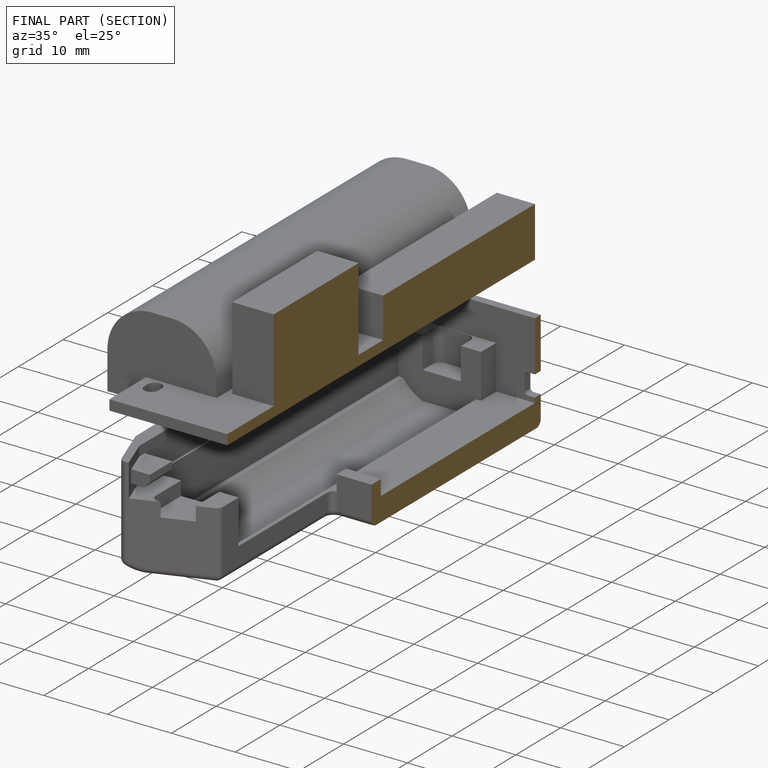
[diagram: finished part — half-section view (interior)]
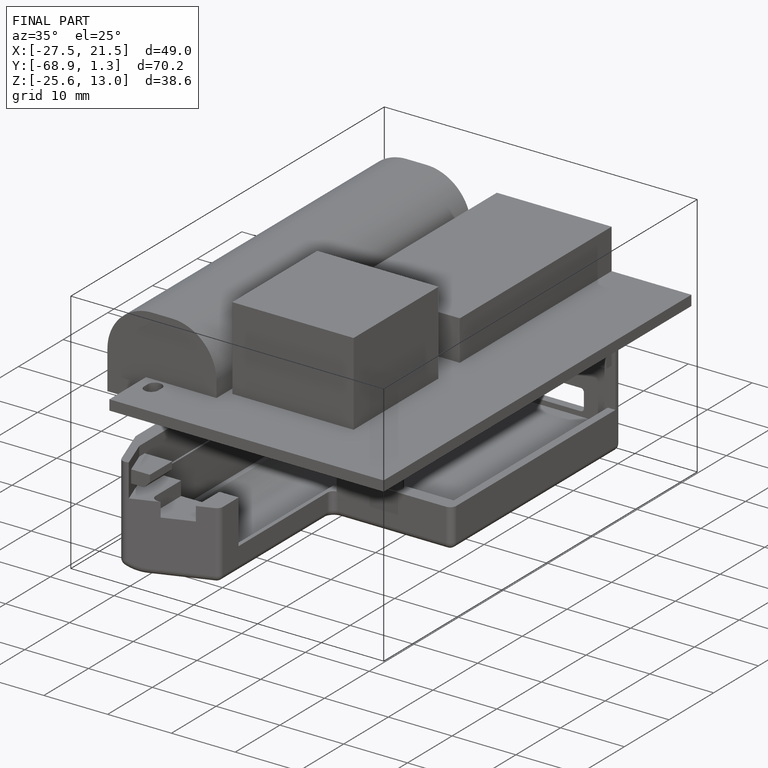
[diagram: finished part — iso view with bounding-box wireframe]
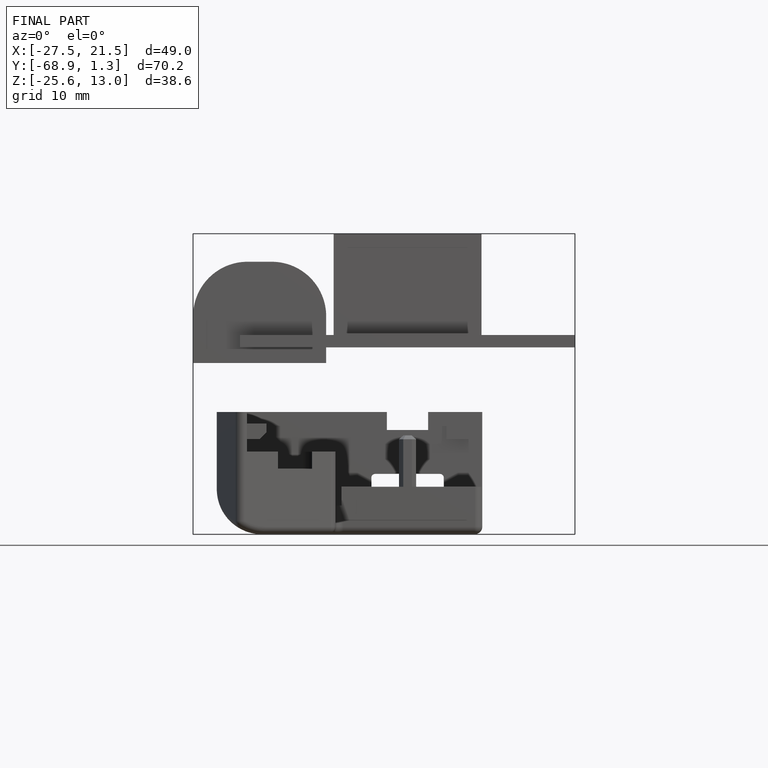
[diagram: finished part — front view with bounding-box wireframe]
